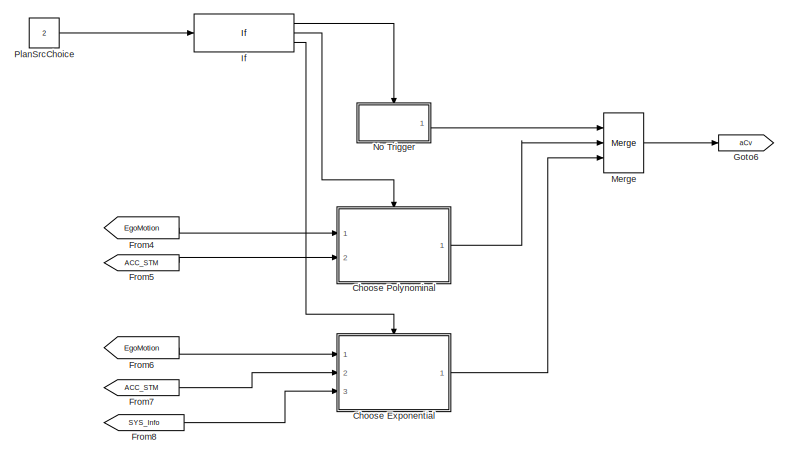
[diagram: root canvas - part 1/5, top right region]
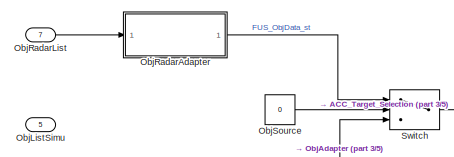
[diagram: root canvas - part 2/5, top left region]
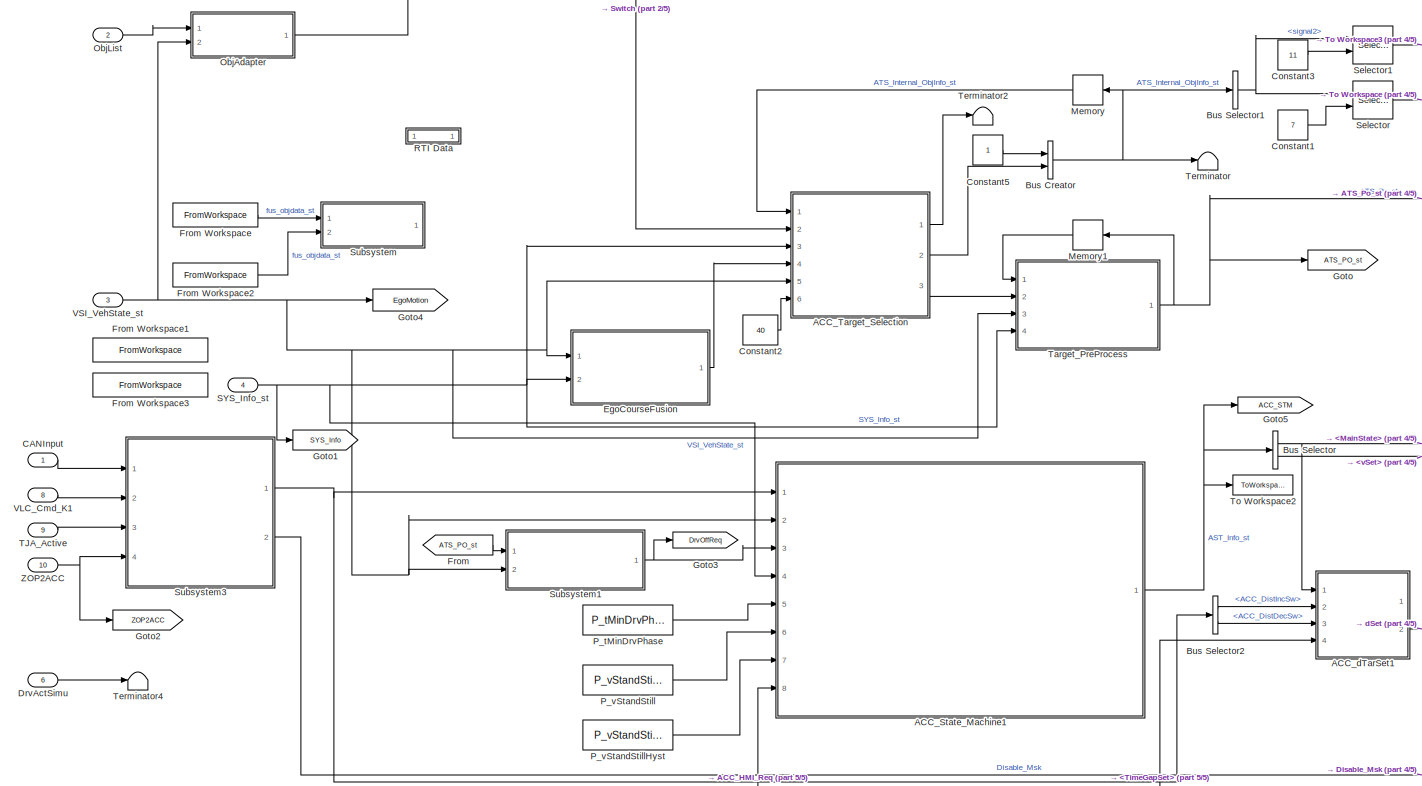
[diagram: root canvas - part 3/5, middle left region]
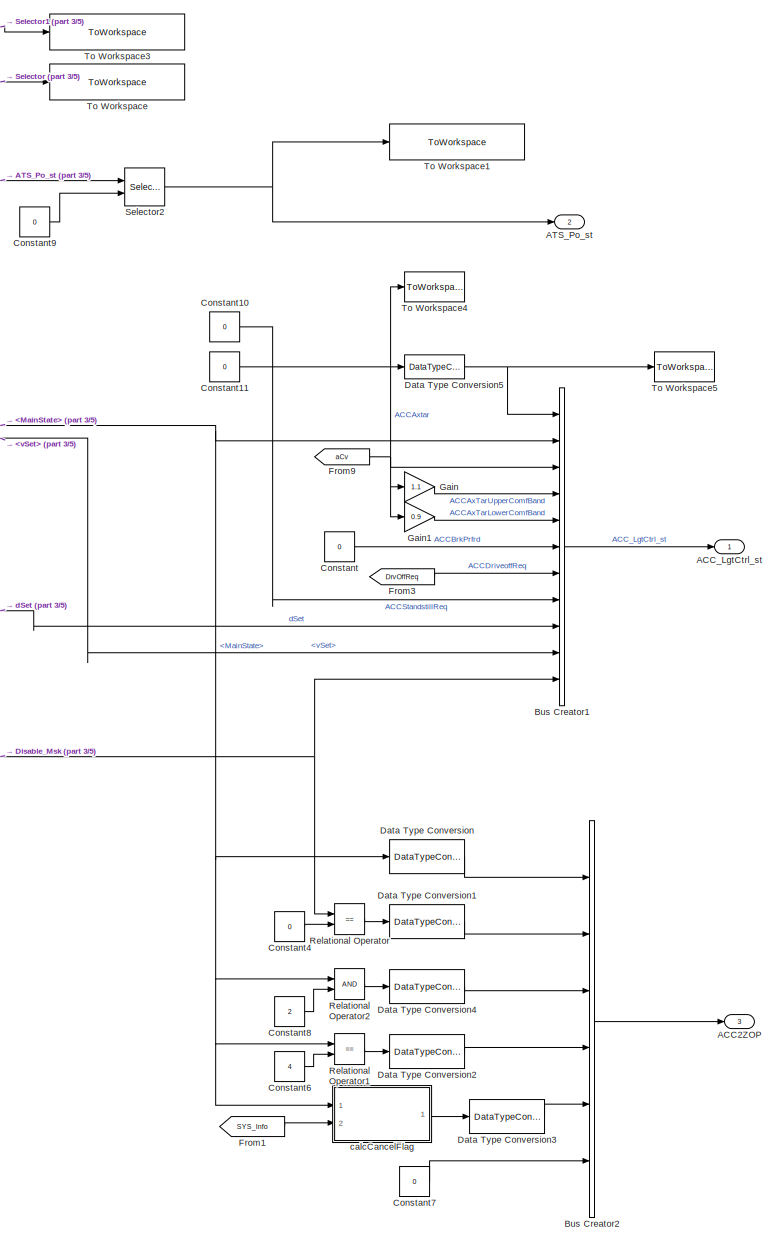
[diagram: root canvas - part 4/5, middle right region]
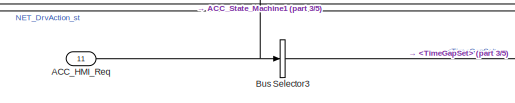
[diagram: root canvas - part 5/5, bottom center region]
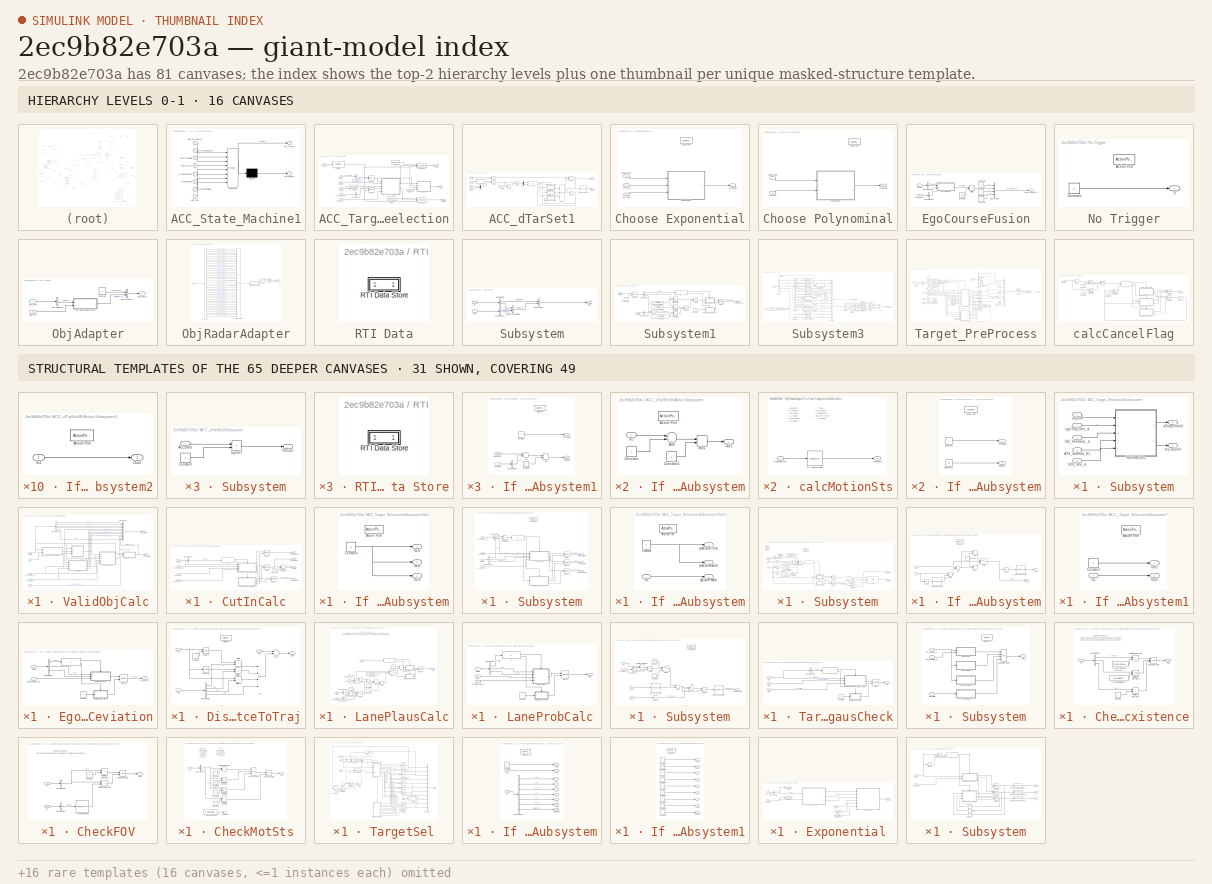
[diagram: thumbnail index - top-2 hierarchy levels (16 canvases) + 31 structural-template representatives of the remaining 65 canvases]
MODEL slx_2ec9b82e703a
KIND model
CONFIG AbsTol = auto
CONFIG EnableMultiTasking = off
CONFIG FixedStep = 0.01
CONFIG MaxStep = auto
CONFIG MinStep = auto
CONFIG PostLoadFcn = if any(exist('dsrtsu_mdlpostloadfcn', 'file') ~= 0), dsrtsu_mdlpostloadfcn('Execute', bdroot); end
CONFIG RelTol = 1e-3
CONFIG SampleTimeConstraint = Unconstrained
CONFIG Solver = FixedStepDiscrete
CONFIG SolverName = FixedStepDiscrete
CONFIG StartTime = 0.0
CONFIG StopTime = inf
BLOCK [Outport] ACC2ZOP
  BusOutputAsStruct = on
  IconDisplay = Port number
  OutDataTypeStr = Bus: ACC_Status_ST
  Port = 3
BLOCK [Inport] ACC_HMI_Req
  IconDisplay = Port number
  OutDataTypeStr = Bus: ACC_HMI_REQ
  Port = 11
BLOCK [Outport] ACC_LgtCtrl_st
  BusOutputAsStruct = on
  IconDisplay = Port number
  OutDataTypeStr = Bus: ACC_LGTCTRL_ST
BLOCK [SubSystem] ACC_State_Machine1
  ErrorFcn = Stateflow.Translate.translate
  PermitHierarchicalResolution = ExplicitOnly
  Ports = [8, 1]
  RequestExecContextInheritance = off
  SFBlockType = Chart
  TreatAsAtomicUnit = on
BLOCK [Demux] ACC_State_Machine1/ Demux 
  Outputs = 1
  Ports = [1, 1]
BLOCK [S-Function] ACC_State_Machine1/ SFunction 
  EnableBusSupport = on
  FunctionName = sf_sfun
  PortCounts = [8 2]
  Ports = [8, 2]
  SFcnIsStateOwnerBlock = off
  SFunctionDeploymentMode = off
  Tag = Stateflow S-Function AccTarSel_PLAN_CTRL 2
BLOCK [Terminator] ACC_State_Machine1/ Terminator 
BLOCK [Outport] ACC_State_Machine1/AST_Info_st
  IconDisplay = Port number
BLOCK [Inport] ACC_State_Machine1/DrvOffEnable
  IconDisplay = Port number
  Port = 3
BLOCK [Inport] ACC_State_Machine1/NET_DrvAction_st
  IconDisplay = Port number
BLOCK [Inport] ACC_State_Machine1/P_tMinDrvPhase
  IconDisplay = Port number
  Port = 5
BLOCK [Inport] ACC_State_Machine1/P_vStandStill
  IconDisplay = Port number
  Port = 6
BLOCK [Inport] ACC_State_Machine1/P_vStandStillHyst
  IconDisplay = Port number
  Port = 7
BLOCK [Inport] ACC_State_Machine1/SYS_Info_st
  IconDisplay = Port number
  Port = 4
BLOCK [Inport] ACC_State_Machine1/VSI_VehState_st
  IconDisplay = Port number
  Port = 2
BLOCK [Inport] ACC_State_Machine1/vSet_HMI
  IconDisplay = Port number
  Port = 8
BLOCK [SubSystem] ACC_Target_Selection
  Ports = [6, 3]
  RequestExecContextInheritance = off
  TreatAsAtomicUnit = on
BLOCK [Inport] ACC_Target_Selection/ATS_Internal_K1
  IconDisplay = Port number
BLOCK [Assignment] ACC_Target_Selection/Assignment
  DiagnosticForDimensions = Warning
  IndexMode = Zero-based
  IndexOptions = Index vector (port)
  Indices = 1
  OutputSizes = 1
  Ports = [3, 1]
BLOCK [Assignment] ACC_Target_Selection/Assignment1
  DiagnosticForDimensions = Warning
  IndexMode = Zero-based
  IndexOptions = Index vector (port)
  Indices = 1
  OutputSizes = 1
  Ports = [3, 1]
BLOCK [BusSelector] ACC_Target_Selection/Bus Selector
  OutputAsBus = off
  OutputSignals = signal2
  Ports = [1, 1]
BLOCK [BusSelector] ACC_Target_Selection/Bus Selector1
  OutputAsBus = off
  OutputSignals = objdata_st
  Ports = [1, 1]
BLOCK [Inport] ACC_Target_Selection/EgoTraj
  IconDisplay = Port number
  Port = 4
BLOCK [ForIterator] ACC_Target_Selection/For Iterator
  IndexMode = Zero-based
  IterationLimit = 2
  IterationSource = external
  Ports = [1, 1]
BLOCK [From] ACC_Target_Selection/From
  GotoTag = egoInfo
BLOCK [Goto] ACC_Target_Selection/Goto
  GotoTag = egoInfo
BLOCK [Outport] ACC_Target_Selection/ObjInfo
  IconDisplay = Port number
  OutDataTypeStr = Bus: ATS_OBJINFO_ST
  Port = 2
BLOCK [Inport] ACC_Target_Selection/ObjList
  IconDisplay = Port number
  Port = 2
BLOCK [Outport] ACC_Target_Selection/Out1
  IconDisplay = Port number
BLOCK [Outport] ACC_Target_Selection/POInfo
  IconDisplay = Port number
  OutDataTypeStr = Bus: ATS_PO_ST
  Port = 3
BLOCK [Inport] ACC_Target_Selection/SYS_Info_st
  IconDisplay = Port number
  Port = 3
BLOCK [Selector] ACC_Target_Selection/Selector
  IndexMode = Zero-based
  IndexOptions = Index vector (port)
  Indices = [1 3]
  InputPortWidth = 40
  OutputSizes = 1
  Ports = [2, 1]
BLOCK [Selector] ACC_Target_Selection/Selector1
  IndexMode = Zero-based
  IndexOptions = Index vector (port)
  Indices = [1 3]
  InputPortWidth = 40
  OutputSizes = 1
  Ports = [2, 1]
BLOCK [SubSystem] ACC_Target_Selection/Subsystem
  Ports = [5, 2]
  RequestExecContextInheritance = off
BLOCK [Inport] ACC_Target_Selection/Subsystem/ATS_Internal_K1
  IconDisplay = Port number
  Port = 4
BLOCK [Inport] ACC_Target_Selection/Subsystem/SYS_Info_st
  IconDisplay = Port number
  Port = 5
BLOCK [Inport] ACC_Target_Selection/Subsystem/VSI_VehState_st
  IconDisplay = Port number
  Port = 3
BLOCK [SubSystem] ACC_Target_Selection/Subsystem/ValidObjCalc
  Ports = [5, 2]
  RequestExecContextInheritance = off
  TreatAsAtomicUnit = on
BLOCK [Inport] ACC_Target_Selection/Subsystem/ValidObjCalc/ATS_Internal_K1
  IconDisplay = Port number
  Port = 4
BLOCK [BusCreator] ACC_Target_Selection/Subsystem/ValidObjCalc/Bus Creator
  DisplayOption = bar
  InheritFromInputs = on
  Inputs = 12
  NonVirtualBus = on
  OutDataTypeStr = Bus: ATS_OBJINFO_ST
  Ports = [12, 1]
BLOCK [BusSelector] ACC_Target_Selection/Subsystem/ValidObjCalc/Bus Selector
  OutputAsBus = off
  OutputSignals = dx,dy,vx,vy,ID
  Ports = [1, 5]
BLOCK [SubSystem] ACC_Target_Selection/Subsystem/ValidObjCalc/CutInCalc
  Ports = [4, 4]
  RequestExecContextInheritance = off
BLOCK [Inport] ACC_Target_Selection/Subsystem/ValidObjCalc/CutInCalc/ATS_Internal_K1
  IconDisplay = Port number
  Port = 3
BLOCK [BusSelector] ACC_Target_Selection/Subsystem/ValidObjCalc/CutInCalc/Bus Selector
  OutputAsBus = off
  OutputSignals = Valid
  Ports = [1, 1]
BLOCK [Constant] ACC_Target_Selection/Subsystem/ValidObjCalc/CutInCalc/Constant1
  OutDataTypeStr = single
  Value = 0.5
BLOCK [SubSystem] ACC_Target_Selection/Subsystem/ValidObjCalc/CutInCalc/If Action Subsystem
  Ports = [0, 3, 0, 0, 0, 0, 0, 1]
  RequestExecContextInheritance = off
  TreatAsAtomicUnit = on
BLOCK [ActionPort] ACC_Target_Selection/Subsystem/ValidObjCalc/CutInCalc/If Action Subsystem/Action Port
  ActionType = else
BLOCK [Constant] ACC_Target_Selection/Subsystem/ValidObjCalc/CutInCalc/If Action Subsystem/Constant
  OutDataTypeStr = single
  Value = 0
BLOCK [Outport] ACC_Target_Selection/Subsystem/ValidObjCalc/CutInCalc/If Action Subsystem/Out1
  IconDisplay = Port number
BLOCK [Outport] ACC_Target_Selection/Subsystem/ValidObjCalc/CutInCalc/If Action Subsystem/Out2
  IconDisplay = Port number
  Port = 2
BLOCK [Outport] ACC_Target_Selection/Subsystem/ValidObjCalc/CutInCalc/If Action Subsystem/Out3
  IconDisplay = Port number
  Port = 3
BLOCK [If] ACC_Target_Selection/Subsystem/ValidObjCalc/CutInCalc/If1
  IfExpression = u1 == 1
  Ports = [1, 2]
BLOCK [Merge] ACC_Target_Selection/Subsystem/ValidObjCalc/CutInCalc/Merge
  Ports = [2, 1]
BLOCK [Merge] ACC_Target_Selection/Subsystem/ValidObjCalc/CutInCalc/Merge1
  Ports = [2, 1]
BLOCK [Merge] ACC_Target_Selection/Subsystem/ValidObjCalc/CutInCalc/Merge2
  Ports = [2, 1]
BLOCK [RelationalOperator] ACC_Target_Selection/Subsystem/ValidObjCalc/CutInCalc/Relational Operator2
  InputSameDT = off
  Operator = >
  OutDataTypeStr = boolean
  Ports = [2, 1]
  RndMeth = Simplest
BLOCK [Inport] ACC_Target_Selection/Subsystem/ValidObjCalc/CutInCalc/SYS_Info_st
  IconDisplay = Port number
  Port = 4
BLOCK [SubSystem] ACC_Target_Selection/Subsystem/ValidObjCalc/CutInCalc/Subsystem
  Ports = [4, 3, 0, 0, 0, 0, 0, 1]
  RequestExecContextInheritance = off
BLOCK [Inport] ACC_Target_Selection/Subsystem/ValidObjCalc/CutInCalc/Subsystem/ATS_Internal_K1
  IconDisplay = Port number
  Port = 2
BLOCK [ActionPort] ACC_Target_Selection/Subsystem/ValidObjCalc/CutInCalc/Subsystem/Action Port
  ActionType = then
BLOCK [BusSelector] ACC_Target_Selection/Subsystem/ValidObjCalc/CutInCalc/Subsystem/Bus Selector
  OutputAsBus = off
  OutputSignals = ID,vy,MotionSts
  Ports = [1, 3]
BLOCK [BusSelector] ACC_Target_Selection/Subsystem/ValidObjCalc/CutInCalc/Subsystem/Bus Selector1
  OutputAsBus = off
  OutputSignals = ID,probCutInFilt
  Ports = [1, 2]
BLOCK [If] ACC_Target_Selection/Subsystem/ValidObjCalc/CutInCalc/Subsystem/If
  IfExpression = u1 == 1
  Ports = [1, 2]
BLOCK [SubSystem] ACC_Target_Selection/Subsystem/ValidObjCalc/CutInCalc/Subsystem/If Action Subsystem
  Ports = [1, 3, 0, 0, 0, 0, 0, 1]
  RequestExecContextInheritance = off
  TreatAsAtomicUnit = on
BLOCK [ActionPort] ACC_Target_Selection/Subsystem/ValidObjCalc/CutInCalc/Subsystem/If Action Subsystem/Action Port
  ActionType = else
BLOCK [Constant] ACC_Target_Selection/Subsystem/ValidObjCalc/CutInCalc/Subsystem/If Action Subsystem/Constant
  OutDataTypeStr = single
  Value = 0
BLOCK [Inport] ACC_Target_Selection/Subsystem/ValidObjCalc/CutInCalc/Subsystem/If Action Subsystem/In1
  IconDisplay = Port number
BLOCK [Outport] ACC_Target_Selection/Subsystem/ValidObjCalc/CutInCalc/Subsystem/If Action Subsystem/dyCutInPredInit
  IconDisplay = Port number
  Port = 2
BLOCK [Outport] ACC_Target_Selection/Subsystem/ValidObjCalc/CutInCalc/Subsystem/If Action Subsystem/probCutInFiltInit
  IconDisplay = Port number
BLOCK [Outport] ACC_Target_Selection/Subsystem/ValidObjCalc/CutInCalc/Subsystem/If Action Subsystem/probCutInRawInit
  IconDisplay = Port number
  Port = 3
BLOCK [Merge] ACC_Target_Selection/Subsystem/ValidObjCalc/CutInCalc/Subsystem/Merge
  Ports = [2, 1]
BLOCK [Merge] ACC_Target_Selection/Subsystem/ValidObjCalc/CutInCalc/Subsystem/Merge1
  Ports = [2, 1]
BLOCK [Merge] ACC_Target_Selection/Subsystem/ValidObjCalc/CutInCalc/Subsystem/Merge2
  Ports = [2, 1]
BLOCK [RelationalOperator] ACC_Target_Selection/Subsystem/ValidObjCalc/CutInCalc/Subsystem/Relational Operator3
  InputSameDT = off
  Operator = ==
  OutDataTypeStr = boolean
  Ports = [2, 1]
  RndMeth = Simplest
BLOCK [Inport] ACC_Target_Selection/Subsystem/ValidObjCalc/CutInCalc/Subsystem/SYS_Info_st
  IconDisplay = Port number
  Port = 4
BLOCK [SubSystem] ACC_Target_Selection/Subsystem/ValidObjCalc/CutInCalc/Subsystem/Subsystem
  Ports = [5, 3, 0, 0, 0, 0, 0, 1]
  RequestExecContextInheritance = off
BLOCK [Inport] ACC_Target_Selection/Subsystem/ValidObjCalc/CutInCalc/Subsystem/Subsystem/<vy>
  IconDisplay = Port number
  Port = 3
BLOCK [Abs] ACC_Target_Selection/Subsystem/ValidObjCalc/CutInCalc/Subsystem/Subsystem/Abs
  SaturateOnIntegerOverflow = off
BLOCK [Abs] ACC_Target_Selection/Subsystem/ValidObjCalc/CutInCalc/Subsystem/Subsystem/Abs1
  SaturateOnIntegerOverflow = off
BLOCK [ActionPort] ACC_Target_Selection/Subsystem/ValidObjCalc/CutInCalc/Subsystem/Subsystem/Action Port
  ActionType = then
BLOCK [BusSelector] ACC_Target_Selection/Subsystem/ValidObjCalc/CutInCalc/Subsystem/Subsystem/Bus Selector
  OutputAsBus = off
  OutputSignals = dT
  Ports = [1, 1]
BLOCK [Constant] ACC_Target_Selection/Subsystem/ValidObjCalc/CutInCalc/Subsystem/Subsystem/Constant1
  OutDataTypeStr = single
  Value = 2
BLOCK [Constant] ACC_Target_Selection/Subsystem/ValidObjCalc/CutInCalc/Subsystem/Subsystem/Constant2
  Value = 0
BLOCK [If] ACC_Target_Selection/Subsystem/ValidObjCalc/CutInCalc/Subsystem/Subsystem/If
  IfExpression = u1 == 1
  Ports = [1, 2]
BLOCK [SubSystem] ACC_Target_Selection/Subsystem/ValidObjCalc/CutInCalc/Subsystem/Subsystem/If Action Subsystem
  Ports = [2, 2, 0, 0, 0, 0, 0, 1]
  RequestExecContextInheritance = off
  TreatAsAtomicUnit = on
BLOCK [Lookup_n-D] ACC_Target_Selection/Subsystem/ValidObjCalc/CutInCalc/Subsystem/Subsystem/If Action Subsystem/1-D Lookup Table
  BreakpointsForDimension1 = [0.5,1.5]
  BreakpointsForDimension1FirstPoint = 10
  BreakpointsForDimension1Spacing = 12
  BreakpointsForDimension2FirstPoint = 10
  BreakpointsForDimension2Spacing = 12
  ExtrapMethod = Clip
  IndexSearchMethod = Linear search
  InternalRulePriority = Speed
  LookupTableObject = ''
  NumberOfTableDimensions = 1
  Ports = [1, 1]
  RndMeth = Simplest
  Table = [0,1.5]
BLOCK [Lookup_n-D] ACC_Target_Selection/Subsystem/ValidObjCalc/CutInCalc/Subsystem/Subsystem/If Action Subsystem/1-D Lookup Table1
  BreakpointsForDimension1 = [1,1.8]
  BreakpointsForDimension1FirstPoint = 10
  BreakpointsForDimension1Spacing = 12
  BreakpointsForDimension2FirstPoint = 10
  BreakpointsForDimension2Spacing = 12
  ExtrapMethod = Clip
  IndexSearchMethod = Linear search
  InternalRulePriority = Speed
  LookupTableObject = ''
  NumberOfTableDimensions = 1
  Ports = [1, 1]
  RndMeth = Simplest
  Table = [1,0]
BLOCK [Abs] ACC_Target_Selection/Subsystem/ValidObjCalc/CutInCalc/Subsystem/Subsystem/If Action Subsystem/Abs
  SaturateOnIntegerOverflow = off
BLOCK [Abs] ACC_Target_Selection/Subsystem/ValidObjCalc/CutInCalc/Subsystem/Subsystem/If Action Subsystem/Abs1
  SaturateOnIntegerOverflow = off
BLOCK [ActionPort] ACC_Target_Selection/Subsystem/ValidObjCalc/CutInCalc/Subsystem/Subsystem/If Action Subsystem/Action Port
  ActionType = then
BLOCK [Sum] ACC_Target_Selection/Subsystem/ValidObjCalc/CutInCalc/Subsystem/Subsystem/If Action Subsystem/Add
  InputSameDT = off
  OutDataTypeStr = Inherit: Inherit via internal rule
  Ports = [2, 1]
  SaturateOnIntegerOverflow = off
BLOCK [Constant] ACC_Target_Selection/Subsystem/ValidObjCalc/CutInCalc/Subsystem/Subsystem/If Action Subsystem/Constant
  OutDataTypeStr = single
  Value = 0
BLOCK [MinMax] ACC_Target_Selection/Subsystem/ValidObjCalc/CutInCalc/Subsystem/Subsystem/If Action Subsystem/Max
  Function = max
  InputSameDT = off
  Inputs = 2
  Ports = [2, 1]
  SaturateOnIntegerOverflow = off
BLOCK [MinMax] ACC_Target_Selection/Subsystem/ValidObjCalc/CutInCalc/Subsystem/Subsystem/If Action Subsystem/Max1
  InputSameDT = off
  Inputs = 2
  Ports = [2, 1]
  SaturateOnIntegerOverflow = off
BLOCK [Product] ACC_Target_Selection/Subsystem/ValidObjCalc/CutInCalc/Subsystem/Subsystem/If Action Subsystem/Multiply
  InputSameDT = off
  OutDataTypeStr = Inherit: Inherit via internal rule
  Ports = [2, 1]
  RndMeth = Floor
  SaturateOnIntegerOverflow = off
BLOCK [Outport] ACC_Target_Selection/Subsystem/ValidObjCalc/CutInCalc/Subsystem/Subsystem/If Action Subsystem/Out1
  IconDisplay = Port number
BLOCK [Outport] ACC_Target_Selection/Subsystem/ValidObjCalc/CutInCalc/Subsystem/Subsystem/If Action Subsystem/Out2
  IconDisplay = Port number
  Port = 2
BLOCK [Switch] ACC_Target_Selection/Subsystem/ValidObjCalc/CutInCalc/Subsystem/Subsystem/If Action Subsystem/Switch
  Criteria = u2 > Threshold
  InputSameDT = off
  SaturateOnIntegerOverflow = off
BLOCK [Inport] ACC_Target_Selection/Subsystem/ValidObjCalc/CutInCalc/Subsystem/Subsystem/If Action Subsystem/dy
  IconDisplay = Port number
BLOCK [Inport] ACC_Target_Selection/Subsystem/ValidObjCalc/CutInCalc/Subsystem/Subsystem/If Action Subsystem/vy
  IconDisplay = Port number
  Port = 2
BLOCK [SubSystem] ACC_Target_Selection/Subsystem/ValidObjCalc/CutInCalc/Subsystem/Subsystem/If Action Subsystem1
  Ports = [1, 2, 0, 0, 0, 0, 0, 1]
  RequestExecContextInheritance = off
  TreatAsAtomicUnit = on
BLOCK [ActionPort] ACC_Target_Selection/Subsystem/ValidObjCalc/CutInCalc/Subsystem/Subsystem/If Action Subsystem1/Action Port
  ActionType = else
BLOCK [Constant] ACC_Target_Selection/Subsystem/ValidObjCalc/CutInCalc/Subsystem/Subsystem/If Action Subsystem1/Constant
  OutDataTypeStr = single
  Value = 0
BLOCK [Outport] ACC_Target_Selection/Subsystem/ValidObjCalc/CutInCalc/Subsystem/Subsystem/If Action Subsystem1/Out1
  IconDisplay = Port number
BLOCK [Outport] ACC_Target_Selection/Subsystem/ValidObjCalc/CutInCalc/Subsystem/Subsystem/If Action Subsystem1/Out2
  IconDisplay = Port number
  Port = 2
BLOCK [Inport] ACC_Target_Selection/Subsystem/ValidObjCalc/CutInCalc/Subsystem/Subsystem/If Action Subsystem1/dy
  IconDisplay = Port number
BLOCK [Reference] ACC_Target_Selection/Subsystem/ValidObjCalc/CutInCalc/Subsystem/Subsystem/LPFilter  REF=LPFilter/LPFilter
  Ports = [4, 1]
  SourceBlock = LPFilter/LPFilter
  SourceProductName = CustomLib
  SourceType = SubSystem
BLOCK [Logic] ACC_Target_Selection/Subsystem/ValidObjCalc/CutInCalc/Subsystem/Subsystem/Logical Operator
  AllPortsSameDT = off
  Inputs = 5
  OutDataTypeStr = boolean
  Ports = [5, 1]
BLOCK [Merge] ACC_Target_Selection/Subsystem/ValidObjCalc/CutInCalc/Subsystem/Subsystem/Merge
  Ports = [2, 1]
BLOCK [Merge] ACC_Target_Selection/Subsystem/ValidObjCalc/CutInCalc/Subsystem/Subsystem/Merge1
  Ports = [2, 1]
BLOCK [Inport] ACC_Target_Selection/Subsystem/ValidObjCalc/CutInCalc/Subsystem/Subsystem/MotionSts
  IconDisplay = Port number
  Port = 4
BLOCK [Product] ACC_Target_Selection/Subsystem/ValidObjCalc/CutInCalc/Subsystem/Subsystem/Multiply
  InputSameDT = off
  OutDataTypeStr = Inherit: Inherit via internal rule
  Ports = [2, 1]
  RndMeth = Floor
  SaturateOnIntegerOverflow = off
BLOCK [Constant] ACC_Target_Selection/Subsystem/ValidObjCalc/CutInCalc/Subsystem/Subsystem/P_CutInEnable
  Value = P_CutInEnable
BLOCK [Constant] ACC_Target_Selection/Subsystem/ValidObjCalc/CutInCalc/Subsystem/Subsystem/P_dyCutInThres
  Value = P_dyCutInThres
BLOCK [Constant] ACC_Target_Selection/Subsystem/ValidObjCalc/CutInCalc/Subsystem/Subsystem/P_tCutInFilt
  Value = P_tCutInFilt
BLOCK [Constant] ACC_Target_Selection/Subsystem/ValidObjCalc/CutInCalc/Subsystem/Subsystem/P_vyCutInThres
  Value = P_vyCutInThres
BLOCK [RelationalOperator] ACC_Target_Selection/Subsystem/ValidObjCalc/CutInCalc/Subsystem/Subsystem/Relational Operator
  InputSameDT = off
  Operator = <=
  OutDataTypeStr = boolean
  Ports = [2, 1]
  RndMeth = Simplest
BLOCK [RelationalOperator] ACC_Target_Selection/Subsystem/ValidObjCalc/CutInCalc/Subsystem/Subsystem/Relational Operator1
  InputSameDT = off
  Operator = <
  OutDataTypeStr = boolean
  Ports = [2, 1]
  RndMeth = Simplest
BLOCK [RelationalOperator] ACC_Target_Selection/Subsystem/ValidObjCalc/CutInCalc/Subsystem/Subsystem/Relational Operator2
  InputSameDT = off
  Operator = >
  OutDataTypeStr = boolean
  Ports = [2, 1]
  RndMeth = Simplest
BLOCK [RelationalOperator] ACC_Target_Selection/Subsystem/ValidObjCalc/CutInCalc/Subsystem/Subsystem/Relational Operator3
  InputSameDT = off
  Operator = ==
  OutDataTypeStr = boolean
  Ports = [2, 1]
  RndMeth = Simplest
BLOCK [Inport] ACC_Target_Selection/Subsystem/ValidObjCalc/CutInCalc/Subsystem/Subsystem/SYS_Info_st
  IconDisplay = Port number
  Port = 5
BLOCK [Outport] ACC_Target_Selection/Subsystem/ValidObjCalc/CutInCalc/Subsystem/Subsystem/dyCutInPred
  IconDisplay = Port number
  Port = 2
BLOCK [Inport] ACC_Target_Selection/Subsystem/ValidObjCalc/CutInCalc/Subsystem/Subsystem/dyToTraj
  IconDisplay = Port number
  Port = 2
BLOCK [Outport] ACC_Target_Selection/Subsystem/ValidObjCalc/CutInCalc/Subsystem/Subsystem/probCutInFilt
  IconDisplay = Port number
BLOCK [Inport] ACC_Target_Selection/Subsystem/ValidObjCalc/CutInCalc/Subsystem/Subsystem/probCutInK1
  IconDisplay = Port number
BLOCK [Outport] ACC_Target_Selection/Subsystem/ValidObjCalc/CutInCalc/Subsystem/Subsystem/probCutInRaw
  IconDisplay = Port number
  Port = 3
BLOCK [Outport] ACC_Target_Selection/Subsystem/ValidObjCalc/CutInCalc/Subsystem/dyCutInPred
  IconDisplay = Port number
  Port = 2
BLOCK [Inport] ACC_Target_Selection/Subsystem/ValidObjCalc/CutInCalc/Subsystem/dyToTraj
  IconDisplay = Port number
  Port = 3
BLOCK [Inport] ACC_Target_Selection/Subsystem/ValidObjCalc/CutInCalc/Subsystem/objInfo
  IconDisplay = Port number
BLOCK [Outport] ACC_Target_Selection/Subsystem/ValidObjCalc/CutInCalc/Subsystem/probCutInFilt
  IconDisplay = Port number
BLOCK [Outport] ACC_Target_Selection/Subsystem/ValidObjCalc/CutInCalc/Subsystem/probCutInRaw
  IconDisplay = Port number
  Port = 3
BLOCK [Outport] ACC_Target_Selection/Subsystem/ValidObjCalc/CutInCalc/dyCutInPred
  IconDisplay = Port number
BLOCK [Inport] ACC_Target_Selection/Subsystem/ValidObjCalc/CutInCalc/dyToTraj
  IconDisplay = Port number
  Port = 2
BLOCK [Outport] ACC_Target_Selection/Subsystem/ValidObjCalc/CutInCalc/isCutIn
  IconDisplay = Port number
  Port = 3
BLOCK [Inport] ACC_Target_Selection/Subsystem/ValidObjCalc/CutInCalc/objInfo
  IconDisplay = Port number
BLOCK [Outport] ACC_Target_Selection/Subsystem/ValidObjCalc/CutInCalc/probCutInFilt
  IconDisplay = Port number
  Port = 2
BLOCK [Outport] ACC_Target_Selection/Subsystem/ValidObjCalc/CutInCalc/probCutInRaw
  IconDisplay = Port number
  Port = 4
BLOCK [SubSystem] ACC_Target_Selection/Subsystem/ValidObjCalc/EgoCourseDeviation
  Ports = [2, 1]
  RequestExecContextInheritance = off
BLOCK [BusSelector] ACC_Target_Selection/Subsystem/ValidObjCalc/EgoCourseDeviation/Bus Selector
  OutputAsBus = off
  OutputSignals = Valid,dx,dy
  Ports = [1, 3]
BLOCK [Constant] ACC_Target_Selection/Subsystem/ValidObjCalc/EgoCourseDeviation/Constant
  OutDataTypeStr = single
  Value = 0
BLOCK [SubSystem] ACC_Target_Selection/Subsystem/ValidObjCalc/EgoCourseDeviation/DistanceToTraj
  Ports = [3, 1, 0, 0, 0, 0, 0, 1]
  RequestExecContextInheritance = off
BLOCK [ActionPort] ACC_Target_Selection/Subsystem/ValidObjCalc/EgoCourseDeviation/DistanceToTraj/Action Port
  ActionType = then
BLOCK [Sum] ACC_Target_Selection/Subsystem/ValidObjCalc/EgoCourseDeviation/DistanceToTraj/Add
  InputSameDT = off
  Inputs = ++++
  OutDataTypeStr = Inherit: Inherit via internal rule
  Ports = [4, 1]
  SaturateOnIntegerOverflow = off
BLOCK [Sum] ACC_Target_Selection/Subsystem/ValidObjCalc/EgoCourseDeviation/DistanceToTraj/Add1
  InputSameDT = off
  Inputs = +-
  OutDataTypeStr = Inherit: Inherit via internal rule
  Ports = [2, 1]
  SaturateOnIntegerOverflow = off
BLOCK [BusSelector] ACC_Target_Selection/Subsystem/ValidObjCalc/EgoCourseDeviation/DistanceToTraj/Bus Selector
  OutputAsBus = off
  OutputSignals = a,b,c,d
  Ports = [1, 4]
BLOCK [Constant] ACC_Target_Selection/Subsystem/ValidObjCalc/EgoCourseDeviation/DistanceToTraj/Constant
  OutDataTypeStr = single
  Value = 3
BLOCK [Inport] ACC_Target_Selection/Subsystem/ValidObjCalc/EgoCourseDeviation/DistanceToTraj/In1
  IconDisplay = Port number
BLOCK [Inport] ACC_Target_Selection/Subsystem/ValidObjCalc/EgoCourseDeviation/DistanceToTraj/In2
  IconDisplay = Port number
  Port = 2
BLOCK [Inport] ACC_Target_Selection/Subsystem/ValidObjCalc/EgoCourseDeviation/DistanceToTraj/In3
  IconDisplay = Port number
  Port = 3
BLOCK [Product] ACC_Target_Selection/Subsystem/ValidObjCalc/EgoCourseDeviation/DistanceToTraj/Multiply
  InputSameDT = off
  OutDataTypeStr = Inherit: Inherit via internal rule
  Ports = [2, 1]
  RndMeth = Floor
  SaturateOnIntegerOverflow = off
BLOCK [Product] ACC_Target_Selection/Subsystem/ValidObjCalc/EgoCourseDeviation/DistanceToTraj/Multiply1
  InputSameDT = off
  OutDataTypeStr = Inherit: Inherit via internal rule
  Ports = [2, 1]
  RndMeth = Floor
  SaturateOnIntegerOverflow = off
BLOCK [Product] ACC_Target_Selection/Subsystem/ValidObjCalc/EgoCourseDeviation/DistanceToTraj/Multiply2
  InputSameDT = off
  OutDataTypeStr = Inherit: Inherit via internal rule
  Ports = [2, 1]
  RndMeth = Floor
  SaturateOnIntegerOverflow = off
BLOCK [Outport] ACC_Target_Selection/Subsystem/ValidObjCalc/EgoCourseDeviation/DistanceToTraj/Out1
  IconDisplay = Port number
BLOCK [Math] ACC_Target_Selection/Subsystem/ValidObjCalc/EgoCourseDeviation/DistanceToTraj/Square
  Operator = pow
  Ports = [2, 1]
BLOCK [Math] ACC_Target_Selection/Subsystem/ValidObjCalc/EgoCourseDeviation/DistanceToTraj/Square1
  Operator = square
  Ports = [1, 1]
BLOCK [If] ACC_Target_Selection/Subsystem/ValidObjCalc/EgoCourseDeviation/If
  IfExpression = u1 == 1
  Ports = [1, 2]
BLOCK [SubSystem] ACC_Target_Selection/Subsystem/ValidObjCalc/EgoCourseDeviation/If Action Subsystem
  Ports = [1, 1, 0, 0, 0, 0, 0, 1]
  RequestExecContextInheritance = off
  TreatAsAtomicUnit = on
BLOCK [ActionPort] ACC_Target_Selection/Subsystem/ValidObjCalc/EgoCourseDeviation/If Action Subsystem/Action Port
  ActionType = else
BLOCK [Inport] ACC_Target_Selection/Subsystem/ValidObjCalc/EgoCourseDeviation/If Action Subsystem/In1
  IconDisplay = Port number
BLOCK [Outport] ACC_Target_Selection/Subsystem/ValidObjCalc/EgoCourseDeviation/If Action Subsystem/Out1
  IconDisplay = Port number
BLOCK [Merge] ACC_Target_Selection/Subsystem/ValidObjCalc/EgoCourseDeviation/Merge
  Ports = [2, 1]
BLOCK [Outport] ACC_Target_Selection/Subsystem/ValidObjCalc/EgoCourseDeviation/dyToTraj
  IconDisplay = Port number
BLOCK [Inport] ACC_Target_Selection/Subsystem/ValidObjCalc/EgoCourseDeviation/egoTrajLane_st
  IconDisplay = Port number
  Port = 2
BLOCK [Inport] ACC_Target_Selection/Subsystem/ValidObjCalc/EgoCourseDeviation/objInfo
  IconDisplay = Port number
BLOCK [Inport] ACC_Target_Selection/Subsystem/ValidObjCalc/In2
  IconDisplay = Port number
  Port = 2
BLOCK [Inport] ACC_Target_Selection/Subsystem/ValidObjCalc/In3
  IconDisplay = Port number
  Port = 3
BLOCK [SubSystem] ACC_Target_Selection/Subsystem/ValidObjCalc/LanePlausCalc
  Ports = [5, 1]
  RequestExecContextInheritance = off
BLOCK [Inport] ACC_Target_Selection/Subsystem/ValidObjCalc/LanePlausCalc/ATS_Internal_K1
  IconDisplay = Port number
  Port = 4
BLOCK [Sum] ACC_Target_Selection/Subsystem/ValidObjCalc/LanePlausCalc/Add
  InputSameDT = off
  OutDataTypeStr = Inherit: Inherit via internal rule
  Ports = [2, 1]
  SaturateOnIntegerOverflow = off
BLOCK [BusSelector] ACC_Target_Selection/Subsystem/ValidObjCalc/LanePlausCalc/Bus Selector
  OutputAsBus = off
  OutputSignals = ID,plausEgoLane
  Ports = [1, 2]
BLOCK [BusSelector] ACC_Target_Selection/Subsystem/ValidObjCalc/LanePlausCalc/Bus Selector1
  OutputAsBus = off
  OutputSignals = dT
  Ports = [1, 1]
BLOCK [BusSelector] ACC_Target_Selection/Subsystem/ValidObjCalc/LanePlausCalc/Bus Selector2
  OutputAsBus = off
  OutputSignals = ID
  Ports = [1, 1]
BLOCK [Constant] ACC_Target_Selection/Subsystem/ValidObjCalc/LanePlausCalc/Constant
  OutDataTypeStr = single
  Value = 0.6
BLOCK [Constant] ACC_Target_Selection/Subsystem/ValidObjCalc/LanePlausCalc/Constant1
  OutDataTypeStr = single
BLOCK [Constant] ACC_Target_Selection/Subsystem/ValidObjCalc/LanePlausCalc/Constant2
  OutDataTypeStr = single
  Value = 0
BLOCK [Constant] ACC_Target_Selection/Subsystem/ValidObjCalc/LanePlausCalc/Constant3
  OutDataTypeStr = single
  Value = 0
BLOCK [Constant] ACC_Target_Selection/Subsystem/ValidObjCalc/LanePlausCalc/Constant4
  OutDataTypeStr = boolean
  Value = P_PlausIntegDisable
BLOCK [If] ACC_Target_Selection/Subsystem/ValidObjCalc/LanePlausCalc/If
  IfExpression = u1 == 1
  Ports = [1, 2]
BLOCK [SubSystem] ACC_Target_Selection/Subsystem/ValidObjCalc/LanePlausCalc/If Action Subsystem
  Ports = [1, 1, 0, 0, 0, 0, 0, 1]
  RequestExecContextInheritance = off
  TreatAsAtomicUnit = on
BLOCK [ActionPort] ACC_Target_Selection/Subsystem/ValidObjCalc/LanePlausCalc/If Action Subsystem/Action Port
  ActionType = then
BLOCK [Inport] ACC_Target_Selection/Subsystem/ValidObjCalc/LanePlausCalc/If Action Subsystem/In1
  IconDisplay = Port number
BLOCK [Outport] ACC_Target_Selection/Subsystem/ValidObjCalc/LanePlausCalc/If Action Subsystem/Out1
  IconDisplay = Port number
BLOCK [SubSystem] ACC_Target_Selection/Subsystem/ValidObjCalc/LanePlausCalc/If Action Subsystem1
  Ports = [1, 1, 0, 0, 0, 0, 0, 1]
  RequestExecContextInheritance = off
  TreatAsAtomicUnit = on
BLOCK [ActionPort] ACC_Target_Selection/Subsystem/ValidObjCalc/LanePlausCalc/If Action Subsystem1/Action Port
  ActionType = else
BLOCK [Inport] ACC_Target_Selection/Subsystem/ValidObjCalc/LanePlausCalc/If Action Subsystem1/In1
  IconDisplay = Port number
BLOCK [Outport] ACC_Target_Selection/Subsystem/ValidObjCalc/LanePlausCalc/If Action Subsystem1/Out1
  IconDisplay = Port number
BLOCK [MinMax] ACC_Target_Selection/Subsystem/ValidObjCalc/LanePlausCalc/Max
  Function = max
  InputSameDT = off
  Inputs = 2
  Ports = [2, 1]
  SaturateOnIntegerOverflow = off
BLOCK [Merge] ACC_Target_Selection/Subsystem/ValidObjCalc/LanePlausCalc/Merge
  Ports = [2, 1]
BLOCK [MinMax] ACC_Target_Selection/Subsystem/ValidObjCalc/LanePlausCalc/Min
  InputSameDT = off
  Inputs = 2
  Ports = [2, 1]
  SaturateOnIntegerOverflow = off
BLOCK [MinMax] ACC_Target_Selection/Subsystem/ValidObjCalc/LanePlausCalc/Min1
  Function = max
  InputSameDT = off
  Inputs = 2
  Ports = [2, 1]
  SaturateOnIntegerOverflow = off
BLOCK [Product] ACC_Target_Selection/Subsystem/ValidObjCalc/LanePlausCalc/Multiply
  InputSameDT = off
  OutDataTypeStr = Inherit: Inherit via internal rule
  Ports = [2, 1]
  RndMeth = Floor
  SaturateOnIntegerOverflow = off
BLOCK [Outport] ACC_Target_Selection/Subsystem/ValidObjCalc/LanePlausCalc/Out1
  IconDisplay = Port number
BLOCK [RelationalOperator] ACC_Target_Selection/Subsystem/ValidObjCalc/LanePlausCalc/Relational Operator
  InputSameDT = off
  Operator = ~=
  OutDataTypeStr = boolean
  Ports = [2, 1]
  RndMeth = Simplest
BLOCK [Inport] ACC_Target_Selection/Subsystem/ValidObjCalc/LanePlausCalc/SYS_Info_st
  IconDisplay = Port number
  Port = 5
BLOCK [Switch] ACC_Target_Selection/Subsystem/ValidObjCalc/LanePlausCalc/Switch
  Criteria = u2 > Threshold
  InputSameDT = off
  SaturateOnIntegerOverflow = off
BLOCK [Switch] ACC_Target_Selection/Subsystem/ValidObjCalc/LanePlausCalc/Switch1
  Criteria = u2 > Threshold
  InputSameDT = off
  SaturateOnIntegerOverflow = off
BLOCK [Inport] ACC_Target_Selection/Subsystem/ValidObjCalc/LanePlausCalc/isCutIn
  IconDisplay = Port number
  Port = 2
BLOCK [Inport] ACC_Target_Selection/Subsystem/ValidObjCalc/LanePlausCalc/objInfo
  IconDisplay = Port number
  Port = 3
BLOCK [Inport] ACC_Target_Selection/Subsystem/ValidObjCalc/LanePlausCalc/probEgoLane
  IconDisplay = Port number
BLOCK [SubSystem] ACC_Target_Selection/Subsystem/ValidObjCalc/LaneProbCalc
  Ports = [3, 1]
  RequestExecContextInheritance = off
BLOCK [Inport] ACC_Target_Selection/Subsystem/ValidObjCalc/LaneProbCalc/ATS_Internal_K1
  IconDisplay = Port number
  Port = 3
BLOCK [BusSelector] ACC_Target_Selection/Subsystem/ValidObjCalc/LaneProbCalc/Bus Selector
  OutputAsBus = off
  OutputSignals = Valid,dx,ID
  Ports = [1, 3]
BLOCK [Constant] ACC_Target_Selection/Subsystem/ValidObjCalc/LaneProbCalc/Constant
  OutDataTypeStr = single
  Value = 0
BLOCK [If] ACC_Target_Selection/Subsystem/ValidObjCalc/LaneProbCalc/If
  IfExpression = u1 == 1
  Ports = [1, 2]
BLOCK [SubSystem] ACC_Target_Selection/Subsystem/ValidObjCalc/LaneProbCalc/If Action Subsystem
  Ports = [1, 1, 0, 0, 0, 0, 0, 1]
  RequestExecContextInheritance = off
  TreatAsAtomicUnit = on
BLOCK [ActionPort] ACC_Target_Selection/Subsystem/ValidObjCalc/LaneProbCalc/If Action Subsystem/Action Port
  ActionType = else
BLOCK [Inport] ACC_Target_Selection/Subsystem/ValidObjCalc/LaneProbCalc/If Action Subsystem/In1
  IconDisplay = Port number
BLOCK [Outport] ACC_Target_Selection/Subsystem/ValidObjCalc/LaneProbCalc/If Action Subsystem/Out1
  IconDisplay = Port number
BLOCK [Inport] ACC_Target_Selection/Subsystem/ValidObjCalc/LaneProbCalc/In2
  IconDisplay = Port number
  Port = 2
BLOCK [Merge] ACC_Target_Selection/Subsystem/ValidObjCalc/LaneProbCalc/Merge
  Ports = [2, 1]
BLOCK [Outport] ACC_Target_Selection/Subsystem/ValidObjCalc/LaneProbCalc/Out1
  IconDisplay = Port number
BLOCK [SubSystem] ACC_Target_Selection/Subsystem/ValidObjCalc/LaneProbCalc/Subsystem
  Ports = [4, 1, 0, 0, 0, 0, 0, 1]
  RequestExecContextInheritance = off
BLOCK [Lookup_n-D] ACC_Target_Selection/Subsystem/ValidObjCalc/LaneProbCalc/Subsystem/1-D Lookup Table
  BreakpointsForDimension1 = [0,20,40]
  BreakpointsForDimension1FirstPoint = 10
  BreakpointsForDimension1Spacing = 12
  BreakpointsForDimension2FirstPoint = 10
  BreakpointsForDimension2Spacing = 12
  ExtrapMethod = Clip
  IndexSearchMethod = Linear search
  InternalRulePriority = Speed
  LookupTableObject = ''
  NumberOfTableDimensions = 1
  Ports = [1, 1]
  RndMeth = Simplest
  Table = [1.6,1.6,1.8]
BLOCK [Lookup_n-D] ACC_Target_Selection/Subsystem/ValidObjCalc/LaneProbCalc/Subsystem/1-D Lookup Table1
  BreakpointsForDimension1 = [-0.2,0.2]
  BreakpointsForDimension1FirstPoint = 10
  BreakpointsForDimension1Spacing = 12
  BreakpointsForDimension2FirstPoint = 10
  BreakpointsForDimension2Spacing = 12
  ExtrapMethod = Clip
  IndexSearchMethod = Linear search
  InternalRulePriority = Speed
  LookupTableObject = ''
  NumberOfTableDimensions = 1
  Ports = [1, 1]
  RndMeth = Simplest
  Table = [-1,1.2]
BLOCK [Inport] ACC_Target_Selection/Subsystem/ValidObjCalc/LaneProbCalc/Subsystem/<dx>
  IconDisplay = Port number
BLOCK [Logic] ACC_Target_Selection/Subsystem/ValidObjCalc/LaneProbCalc/Subsystem/AND
  AllPortsSameDT = off
  OutDataTypeStr = boolean
  Ports = [2, 1]
BLOCK [Inport] ACC_Target_Selection/Subsystem/ValidObjCalc/LaneProbCalc/Subsystem/ATS_Internal_K1
  IconDisplay = Port number
  Port = 4
BLOCK [Abs] ACC_Target_Selection/Subsystem/ValidObjCalc/LaneProbCalc/Subsystem/Abs
  SaturateOnIntegerOverflow = off
BLOCK [ActionPort] ACC_Target_Selection/Subsystem/ValidObjCalc/LaneProbCalc/Subsystem/Action Port
  ActionType = then
BLOCK [Sum] ACC_Target_Selection/Subsystem/ValidObjCalc/LaneProbCalc/Subsystem/Add
  InputSameDT = off
  Inputs = +-
  OutDataTypeStr = Inherit: Inherit via internal rule
  Ports = [2, 1]
  SaturateOnIntegerOverflow = off
BLOCK [Sum] ACC_Target_Selection/Subsystem/ValidObjCalc/LaneProbCalc/Subsystem/Add1
  InputSameDT = off
  OutDataTypeStr = Inherit: Inherit via internal rule
  Ports = [2, 1]
  SaturateOnIntegerOverflow = off
BLOCK [BusSelector] ACC_Target_Selection/Subsystem/ValidObjCalc/LaneProbCalc/Subsystem/Bus Selector
  OutputAsBus = off
  OutputSignals = ID,ValidEgoLane
  Ports = [1, 2]
BLOCK [Constant] ACC_Target_Selection/Subsystem/ValidObjCalc/LaneProbCalc/Subsystem/Constant
  OutDataTypeStr = single
  Value = 0.15
BLOCK [Constant] ACC_Target_Selection/Subsystem/ValidObjCalc/LaneProbCalc/Subsystem/Constant1
  OutDataTypeStr = single
  Value = 0
BLOCK [Product] ACC_Target_Selection/Subsystem/ValidObjCalc/LaneProbCalc/Subsystem/Divide
  InputSameDT = off
  Inputs = */
  OutDataTypeStr = Inherit: Inherit via internal rule
  Ports = [2, 1]
  RndMeth = Floor
  SaturateOnIntegerOverflow = off
BLOCK [Inport] ACC_Target_Selection/Subsystem/ValidObjCalc/LaneProbCalc/Subsystem/ID
  IconDisplay = Port number
  Port = 2
BLOCK [Inport] ACC_Target_Selection/Subsystem/ValidObjCalc/LaneProbCalc/Subsystem/In2
  IconDisplay = Port number
  Port = 3
BLOCK [RelationalOperator] ACC_Target_Selection/Subsystem/ValidObjCalc/LaneProbCalc/Subsystem/Relational Operator
  InputSameDT = off
  Operator = ==
  OutDataTypeStr = boolean
  Ports = [2, 1]
  RndMeth = Simplest
BLOCK [Switch] ACC_Target_Selection/Subsystem/ValidObjCalc/LaneProbCalc/Subsystem/Switch
  Criteria = u2 > Threshold
  InputSameDT = off
  SaturateOnIntegerOverflow = off
BLOCK [Outport] ACC_Target_Selection/Subsystem/ValidObjCalc/LaneProbCalc/Subsystem/probEgoTraj
  IconDisplay = Port number
BLOCK [Inport] ACC_Target_Selection/Subsystem/ValidObjCalc/LaneProbCalc/objInfo
  IconDisplay = Port number
BLOCK [Inport] ACC_Target_Selection/Subsystem/ValidObjCalc/SYS_Info_st
  IconDisplay = Port number
  Port = 5
BLOCK [SubSystem] ACC_Target_Selection/Subsystem/ValidObjCalc/TargetPlausCheck
  Ports = [3, 1]
  RequestExecContextInheritance = off
BLOCK [BusSelector] ACC_Target_Selection/Subsystem/ValidObjCalc/TargetPlausCheck/Bus Selector
  OutputAsBus = off
  OutputSignals = Valid
  Ports = [1, 1]
BLOCK [Constant] ACC_Target_Selection/Subsystem/ValidObjCalc/TargetPlausCheck/Constant
  OutDataTypeStr = boolean
  Value = 0
BLOCK [If] ACC_Target_Selection/Subsystem/ValidObjCalc/TargetPlausCheck/If
  IfExpression = u1 == 1
  Ports = [1, 2]
BLOCK [SubSystem] ACC_Target_Selection/Subsystem/ValidObjCalc/TargetPlausCheck/If Action Subsystem
  Ports = [1, 1, 0, 0, 0, 0, 0, 1]
  RequestExecContextInheritance = off
  TreatAsAtomicUnit = on
BLOCK [ActionPort] ACC_Target_Selection/Subsystem/ValidObjCalc/TargetPlausCheck/If Action Subsystem/Action Port
  ActionType = else
BLOCK [Inport] ACC_Target_Selection/Subsystem/ValidObjCalc/TargetPlausCheck/If Action Subsystem/In1
  IconDisplay = Port number
BLOCK [Outport] ACC_Target_Selection/Subsystem/ValidObjCalc/TargetPlausCheck/If Action Subsystem/Out1
  IconDisplay = Port number
BLOCK [Inport] ACC_Target_Selection/Subsystem/ValidObjCalc/TargetPlausCheck/In1
  IconDisplay = Port number
BLOCK [Inport] ACC_Target_Selection/Subsystem/ValidObjCalc/TargetPlausCheck/In2
  IconDisplay = Port number
  Port = 2
BLOCK [Inport] ACC_Target_Selection/Subsystem/ValidObjCalc/TargetPlausCheck/In3
  IconDisplay = Port number
  Port = 3
BLOCK [Merge] ACC_Target_Selection/Subsystem/ValidObjCalc/TargetPlausCheck/Merge
  Ports = [2, 1]
BLOCK [Outport] ACC_Target_Selection/Subsystem/ValidObjCalc/TargetPlausCheck/Out1
  IconDisplay = Port number
BLOCK [SubSystem] ACC_Target_Selection/Subsystem/ValidObjCalc/TargetPlausCheck/Subsystem
  Ports = [3, 1, 0, 0, 0, 0, 0, 1]
  RequestExecContextInheritance = off
BLOCK [ActionPort] ACC_Target_Selection/Subsystem/ValidObjCalc/TargetPlausCheck/Subsystem/Action Port
  ActionType = then
BLOCK [SubSystem] ACC_Target_Selection/Subsystem/ValidObjCalc/TargetPlausCheck/Subsystem/CheckExistence
  Ports = [1, 1]
  RequestExecContextInheritance = off
BLOCK [BusSelector] ACC_Target_Selection/Subsystem/ValidObjCalc/TargetPlausCheck/Subsystem/CheckExistence/Bus Selector
  OutputAsBus = off
  OutputSignals = dvarY,probExist,dx
  Ports = [1, 3]
BLOCK [Constant] ACC_Target_Selection/Subsystem/ValidObjCalc/TargetPlausCheck/Subsystem/CheckExistence/Constant
  OutDataTypeStr = single
  Value = 0
BLOCK [Inport] ACC_Target_Selection/Subsystem/ValidObjCalc/TargetPlausCheck/Subsystem/CheckExistence/In1
  IconDisplay = Port number
BLOCK [Logic] ACC_Target_Selection/Subsystem/ValidObjCalc/TargetPlausCheck/Subsystem/CheckExistence/Logical Operator
  AllPortsSameDT = off
  Inputs = 3
  OutDataTypeStr = boolean
  Ports = [3, 1]
BLOCK [Outport] ACC_Target_Selection/Subsystem/ValidObjCalc/TargetPlausCheck/Subsystem/CheckExistence/Out1
  IconDisplay = Port number
BLOCK [Constant] ACC_Target_Selection/Subsystem/ValidObjCalc/TargetPlausCheck/Subsystem/CheckExistence/P_dvarYMax4PO
  OutDataTypeStr = single
  Value = P_dvarYMax4PO
BLOCK [Constant] ACC_Target_Selection/Subsystem/ValidObjCalc/TargetPlausCheck/Subsystem/CheckExistence/P_probExistMin4PO
  OutDataTypeStr = single
  Value = P_probExistMin4PO
BLOCK [RelationalOperator] ACC_Target_Selection/Subsystem/ValidObjCalc/TargetPlausCheck/Subsystem/CheckExistence/Relational Operator
  InputSameDT = off
  Operator = <=
  OutDataTypeStr = boolean
  Ports = [2, 1]
  RndMeth = Simplest
BLOCK [RelationalOperator] ACC_Target_Selection/Subsystem/ValidObjCalc/TargetPlausCheck/Subsystem/CheckExistence/Relational Operator1
  InputSameDT = off
  OutDataTypeStr = boolean
  Ports = [2, 1]
  RndMeth = Simplest
BLOCK [RelationalOperator] ACC_Target_Selection/Subsystem/ValidObjCalc/TargetPlausCheck/Subsystem/CheckExistence/Relational Operator2
  InputSameDT = off
  Operator = >
  OutDataTypeStr = boolean
  Ports = [2, 1]
  RndMeth = Simplest
BLOCK [SubSystem] ACC_Target_Selection/Subsystem/ValidObjCalc/TargetPlausCheck/Subsystem/CheckFOV
  Ports = [2, 1]
  RequestExecContextInheritance = off
BLOCK [Lookup_n-D] ACC_Target_Selection/Subsystem/ValidObjCalc/TargetPlausCheck/Subsystem/CheckFOV/1-D Lookup Table
  BreakpointsForDimension1 = [11.11,22.22]
  BreakpointsForDimension1FirstPoint = 10
  BreakpointsForDimension1Spacing = 12
  BreakpointsForDimension2FirstPoint = 10
  BreakpointsForDimension2Spacing = 12
  ExtrapMethod = Clip
  IndexSearchMethod = Linear search
  InternalRulePriority = Speed
  LookupTableObject = ''
  NumberOfTableDimensions = 1
  Ports = [1, 1]
  RndMeth = Simplest
  Table = [80,160]
BLOCK [BusSelector] ACC_Target_Selection/Subsystem/ValidObjCalc/TargetPlausCheck/Subsystem/CheckFOV/Bus Selector
  OutputAsBus = off
  OutputSignals = dx
  Ports = [1, 1]
BLOCK [BusSelector] ACC_Target_Selection/Subsystem/ValidObjCalc/TargetPlausCheck/Subsystem/CheckFOV/Bus Selector1
  OutputAsBus = off
  OutputSignals = vRef
  Ports = [1, 1]
BLOCK [Constant] ACC_Target_Selection/Subsystem/ValidObjCalc/TargetPlausCheck/Subsystem/CheckFOV/Constant
  OutDataTypeStr = single
  Value = 0
BLOCK [Inport] ACC_Target_Selection/Subsystem/ValidObjCalc/TargetPlausCheck/Subsystem/CheckFOV/In1
  IconDisplay = Port number
BLOCK [Inport] ACC_Target_Selection/Subsystem/ValidObjCalc/TargetPlausCheck/Subsystem/CheckFOV/In2
  IconDisplay = Port number
  Port = 2
BLOCK [Logic] ACC_Target_Selection/Subsystem/ValidObjCalc/TargetPlausCheck/Subsystem/CheckFOV/Logical Operator
  AllPortsSameDT = off
  OutDataTypeStr = boolean
  Ports = [2, 1]
BLOCK [Outport] ACC_Target_Selection/Subsystem/ValidObjCalc/TargetPlausCheck/Subsystem/CheckFOV/Out1
  IconDisplay = Port number
BLOCK [RelationalOperator] ACC_Target_Selection/Subsystem/ValidObjCalc/TargetPlausCheck/Subsystem/CheckFOV/Relational Operator
  InputSameDT = off
  Operator = <=
  OutDataTypeStr = boolean
  Ports = [2, 1]
  RndMeth = Simplest
BLOCK [RelationalOperator] ACC_Target_Selection/Subsystem/ValidObjCalc/TargetPlausCheck/Subsystem/CheckFOV/Relational Operator1
  InputSameDT = off
  Operator = >
  OutDataTypeStr = boolean
  Ports = [2, 1]
  RndMeth = Simplest
BLOCK [SubSystem] ACC_Target_Selection/Subsystem/ValidObjCalc/TargetPlausCheck/Subsystem/CheckMotSts
  Ports = [1, 1]
  RequestExecContextInheritance = off
BLOCK [BusSelector] ACC_Target_Selection/Subsystem/ValidObjCalc/TargetPlausCheck/Subsystem/CheckMotSts/Bus Selector
  OutputAsBus = off
  OutputSignals = MotionSts,Type
  Ports = [1, 2]
BLOCK [Constant] ACC_Target_Selection/Subsystem/ValidObjCalc/TargetPlausCheck/Subsystem/CheckMotSts/Constant
  OutDataTypeStr = single
  Value = 2
BLOCK [Constant] ACC_Target_Selection/Subsystem/ValidObjCalc/TargetPlausCheck/Subsystem/CheckMotSts/Constant1
  OutDataTypeStr = single
  Value = 4
BLOCK [Constant] ACC_Target_Selection/Subsystem/ValidObjCalc/TargetPlausCheck/Subsystem/CheckMotSts/Constant2
  OutDataTypeStr = single
BLOCK [Constant] ACC_Target_Selection/Subsystem/ValidObjCalc/TargetPlausCheck/Subsystem/CheckMotSts/Constant3
  OutDataTypeStr = single
  Value = 0
BLOCK [Inport] ACC_Target_Selection/Subsystem/ValidObjCalc/TargetPlausCheck/Subsystem/CheckMotSts/In1
  IconDisplay = Port number
BLOCK [Logic] ACC_Target_Selection/Subsystem/ValidObjCalc/TargetPlausCheck/Subsystem/CheckMotSts/Logical Operator1
  AllPortsSameDT = off
  Inputs = 3
  Operator = OR
  OutDataTypeStr = boolean
  Ports = [3, 1]
BLOCK [Logic] ACC_Target_Selection/Subsystem/ValidObjCalc/TargetPlausCheck/Subsystem/CheckMotSts/Logical Operator2
  AllPortsSameDT = off
  OutDataTypeStr = boolean
  Ports = [2, 1]
BLOCK [Outport] ACC_Target_Selection/Subsystem/ValidObjCalc/TargetPlausCheck/Subsystem/CheckMotSts/Out1
  IconDisplay = Port number
BLOCK [Constant] ACC_Target_Selection/Subsystem/ValidObjCalc/TargetPlausCheck/Subsystem/CheckMotSts/P_StandObjEnable
  OutDataTypeStr = boolean
  Value = P_StandObjEnable
BLOCK [RelationalOperator] ACC_Target_Selection/Subsystem/ValidObjCalc/TargetPlausCheck/Subsystem/CheckMotSts/Relational Operator
  InputSameDT = off
  Operator = ==
  OutDataTypeStr = boolean
  Ports = [2, 1]
  RndMeth = Simplest
BLOCK [RelationalOperator] ACC_Target_Selection/Subsystem/ValidObjCalc/TargetPlausCheck/Subsystem/CheckMotSts/Relational Operator1
  InputSameDT = off
  Operator = ==
  OutDataTypeStr = boolean
  Ports = [2, 1]
  RndMeth = Simplest
BLOCK [RelationalOperator] ACC_Target_Selection/Subsystem/ValidObjCalc/TargetPlausCheck/Subsystem/CheckMotSts/Relational Operator2
  InputSameDT = off
  Operator = ==
  OutDataTypeStr = boolean
  Ports = [2, 1]
  RndMeth = Simplest
BLOCK [RelationalOperator] ACC_Target_Selection/Subsystem/ValidObjCalc/TargetPlausCheck/Subsystem/CheckMotSts/Relational Operator3
  InputSameDT = off
  Operator = ~=
  OutDataTypeStr = boolean
  Ports = [2, 1]
  RndMeth = Simplest
BLOCK [Terminator] ACC_Target_Selection/Subsystem/ValidObjCalc/TargetPlausCheck/Subsystem/CheckMotSts/Terminator
BLOCK [SubSystem] ACC_Target_Selection/Subsystem/ValidObjCalc/TargetPlausCheck/Subsystem/CheckPlaus
  Ports = [1, 1]
  RequestExecContextInheritance = off
BLOCK [Inport] ACC_Target_Selection/Subsystem/ValidObjCalc/TargetPlausCheck/Subsystem/CheckPlaus/In1
  IconDisplay = Port number
BLOCK [Outport] ACC_Target_Selection/Subsystem/ValidObjCalc/TargetPlausCheck/Subsystem/CheckPlaus/Out1
  IconDisplay = Port number
BLOCK [Constant] ACC_Target_Selection/Subsystem/ValidObjCalc/TargetPlausCheck/Subsystem/CheckPlaus/P_plausMin4PO
  OutDataTypeStr = single
  Value = P_plausMin4PO
BLOCK [RelationalOperator] ACC_Target_Selection/Subsystem/ValidObjCalc/TargetPlausCheck/Subsystem/CheckPlaus/Relational Operator1
  InputSameDT = off
  OutDataTypeStr = boolean
  Ports = [2, 1]
  RndMeth = Simplest
BLOCK [Logic] ACC_Target_Selection/Subsystem/ValidObjCalc/TargetPlausCheck/Subsystem/Logical Operator
  AllPortsSameDT = off
  Inputs = 4
  OutDataTypeStr = boolean
  Ports = [4, 1]
BLOCK [Outport] ACC_Target_Selection/Subsystem/ValidObjCalc/TargetPlausCheck/Subsystem/Out1
  IconDisplay = Port number
BLOCK [Inport] ACC_Target_Selection/Subsystem/ValidObjCalc/TargetPlausCheck/Subsystem/VSI_VehState_st
  IconDisplay = Port number
  Port = 2
BLOCK [Inport] ACC_Target_Selection/Subsystem/ValidObjCalc/TargetPlausCheck/Subsystem/fus_objdata_st
  IconDisplay = Port number
BLOCK [Inport] ACC_Target_Selection/Subsystem/ValidObjCalc/TargetPlausCheck/Subsystem/plausibility
  IconDisplay = Port number
  Port = 3
BLOCK [Outport] ACC_Target_Selection/Subsystem/ValidObjCalc/ats_objInfo 
  IconDisplay = Port number
  Port = 2
BLOCK [Outport] ACC_Target_Selection/Subsystem/ValidObjCalc/isTargetValid
  IconDisplay = Port number
BLOCK [Inport] ACC_Target_Selection/Subsystem/ValidObjCalc/objInfo
  IconDisplay = Port number
BLOCK [Outport] ACC_Target_Selection/Subsystem/ats_objInfo 
  IconDisplay = Port number
  Port = 2
BLOCK [Inport] ACC_Target_Selection/Subsystem/egoTrajLane_st
  IconDisplay = Port number
  Port = 2
BLOCK [Outport] ACC_Target_Selection/Subsystem/isTargetValid
  IconDisplay = Port number
BLOCK [Inport] ACC_Target_Selection/Subsystem/objInfo
  IconDisplay = Port number
BLOCK [SubSystem] ACC_Target_Selection/TargetSel
  Ports = [4, 1]
  RequestExecContextInheritance = off
BLOCK [Logic] ACC_Target_Selection/TargetSel/AND
  AllPortsSameDT = off
  OutDataTypeStr = boolean
  Ports = [2, 1]
BLOCK [Logic] ACC_Target_Selection/TargetSel/AND1
  AllPortsSameDT = off
  Operator = OR
  OutDataTypeStr = boolean
  Ports = [2, 1]
BLOCK [Sum] ACC_Target_Selection/TargetSel/Add
  InputSameDT = off
  OutDataTypeStr = Inherit: Inherit via internal rule
  Ports = [2, 1]
  SaturateOnIntegerOverflow = off
BLOCK [Sum] ACC_Target_Selection/TargetSel/Add1
  InputSameDT = off
  OutDataTypeStr = Inherit: Inherit via internal rule
  Ports = [2, 1]
  SaturateOnIntegerOverflow = off
BLOCK [BusCreator] ACC_Target_Selection/TargetSel/Bus Creator
  DisplayOption = bar
  InheritFromInputs = off
  Inputs = 11
  NonVirtualBus = on
  OutDataTypeStr = Bus: ATS_PO_ST
  Ports = [11, 1]
BLOCK [BusSelector] ACC_Target_Selection/TargetSel/Bus Selector
  OutputAsBus = off
  OutputSignals = dx
  Ports = [1, 1]
BLOCK [BusSelector] ACC_Target_Selection/TargetSel/Bus Selector1
  OutputAsBus = off
  OutputSignals = vRef,aRef
  Ports = [1, 2]
BLOCK [Constant] ACC_Target_Selection/TargetSel/Constant
  OutDataTypeStr = int32
  Value = 0
BLOCK [Constant] ACC_Target_Selection/TargetSel/Constant1
  OutDataTypeStr = boolean
  Value = 0
BLOCK [DataTypeConversion] ACC_Target_Selection/TargetSel/Data Type Conversion
  OutDataTypeStr = single
  RndMeth = Floor
  SaturateOnIntegerOverflow = off
BLOCK [Delay] ACC_Target_Selection/TargetSel/Delay
  DelayLength = 1
  ExternalReset = Level hold
  InitialCondition = 65535
  InputPortMap = u0,r5
  Ports = [2, 1]
BLOCK [Delay] ACC_Target_Selection/TargetSel/Delay1
  DelayLength = 1
  InitialCondition = 0
  InputPortMap = u0
  Ports = [1, 1]
BLOCK [SubSystem] ACC_Target_Selection/TargetSel/If Action Subsystem
  Ports = [2, 9, 0, 0, 0, 0, 0, 1]
  RequestExecContextInheritance = off
  TreatAsAtomicUnit = on
BLOCK [ActionPort] ACC_Target_Selection/TargetSel/If Action Subsystem/Action Port
  ActionType = then
BLOCK [BusSelector] ACC_Target_Selection/TargetSel/If Action Subsystem/Bus Selector
  OutputAsBus = off
  OutputSignals = dx,dy,vx,vy,ax,Type,MotionSts
  Ports = [1, 7]
BLOCK [Constant] ACC_Target_Selection/TargetSel/If Action Subsystem/Constant
  OutDataTypeStr = boolean
BLOCK [Inport] ACC_Target_Selection/TargetSel/If Action Subsystem/In1
  IconDisplay = Port number
BLOCK [Inport] ACC_Target_Selection/TargetSel/If Action Subsystem/In2
  IconDisplay = Port number
  Port = 2
BLOCK [Outport] ACC_Target_Selection/TargetSel/If Action Subsystem/MotionSts
  IconDisplay = Port number
  Port = 9
BLOCK [Outport] ACC_Target_Selection/TargetSel/If Action Subsystem/Type
  IconDisplay = Port number
  Port = 8
BLOCK [Outport] ACC_Target_Selection/TargetSel/If Action Subsystem/ax
  IconDisplay = Port number
  Port = 7
BLOCK [Outport] ACC_Target_Selection/TargetSel/If Action Subsystem/dx
  IconDisplay = Port number
  Port = 3
BLOCK [Outport] ACC_Target_Selection/TargetSel/If Action Subsystem/dy
  IconDisplay = Port number
  Port = 4
BLOCK [Outport] ACC_Target_Selection/TargetSel/If Action Subsystem/index
  IconDisplay = Port number
  Port = 2
BLOCK [Outport] ACC_Target_Selection/TargetSel/If Action Subsystem/valid
  IconDisplay = Port number
BLOCK [Outport] ACC_Target_Selection/TargetSel/If Action Subsystem/vx
  IconDisplay = Port number
  Port = 5
BLOCK [Outport] ACC_Target_Selection/TargetSel/If Action Subsystem/vy
  IconDisplay = Port number
  Port = 6
BLOCK [SubSystem] ACC_Target_Selection/TargetSel/If Action Subsystem1
  Ports = [0, 9, 0, 0, 0, 0, 0, 1]
  RequestExecContextInheritance = off
  TreatAsAtomicUnit = on
BLOCK [ActionPort] ACC_Target_Selection/TargetSel/If Action Subsystem1/Action Port
  ActionType = elseif
BLOCK [Constant] ACC_Target_Selection/TargetSel/If Action Subsystem1/Constant
  OutDataTypeStr = single
  Value = 0
BLOCK [Constant] ACC_Target_Selection/TargetSel/If Action Subsystem1/Constant1
  OutDataTypeStr = single
  Value = 0
BLOCK [Constant] ACC_Target_Selection/TargetSel/If Action Subsystem1/Constant2
  OutDataTypeStr = single
  Value = 0
BLOCK [Constant] ACC_Target_Selection/TargetSel/If Action Subsystem1/Constant3
  OutDataTypeStr = single
  Value = 0
BLOCK [Constant] ACC_Target_Selection/TargetSel/If Action Subsystem1/Constant4
  OutDataTypeStr = single
  Value = 0
BLOCK [Constant] ACC_Target_Selection/TargetSel/If Action Subsystem1/Constant5
  OutDataTypeStr = single
  Value = 255
BLOCK [Constant] ACC_Target_Selection/TargetSel/If Action Subsystem1/Constant6
  OutDataTypeStr = boolean
  Value = 0
BLOCK [Constant] ACC_Target_Selection/TargetSel/If Action Subsystem1/Constant7
  OutDataTypeStr = single
  Value = 0
BLOCK [Constant] ACC_Target_Selection/TargetSel/If Action Subsystem1/Constant8
  OutDataTypeStr = single
  Value = 0
BLOCK [Outport] ACC_Target_Selection/TargetSel/If Action Subsystem1/MotionSts
  IconDisplay = Port number
  Port = 9
BLOCK [Outport] ACC_Target_Selection/TargetSel/If Action Subsystem1/Type
  IconDisplay = Port number
  Port = 8
BLOCK [Outport] ACC_Target_Selection/TargetSel/If Action Subsystem1/ax
  IconDisplay = Port number
  Port = 7
BLOCK [Outport] ACC_Target_Selection/TargetSel/If Action Subsystem1/dx
  IconDisplay = Port number
  Port = 3
BLOCK [Outport] ACC_Target_Selection/TargetSel/If Action Subsystem1/dy
  IconDisplay = Port number
  Port = 4
BLOCK [Outport] ACC_Target_Selection/TargetSel/If Action Subsystem1/index
  IconDisplay = Port number
  Port = 2
BLOCK [Outport] ACC_Target_Selection/TargetSel/If Action Subsystem1/valid
  IconDisplay = Port number
BLOCK [Outport] ACC_Target_Selection/TargetSel/If Action Subsystem1/vx
  IconDisplay = Port number
  Port = 5
BLOCK [Outport] ACC_Target_Selection/TargetSel/If Action Subsystem1/vy
  IconDisplay = Port number
  Port = 6
BLOCK [If] ACC_Target_Selection/TargetSel/If1
  ElseIfExpressions = u2 == 1
  IfExpression = u1 == 1
  NumInputs = 2
  Ports = [2, 2]
  ShowElse = off
BLOCK [Merge] ACC_Target_Selection/TargetSel/Merge
  Ports = [2, 1]
BLOCK [Merge] ACC_Target_Selection/TargetSel/Merge1
  Ports = [2, 1]
BLOCK [Merge] ACC_Target_Selection/TargetSel/Merge2
  Ports = [2, 1]
BLOCK [Merge] ACC_Target_Selection/TargetSel/Merge3
  Ports = [2, 1]
BLOCK [Merge] ACC_Target_Selection/TargetSel/Merge4
  Ports = [2, 1]
BLOCK [Merge] ACC_Target_Selection/TargetSel/Merge5
  Ports = [2, 1]
BLOCK [Merge] ACC_Target_Selection/TargetSel/Merge6
  Ports = [2, 1]
BLOCK [Merge] ACC_Target_Selection/TargetSel/Merge7
  Ports = [2, 1]
BLOCK [Merge] ACC_Target_Selection/TargetSel/Merge8
  Ports = [2, 1]
BLOCK [Outport] ACC_Target_Selection/TargetSel/Out1
  IconDisplay = Port number
  OutDataTypeStr = Bus: ATS_PO_ST
BLOCK [RelationalOperator] ACC_Target_Selection/TargetSel/Relational Operator
  InputSameDT = off
  Operator = <
  OutDataTypeStr = boolean
  Ports = [2, 1]
  RndMeth = Simplest
BLOCK [RelationalOperator] ACC_Target_Selection/TargetSel/Relational Operator1
  InputSameDT = off
  Operator = ==
  OutDataTypeStr = boolean
  Ports = [2, 1]
  RndMeth = Simplest
BLOCK [RelationalOperator] ACC_Target_Selection/TargetSel/Relational Operator2
  InputSameDT = off
  Operator = ==
  OutDataTypeStr = boolean
  Ports = [2, 1]
  RndMeth = Simplest
BLOCK [Inport] ACC_Target_Selection/TargetSel/egoInfo
  IconDisplay = Port number
  Port = 4
BLOCK [Inport] ACC_Target_Selection/TargetSel/index
  IconDisplay = Port number
  Port = 3
BLOCK [Inport] ACC_Target_Selection/TargetSel/isTargetValid
  IconDisplay = Port number
BLOCK [Inport] ACC_Target_Selection/TargetSel/objInfo
  IconDisplay = Port number
  Port = 2
BLOCK [Inport] ACC_Target_Selection/VehInfo
  IconDisplay = Port number
  Port = 5
BLOCK [Constant] ACC_Target_Selection/Zero
  OutDataTypeStr = boolean
  Value = zeros(1,40)
BLOCK [Constant] ACC_Target_Selection/Zero1
  OutDataTypeStr = Bus: ATS_OBJINFO_ST
  Value = zeros(1,40)
BLOCK [Inport] ACC_Target_Selection/numObj
  IconDisplay = Port number
  Port = 6
BLOCK [SubSystem] ACC_dTarSet1
  Ports = [4, 2]
  RequestExecContextInheritance = off
BLOCK [Lookup_n-D] ACC_dTarSet1/1-D Lookup Table
  BreakpointsForDimension1 = [1 2 3]
  InternalRulePriority = Speed
  InterpMethod = Flat
  NumberOfTableDimensions = 1
  Ports = [1, 1]
  RndMeth = Simplest
  Table = [1.2 1.8 2.1]
BLOCK [Inport] ACC_dTarSet1/ACCState
  IconDisplay = Port number
BLOCK [Logic] ACC_dTarSet1/AND
  AllPortsSameDT = off
  OutDataTypeStr = boolean
  Ports = [2, 1]
BLOCK [Logic] ACC_dTarSet1/AND1
  AllPortsSameDT = off
  OutDataTypeStr = boolean
  Ports = [2, 1]
BLOCK [Logic] ACC_dTarSet1/AND2
  AllPortsSameDT = off
  OutDataTypeStr = boolean
  Ports = [2, 1]
BLOCK [Demux] ACC_dTarSet1/Demux
  DisplayOption = bar
  Outputs = 2
  Ports = [1, 2]
BLOCK [Inport] ACC_dTarSet1/DisDec
  IconDisplay = Port number
  Port = 3
BLOCK [Inport] ACC_dTarSet1/DisInc
  IconDisplay = Port number
  Port = 2
BLOCK [Outport] ACC_dTarSet1/DisLevel
  IconDisplay = Port number
  Port = 2
BLOCK [RelationalOperator] ACC_dTarSet1/Equal
  InputSameDT = off
  Operator = ~=
  OutDataTypeStr = boolean
  Ports = [2, 1]
  RndMeth = Simplest
BLOCK [SubSystem] ACC_dTarSet1/If Action Subsystem
  Ports = [1, 1, 0, 0, 0, 0, 0, 1]
  RequestExecContextInheritance = off
  TreatAsAtomicUnit = on
BLOCK [ActionPort] ACC_dTarSet1/If Action Subsystem/Action Port
  ActionType = then
BLOCK [Sum] ACC_dTarSet1/If Action Subsystem/Add
  InputSameDT = off
  OutDataTypeStr = Inherit: Inherit via internal rule
  Ports = [2, 1]
  SaturateOnIntegerOverflow = off
BLOCK [Constant] ACC_dTarSet1/If Action Subsystem/Constant
  OutDataTypeStr = single
BLOCK [Constant] ACC_dTarSet1/If Action Subsystem/Constant1
  OutDataTypeStr = single
  Value = 3
BLOCK [Inport] ACC_dTarSet1/If Action Subsystem/In1
  IconDisplay = Port number
BLOCK [MinMax] ACC_dTarSet1/If Action Subsystem/Max
  InputSameDT = off
  Inputs = 2
  Ports = [2, 1]
  SaturateOnIntegerOverflow = off
BLOCK [Outport] ACC_dTarSet1/If Action Subsystem/Out1
  IconDisplay = Port number
BLOCK [SubSystem] ACC_dTarSet1/If Action Subsystem1
  Ports = [1, 1, 0, 0, 0, 0, 0, 1]
  RequestExecContextInheritance = off
  TreatAsAtomicUnit = on
BLOCK [ActionPort] ACC_dTarSet1/If Action Subsystem1/Action Port
  ActionType = elseif
BLOCK [Sum] ACC_dTarSet1/If Action Subsystem1/Add
  InputSameDT = off
  Inputs = +-
  OutDataTypeStr = Inherit: Inherit via internal rule
  Ports = [2, 1]
  SaturateOnIntegerOverflow = off
BLOCK [Constant] ACC_dTarSet1/If Action Subsystem1/Constant
  OutDataTypeStr = single
BLOCK [Constant] ACC_dTarSet1/If Action Subsystem1/Constant1
  OutDataTypeStr = single
BLOCK [Inport] ACC_dTarSet1/If Action Subsystem1/In1
  IconDisplay = Port number
BLOCK [MinMax] ACC_dTarSet1/If Action Subsystem1/Max
  Function = max
  InputSameDT = off
  Inputs = 2
  Ports = [2, 1]
  SaturateOnIntegerOverflow = off
BLOCK [Outport] ACC_dTarSet1/If Action Subsystem1/Out1
  IconDisplay = Port number
BLOCK [SubSystem] ACC_dTarSet1/If Action Subsystem2
  Ports = [1, 1, 0, 0, 0, 0, 0, 1]
  RequestExecContextInheritance = off
  TreatAsAtomicUnit = on
BLOCK [ActionPort] ACC_dTarSet1/If Action Subsystem2/Action Port
  ActionType = else
BLOCK [Inport] ACC_dTarSet1/If Action Subsystem2/In1
  IconDisplay = Port number
BLOCK [Outport] ACC_dTarSet1/If Action Subsystem2/Out1
  IconDisplay = Port number
BLOCK [If] ACC_dTarSet1/If1
  ElseIfExpressions = u2 == 1
  IfExpression = u1 == 1
  NumInputs = 2
  Ports = [2, 3]
BLOCK [Memory] ACC_dTarSet1/Memory
BLOCK [Memory] ACC_dTarSet1/Memory1
  InitialCondition = 3
BLOCK [Merge] ACC_dTarSet1/Merge
  InitialOutput = 0
  Inputs = 3
  Ports = [3, 1]
BLOCK [Mux] ACC_dTarSet1/Mux
  DisplayOption = bar
  Inputs = 2
  Ports = [2, 1]
BLOCK [SubSystem] ACC_dTarSet1/Subsystem
  Ports = [1, 1]
  RequestExecContextInheritance = off
BLOCK [Inport] ACC_dTarSet1/Subsystem/ACCState
  IconDisplay = Port number
BLOCK [Constant] ACC_dTarSet1/Subsystem/Constant
  OutDataTypeStr = single
  Value = 2
BLOCK [RelationalOperator] ACC_dTarSet1/Subsystem/Equal1
  InputSameDT = off
  Operator = ==
  OutDataTypeStr = boolean
  Ports = [2, 1]
  RndMeth = Simplest
BLOCK [Outport] ACC_dTarSet1/Subsystem/PreCon
  IconDisplay = Port number
BLOCK [Switch] ACC_dTarSet1/Switch
  Criteria = u2 > Threshold
  InputSameDT = off
  SaturateOnIntegerOverflow = off
BLOCK [Outport] ACC_dTarSet1/TimeGap
  IconDisplay = Port number
BLOCK [Inport] ACC_dTarSet1/tSet_HMI
  IconDisplay = Port number
  Port = 4
BLOCK [Outport] ATS_Po_st
  BusOutputAsStruct = on
  IconDisplay = Port number
  OutDataTypeStr = Bus: ATS_PO_ST
  Port = 2
BLOCK [BusCreator] Bus Creator
  DisplayOption = bar
  InheritFromInputs = on
  Inputs = 2
  NonVirtualBus = on
  OutDataTypeStr = Bus: ATS_INTERNAL_OBJINFO_ST
  Ports = [2, 1]
BLOCK [BusCreator] Bus Creator1
  DisplayOption = bar
  InheritFromInputs = off
  Inputs = 11
  NonVirtualBus = on
  OutDataTypeStr = Bus: ACC_LGTCTRL_ST
  Ports = [11, 1]
BLOCK [BusCreator] Bus Creator2
  DisplayOption = bar
  InheritFromInputs = off
  Inputs = 6
  NonVirtualBus = on
  OutDataTypeStr = Bus: ACC_Status_ST
  Ports = [6, 1]
BLOCK [BusSelector] Bus Selector
  OutputAsBus = off
  OutputSignals = MainState,vSet
  Ports = [1, 2]
BLOCK [BusSelector] Bus Selector1
  OutputAsBus = off
  OutputSignals = signal2
  Ports = [1, 1]
BLOCK [BusSelector] Bus Selector2
  OutputAsBus = off
  OutputSignals = ACC_DistIncSw,ACC_DistDecSw
  Ports = [1, 2]
BLOCK [BusSelector] Bus Selector3
  OutputAsBus = off
  OutputSignals = TimeGapSet
  Ports = [1, 1]
BLOCK [Inport] CANInput
  BusOutputAsStruct = on
  IconDisplay = Port number
  OutDataTypeStr = Bus: COM_VEHBUS_ST
BLOCK [SubSystem] Choose Exponential
  Ports = [3, 1, 0, 0, 0, 0, 0, 1]
  RequestExecContextInheritance = off
  TreatAsAtomicUnit = on
BLOCK [Inport] Choose Exponential/ACC_STM
  IconDisplay = Port number
  Port = 2
BLOCK [ActionPort] Choose Exponential/Action Port
  ActionType = else
BLOCK [Inport] Choose Exponential/EgoMotion
  IconDisplay = Port number
BLOCK [SubSystem] Choose Exponential/Exponential
  Ports = [3, 1]
  RequestExecContextInheritance = off
BLOCK [Inport] Choose Exponential/Exponential/ACC_STM
  IconDisplay = Port number
  Port = 2
BLOCK [BusSelector] Choose Exponential/Exponential/Bus Selector
  OutputAsBus = off
  OutputSignals = vSet
  Ports = [1, 1]
BLOCK [Inport] Choose Exponential/Exponential/EgoMotion
  IconDisplay = Port number
BLOCK [From] Choose Exponential/Exponential/From
  GotoTag = vSet
BLOCK [From] Choose Exponential/Exponential/From1
  GotoTag = EgoMotion
BLOCK [Goto] Choose Exponential/Exponential/Goto
  GotoTag = vSet
BLOCK [Goto] Choose Exponential/Exponential/Goto1
  GotoTag = EgoMotion
BLOCK [Inport] Choose Exponential/Exponential/SYS_Info
  IconDisplay = Port number
  Port = 3
BLOCK [SubSystem] Choose Exponential/Exponential/Subsystem
  Ports = [2, 3]
  RequestExecContextInheritance = off
BLOCK [Inport] Choose Exponential/Exponential/Subsystem/<vSet>
  IconDisplay = Port number
BLOCK [DataTypeConversion] Choose Exponential/Exponential/Subsystem/Data Type Conversion
  OutDataTypeStr = single
  RndMeth = Floor
  SaturateOnIntegerOverflow = off
BLOCK [DataTypeConversion] Choose Exponential/Exponential/Subsystem/Data Type Conversion1
  OutDataTypeStr = single
  RndMeth = Floor
  SaturateOnIntegerOverflow = off
BLOCK [DataTypeConversion] Choose Exponential/Exponential/Subsystem/Data Type Conversion2
  OutDataTypeStr = single
  RndMeth = Floor
  SaturateOnIntegerOverflow = off
BLOCK [Inport] Choose Exponential/Exponential/Subsystem/EgoMotion
  IconDisplay = Port number
  Port = 2
BLOCK [If] Choose Exponential/Exponential/Subsystem/If
  IfExpression = u1 ==1
  Ports = [1, 2]
BLOCK [SubSystem] Choose Exponential/Exponential/Subsystem/If Action Subsystem
  Ports = [2, 3, 0, 0, 0, 0, 0, 1]
  RequestExecContextInheritance = off
  TreatAsAtomicUnit = on
BLOCK [ActionPort] Choose Exponential/Exponential/Subsystem/If Action Subsystem/Action Port
  ActionType = then
BLOCK [BusSelector] Choose Exponential/Exponential/Subsystem/If Action Subsystem/Bus Selector1
  OutputAsBus = off
  OutputSignals = vRef,aRef
  Ports = [1, 2]
BLOCK [DataTypeConversion] Choose Exponential/Exponential/Subsystem/If Action Subsystem/Data Type Conversion11
  OutDataTypeStr = double
  RndMeth = Floor
  SaturateOnIntegerOverflow = off
BLOCK [DataTypeConversion] Choose Exponential/Exponential/Subsystem/If Action Subsystem/Data Type Conversion12
  OutDataTypeStr = double
  RndMeth = Floor
  SaturateOnIntegerOverflow = off
BLOCK [DataTypeConversion] Choose Exponential/Exponential/Subsystem/If Action Subsystem/Data Type Conversion9
  OutDataTypeStr = double
  RndMeth = Floor
  SaturateOnIntegerOverflow = off
BLOCK [Inport] Choose Exponential/Exponential/Subsystem/If Action Subsystem/EgoMotion
  IconDisplay = Port number
  Port = 2
BLOCK [Outport] Choose Exponential/Exponential/Subsystem/If Action Subsystem/T0
  IconDisplay = Port number
BLOCK [Outport] Choose Exponential/Exponential/Subsystem/If Action Subsystem/T1
  IconDisplay = Port number
  Port = 2
BLOCK [Outport] Choose Exponential/Exponential/Subsystem/If Action Subsystem/T2
  IconDisplay = Port number
  Port = 3
BLOCK [SubSystem] Choose Exponential/Exponential/Subsystem/If Action Subsystem/exponential_Solver
  ErrorFcn = Stateflow.Translate.translate
  PermitHierarchicalResolution = ExplicitOnly
  Ports = [3, 3]
  RequestExecContextInheritance = off
  SFBlockType = MATLAB Function
  TreatAsAtomicUnit = on
BLOCK [Demux] Choose Exponential/Exponential/Subsystem/If Action Subsystem/exponential_Solver/ Demux 
  Outputs = 1
  Ports = [1, 1]
BLOCK [S-Function] Choose Exponential/Exponential/Subsystem/If Action Subsystem/exponential_Solver/ SFunction 
  EnableBusSupport = on
  FunctionName = sf_sfun
  PortCounts = [3 4]
  Ports = [3, 4]
  SFcnIsStateOwnerBlock = off
  SFunctionDeploymentMode = off
  Tag = Stateflow S-Function AccTarSel_PLAN_CTRL 4
BLOCK [Terminator] Choose Exponential/Exponential/Subsystem/If Action Subsystem/exponential_Solver/ Terminator 
BLOCK [Outport] Choose Exponential/Exponential/Subsystem/If Action Subsystem/exponential_Solver/T0
  IconDisplay = Port number
BLOCK [Outport] Choose Exponential/Exponential/Subsystem/If Action Subsystem/exponential_Solver/T1
  IconDisplay = Port number
  Port = 2
BLOCK [Outport] Choose Exponential/Exponential/Subsystem/If Action Subsystem/exponential_Solver/T2
  IconDisplay = Port number
  Port = 3
BLOCK [Inport] Choose Exponential/Exponential/Subsystem/If Action Subsystem/exponential_Solver/aEgoInit
  IconDisplay = Port number
  Port = 3
BLOCK [Inport] Choose Exponential/Exponential/Subsystem/If Action Subsystem/exponential_Solver/vEgoInit
  IconDisplay = Port number
  Port = 2
BLOCK [Inport] Choose Exponential/Exponential/Subsystem/If Action Subsystem/exponential_Solver/vSet
  IconDisplay = Port number
BLOCK [Inport] Choose Exponential/Exponential/Subsystem/If Action Subsystem/vSet
  IconDisplay = Port number
BLOCK [SubSystem] Choose Exponential/Exponential/Subsystem/If Action Subsystem1
  Ports = [3, 3, 0, 0, 0, 0, 0, 1]
  RequestExecContextInheritance = off
  TreatAsAtomicUnit = on
BLOCK [ActionPort] Choose Exponential/Exponential/Subsystem/If Action Subsystem1/Action Port
  ActionType = else
BLOCK [Inport] Choose Exponential/Exponential/Subsystem/If Action Subsystem1/In1
  IconDisplay = Port number
BLOCK [Inport] Choose Exponential/Exponential/Subsystem/If Action Subsystem1/In2
  IconDisplay = Port number
  Port = 2
BLOCK [Inport] Choose Exponential/Exponential/Subsystem/If Action Subsystem1/In3
  IconDisplay = Port number
  Port = 3
BLOCK [Outport] Choose Exponential/Exponential/Subsystem/If Action Subsystem1/T0
  IconDisplay = Port number
BLOCK [Outport] Choose Exponential/Exponential/Subsystem/If Action Subsystem1/T1
  IconDisplay = Port number
  Port = 2
BLOCK [Outport] Choose Exponential/Exponential/Subsystem/If Action Subsystem1/T2
  IconDisplay = Port number
  Port = 3
BLOCK [Memory] Choose Exponential/Exponential/Subsystem/Memory
BLOCK [Memory] Choose Exponential/Exponential/Subsystem/Memory1
  InitialCondition = 3
BLOCK [Memory] Choose Exponential/Exponential/Subsystem/Memory2
  InitialCondition = 3
BLOCK [Memory] Choose Exponential/Exponential/Subsystem/Memory3
  InitialCondition = 3
BLOCK [Merge] Choose Exponential/Exponential/Subsystem/Merge
  Ports = [2, 1]
BLOCK [Merge] Choose Exponential/Exponential/Subsystem/Merge1
  Ports = [2, 1]
BLOCK [Merge] Choose Exponential/Exponential/Subsystem/Merge2
  Ports = [2, 1]
BLOCK [RelationalOperator] Choose Exponential/Exponential/Subsystem/Relational Operator
  InputSameDT = off
  Operator = ~=
  OutDataTypeStr = boolean
  Ports = [2, 1]
  RndMeth = Simplest
BLOCK [Outport] Choose Exponential/Exponential/Subsystem/T0
  IconDisplay = Port number
BLOCK [Outport] Choose Exponential/Exponential/Subsystem/T1
  IconDisplay = Port number
  Port = 2
BLOCK [Outport] Choose Exponential/Exponential/Subsystem/T2
  IconDisplay = Port number
  Port = 3
BLOCK [SubSystem] Choose Exponential/Exponential/Subsystem1
  Ports = [6, 1]
  RequestExecContextInheritance = off
BLOCK [Sum] Choose Exponential/Exponential/Subsystem1/Add
  InputSameDT = off
  Inputs = +-
  OutDataTypeStr = Inherit: Inherit via internal rule
  Ports = [2, 1]
  SaturateOnIntegerOverflow = off
BLOCK [Sum] Choose Exponential/Exponential/Subsystem1/Add1
  InputSameDT = off
  OutDataTypeStr = Inherit: Inherit via internal rule
  Ports = [2, 1]
  SaturateOnIntegerOverflow = off
BLOCK [BusSelector] Choose Exponential/Exponential/Subsystem1/Bus Selector1
  OutputAsBus = off
  OutputSignals = vRef,aRef
  Ports = [1, 2]
BLOCK [BusSelector] Choose Exponential/Exponential/Subsystem1/Bus Selector2
  OutputAsBus = off
  OutputSignals = dT
  Ports = [1, 1]
BLOCK [Constant] Choose Exponential/Exponential/Subsystem1/Constant
  OutDataTypeStr = single
  Value = 0.1
BLOCK [Product] Choose Exponential/Exponential/Subsystem1/Divide
  InputSameDT = off
  Inputs = */
  OutDataTypeStr = Inherit: Inherit via internal rule
  Ports = [2, 1]
  RndMeth = Floor
  SaturateOnIntegerOverflow = off
BLOCK [Inport] Choose Exponential/Exponential/Subsystem1/EgoMotion
  IconDisplay = Port number
  Port = 6
BLOCK [From] Choose Exponential/Exponential/Subsystem1/From
  GotoTag = dT
BLOCK [From] Choose Exponential/Exponential/Subsystem1/From1
  GotoTag = vRef
BLOCK [From] Choose Exponential/Exponential/Subsystem1/From2
  GotoTag = T2
BLOCK [From] Choose Exponential/Exponential/Subsystem1/From3
  GotoTag = T2
BLOCK [Goto] Choose Exponential/Exponential/Subsystem1/Goto
  GotoTag = T2
BLOCK [Goto] Choose Exponential/Exponential/Subsystem1/Goto1
  GotoTag = vRef
BLOCK [Goto] Choose Exponential/Exponential/Subsystem1/Goto2
  GotoTag = dT
BLOCK [Reference] Choose Exponential/Exponential/Subsystem1/LPFilter  REF=LPFilter/LPFilter
  Ports = [4, 1]
  SourceBlock = LPFilter/LPFilter
  SourceProductName = CustomLib
  SourceType = SubSystem
BLOCK [MinMax] Choose Exponential/Exponential/Subsystem1/Max
  Function = max
  InputSameDT = off
  Inputs = 2
  Ports = [2, 1]
  SaturateOnIntegerOverflow = off
BLOCK [Memory] Choose Exponential/Exponential/Subsystem1/Memory
BLOCK [Memory] Choose Exponential/Exponential/Subsystem1/Memory1
BLOCK [Product] Choose Exponential/Exponential/Subsystem1/Multiply
  InputSameDT = off
  OutDataTypeStr = Inherit: Inherit via internal rule
  Ports = [2, 1]
  RndMeth = Floor
  SaturateOnIntegerOverflow = off
BLOCK [RelationalOperator] Choose Exponential/Exponential/Subsystem1/Relational Operator
  InputSameDT = off
  Operator = ~=
  OutDataTypeStr = boolean
  Ports = [2, 1]
  RndMeth = Simplest
BLOCK [Inport] Choose Exponential/Exponential/Subsystem1/SYS_Info
  IconDisplay = Port number
  Port = 4
BLOCK [Switch] Choose Exponential/Exponential/Subsystem1/Switch
  Criteria = u2 > Threshold
  InputSameDT = off
  SaturateOnIntegerOverflow = off
BLOCK [Inport] Choose Exponential/Exponential/Subsystem1/T0
  IconDisplay = Port number
BLOCK [Inport] Choose Exponential/Exponential/Subsystem1/T1
  IconDisplay = Port number
  Port = 2
BLOCK [Inport] Choose Exponential/Exponential/Subsystem1/T2
  IconDisplay = Port number
  Port = 3
BLOCK [Terminator] Choose Exponential/Exponential/Subsystem1/Terminator
BLOCK [Outport] Choose Exponential/Exponential/Subsystem1/aCmd
  IconDisplay = Port number
BLOCK [Inport] Choose Exponential/Exponential/Subsystem1/vSet
  IconDisplay = Port number
  Port = 5
BLOCK [Outport] Choose Exponential/Exponential/aCmd
  IconDisplay = Port number
BLOCK [Inport] Choose Exponential/SYS_INFO
  IconDisplay = Port number
  Port = 3
BLOCK [Outport] Choose Exponential/a_desExp
  IconDisplay = Port number
BLOCK [SubSystem] Choose Polynominal
  Ports = [2, 1, 0, 0, 0, 0, 0, 1]
  RequestExecContextInheritance = off
  TreatAsAtomicUnit = on
BLOCK [Inport] Choose Polynominal/ACC_STM
  IconDisplay = Port number
  Port = 2
BLOCK [ActionPort] Choose Polynominal/Action Port
  ActionType = elseif
BLOCK [Inport] Choose Polynominal/EgoMotion
  IconDisplay = Port number
BLOCK [SubSystem] Choose Polynominal/Polynominal
  Ports = [2, 2]
  RequestExecContextInheritance = off
BLOCK [Inport] Choose Polynominal/Polynominal/ACC_STM
  IconDisplay = Port number
  Port = 2
BLOCK [BusSelector] Choose Polynominal/Polynominal/Bus Selector
  OutputAsBus = off
  OutputSignals = vSet
  Ports = [1, 1]
BLOCK [BusSelector] Choose Polynominal/Polynominal/Bus Selector1
  OutputAsBus = off
  OutputSignals = vRef,aRef
  Ports = [1, 2]
BLOCK [Constant] Choose Polynominal/Polynominal/Constant1
  OutDataTypeStr = single
  Value = 2
BLOCK [Constant] Choose Polynominal/Polynominal/Constant10
  OutDataTypeStr = single
  Value = 5
BLOCK [Constant] Choose Polynominal/Polynominal/Constant11
  OutDataTypeStr = single
  Value = 8
BLOCK [Constant] Choose Polynominal/Polynominal/Constant12
  OutDataTypeStr = single
  Value = 50
BLOCK [Constant] Choose Polynominal/Polynominal/Constant15
  OutDataTypeStr = single
BLOCK [Constant] Choose Polynominal/Polynominal/Constant17
  OutDataTypeStr = single
  Value = 0.2
BLOCK [Constant] Choose Polynominal/Polynominal/Constant18
  OutDataTypeStr = single
  Value = 0.2
BLOCK [Constant] Choose Polynominal/Polynominal/Constant19
  OutDataTypeStr = single
  Value = 0.2
BLOCK [Constant] Choose Polynominal/Polynominal/Constant20
  OutDataTypeStr = single
  Value = 0.2
BLOCK [Constant] Choose Polynominal/Polynominal/Constant21
  OutDataTypeStr = single
  Value = 2
BLOCK [Constant] Choose Polynominal/Polynominal/Constant22
  OutDataTypeStr = single
  Value = -3
BLOCK [DataTypeConversion] Choose Polynominal/Polynominal/Data Type Conversion
  OutDataTypeStr = single
  RndMeth = Floor
  SaturateOnIntegerOverflow = off
BLOCK [DataTypeConversion] Choose Polynominal/Polynominal/Data Type Conversion1
  OutDataTypeStr = double
  RndMeth = Floor
  SaturateOnIntegerOverflow = off
BLOCK [DataTypeConversion] Choose Polynominal/Polynominal/Data Type Conversion10
  OutDataTypeStr = double
  RndMeth = Floor
  SaturateOnIntegerOverflow = off
BLOCK [DataTypeConversion] Choose Polynominal/Polynominal/Data Type Conversion11
  OutDataTypeStr = double
  RndMeth = Floor
  SaturateOnIntegerOverflow = off
BLOCK [DataTypeConversion] Choose Polynominal/Polynominal/Data Type Conversion12
  OutDataTypeStr = double
  RndMeth = Floor
  SaturateOnIntegerOverflow = off
BLOCK [DataTypeConversion] Choose Polynominal/Polynominal/Data Type Conversion13
  OutDataTypeStr = double
  RndMeth = Floor
  SaturateOnIntegerOverflow = off
BLOCK [DataTypeConversion] Choose Polynominal/Polynominal/Data Type Conversion14
  OutDataTypeStr = double
  RndMeth = Floor
  SaturateOnIntegerOverflow = off
BLOCK [DataTypeConversion] Choose Polynominal/Polynominal/Data Type Conversion15
  OutDataTypeStr = double
  RndMeth = Floor
  SaturateOnIntegerOverflow = off
BLOCK [DataTypeConversion] Choose Polynominal/Polynominal/Data Type Conversion16
  OutDataTypeStr = double
  RndMeth = Floor
  SaturateOnIntegerOverflow = off
BLOCK [DataTypeConversion] Choose Polynominal/Polynominal/Data Type Conversion17
  OutDataTypeStr = double
  RndMeth = Floor
  SaturateOnIntegerOverflow = off
BLOCK [DataTypeConversion] Choose Polynominal/Polynominal/Data Type Conversion18
  OutDataTypeStr = double
  RndMeth = Floor
  SaturateOnIntegerOverflow = off
BLOCK [DataTypeConversion] Choose Polynominal/Polynominal/Data Type Conversion2
  OutDataTypeStr = single
  RndMeth = Floor
  SaturateOnIntegerOverflow = off
BLOCK [DataTypeConversion] Choose Polynominal/Polynominal/Data Type Conversion6
  OutDataTypeStr = double
  RndMeth = Floor
  SaturateOnIntegerOverflow = off
BLOCK [DataTypeConversion] Choose Polynominal/Polynominal/Data Type Conversion7
  OutDataTypeStr = double
  RndMeth = Floor
  SaturateOnIntegerOverflow = off
BLOCK [DataTypeConversion] Choose Polynominal/Polynominal/Data Type Conversion8
  OutDataTypeStr = double
  RndMeth = Floor
  SaturateOnIntegerOverflow = off
BLOCK [DataTypeConversion] Choose Polynominal/Polynominal/Data Type Conversion9
  OutDataTypeStr = double
  RndMeth = Floor
  SaturateOnIntegerOverflow = off
BLOCK [Delay] Choose Polynominal/Polynominal/Delay
  DelayLength = 1
  InitialConditionSource = Input port
  InputPortMap = u0,p4
  Ports = [2, 1]
BLOCK [Delay] Choose Polynominal/Polynominal/Delay1
  DelayLength = 1
  InitialConditionSource = Input port
  InputPortMap = u0,p4
  Ports = [2, 1]
BLOCK [Inport] Choose Polynominal/Polynominal/EgoMotion
  IconDisplay = Port number
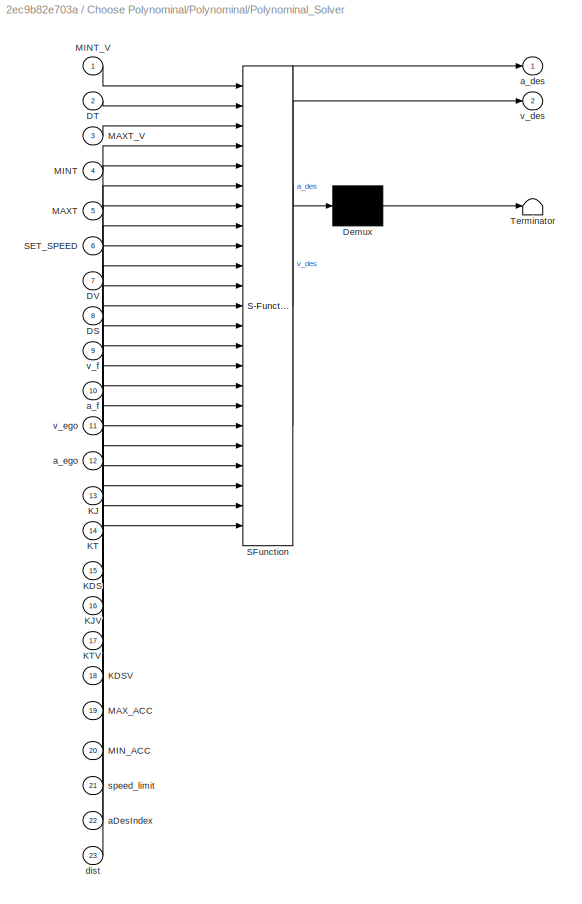
BLOCK [SubSystem] Choose Polynominal/Polynominal/Polynominal_Solver
  ErrorFcn = Stateflow.Translate.translate
  PermitHierarchicalResolution = ExplicitOnly
  Ports = [23, 2]
  RequestExecContextInheritance = off
  SFBlockType = MATLAB Function
  TreatAsAtomicUnit = on
BLOCK [Demux] Choose Polynominal/Polynominal/Polynominal_Solver/ Demux 
  Outputs = 1
  Ports = [1, 1]
BLOCK [S-Function] Choose Polynominal/Polynominal/Polynominal_Solver/ SFunction 
  EnableBusSupport = on
  FunctionName = sf_sfun
  PortCounts = [23 3]
  Ports = [23, 3]
  SFcnIsStateOwnerBlock = off
  SFunctionDeploymentMode = off
  Tag = Stateflow S-Function AccTarSel_PLAN_CTRL 3
BLOCK [Terminator] Choose Polynominal/Polynominal/Polynominal_Solver/ Terminator 
BLOCK [Inport] Choose Polynominal/Polynominal/Polynominal_Solver/DS
  IconDisplay = Port number
  Port = 8
BLOCK [Inport] Choose Polynominal/Polynominal/Polynominal_Solver/DT
  IconDisplay = Port number
  Port = 2
BLOCK [Inport] Choose Polynominal/Polynominal/Polynominal_Solver/DV
  IconDisplay = Port number
  Port = 7
BLOCK [Inport] Choose Polynominal/Polynominal/Polynominal_Solver/KDS
  IconDisplay = Port number
  Port = 15
BLOCK [Inport] Choose Polynominal/Polynominal/Polynominal_Solver/KDSV
  IconDisplay = Port number
  Port = 18
BLOCK [Inport] Choose Polynominal/Polynominal/Polynominal_Solver/KJ
  IconDisplay = Port number
  Port = 13
BLOCK [Inport] Choose Polynominal/Polynominal/Polynominal_Solver/KJV
  IconDisplay = Port number
  Port = 16
BLOCK [Inport] Choose Polynominal/Polynominal/Polynominal_Solver/KT
  IconDisplay = Port number
  Port = 14
BLOCK [Inport] Choose Polynominal/Polynominal/Polynominal_Solver/KTV
  IconDisplay = Port number
  Port = 17
BLOCK [Inport] Choose Polynominal/Polynominal/Polynominal_Solver/MAXT
  IconDisplay = Port number
  Port = 5
BLOCK [Inport] Choose Polynominal/Polynominal/Polynominal_Solver/MAXT_V
  IconDisplay = Port number
  Port = 3
BLOCK [Inport] Choose Polynominal/Polynominal/Polynominal_Solver/MAX_ACC
  IconDisplay = Port number
  Port = 19
BLOCK [Inport] Choose Polynominal/Polynominal/Polynominal_Solver/MINT
  IconDisplay = Port number
  Port = 4
BLOCK [Inport] Choose Polynominal/Polynominal/Polynominal_Solver/MINT_V
  IconDisplay = Port number
BLOCK [Inport] Choose Polynominal/Polynominal/Polynominal_Solver/MIN_ACC
  IconDisplay = Port number
  Port = 20
BLOCK [Inport] Choose Polynominal/Polynominal/Polynominal_Solver/SET_SPEED
  IconDisplay = Port number
  Port = 6
BLOCK [Inport] Choose Polynominal/Polynominal/Polynominal_Solver/aDesIndex
  IconDisplay = Port number
  Port = 22
BLOCK [Outport] Choose Polynominal/Polynominal/Polynominal_Solver/a_des
  IconDisplay = Port number
BLOCK [Inport] Choose Polynominal/Polynominal/Polynominal_Solver/a_ego
  IconDisplay = Port number
  Port = 12
BLOCK [Inport] Choose Polynominal/Polynominal/Polynominal_Solver/a_f
  IconDisplay = Port number
  Port = 10
BLOCK [Inport] Choose Polynominal/Polynominal/Polynominal_Solver/dist
  IconDisplay = Port number
  Port = 23
BLOCK [Inport] Choose Polynominal/Polynominal/Polynominal_Solver/speed_limit
  IconDisplay = Port number
  Port = 21
BLOCK [Outport] Choose Polynominal/Polynominal/Polynominal_Solver/v_des
  IconDisplay = Port number
  Port = 2
BLOCK [Inport] Choose Polynominal/Polynominal/Polynominal_Solver/v_ego
  IconDisplay = Port number
  Port = 11
BLOCK [Inport] Choose Polynominal/Polynominal/Polynominal_Solver/v_f
  IconDisplay = Port number
  Port = 9
BLOCK [Outport] Choose Polynominal/Polynominal/a_des
  IconDisplay = Port number
BLOCK [Outport] Choose Polynominal/Polynominal/v_des
  IconDisplay = Port number
  Port = 2
BLOCK [Outport] Choose Polynominal/a_desPoly
  IconDisplay = Port number
BLOCK [Constant] Constant
  OutDataTypeStr = boolean
  Value = 0
BLOCK [Constant] Constant1
  OutDataTypeStr = double
  Value = 7
BLOCK [Constant] Constant10
  OutDataTypeStr = boolean
  Value = 0
BLOCK [Constant] Constant11
  OutDataTypeStr = boolean
  Value = 0
BLOCK [Constant] Constant2
  OutDataTypeStr = int32
  Value = 40
BLOCK [Constant] Constant3
  OutDataTypeStr = double
  Value = 11
BLOCK [Constant] Constant4
  OutDataTypeStr = uint16
  Value = 0
BLOCK [Constant] Constant5
  OutDataTypeStr = double
BLOCK [Constant] Constant6
  OutDataTypeStr = single
  Value = 4
BLOCK [Constant] Constant7
  OutDataTypeStr = uint8
  Value = 0
BLOCK [Constant] Constant8
  OutDataTypeStr = single
  Value = 2
BLOCK [Constant] Constant9
  OutDataTypeStr = int32
  Value = 0
BLOCK [DataTypeConversion] Data Type Conversion
  OutDataTypeStr = uint8
  RndMeth = Floor
  SaturateOnIntegerOverflow = off
BLOCK [DataTypeConversion] Data Type Conversion1
  OutDataTypeStr = uint8
  RndMeth = Floor
  SaturateOnIntegerOverflow = off
BLOCK [DataTypeConversion] Data Type Conversion2
  OutDataTypeStr = uint8
  RndMeth = Floor
  SaturateOnIntegerOverflow = off
BLOCK [DataTypeConversion] Data Type Conversion3
  OutDataTypeStr = uint8
  RndMeth = Floor
  SaturateOnIntegerOverflow = off
BLOCK [DataTypeConversion] Data Type Conversion4
  OutDataTypeStr = uint8
  RndMeth = Floor
  SaturateOnIntegerOverflow = off
BLOCK [DataTypeConversion] Data Type Conversion5
  OutDataTypeStr = uint8
  RndMeth = Floor
  SaturateOnIntegerOverflow = off
BLOCK [Inport] DrvActSimu
  BusOutputAsStruct = on
  IconDisplay = Port number
  OutDataTypeStr = Bus: NET_DRVACTION_ST
  Port = 6
BLOCK [SubSystem] EgoCourseFusion
  Ports = [2, 1]
  RequestExecContextInheritance = off
BLOCK [BusCreator] EgoCourseFusion/Bus Creator
  DisplayOption = bar
  InheritFromInputs = on
  Inputs = 4
  OutDataTypeStr = Bus: TRAJ_LANE_ST
  Ports = [4, 1]
BLOCK [BusSelector] EgoCourseFusion/Bus Selector
  OutputAsBus = off
  OutputSignals = Curvature
  Ports = [1, 1]
BLOCK [BusSelector] EgoCourseFusion/Bus Selector1
  OutputAsBus = off
  OutputSignals = dT
  Ports = [1, 1]
BLOCK [Constant] EgoCourseFusion/Constant2
  OutDataTypeStr = single
  Value = 0.5
BLOCK [Constant] EgoCourseFusion/Constant3
  OutDataTypeStr = single
  Value = 0
BLOCK [Constant] EgoCourseFusion/Constant4
  OutDataTypeStr = single
  Value = 0
BLOCK [Constant] EgoCourseFusion/Constant5
  OutDataTypeStr = single
  Value = 0
BLOCK [SubSystem] EgoCourseFusion/CurvatureFilt
  Ports = [2, 1]
  RequestExecContextInheritance = off
BLOCK [Lookup_n-D] EgoCourseFusion/CurvatureFilt/1-D Lookup Table
  BreakpointsForDimension1 = [-0.1,-0.0015,-0.0005,0.0005,0.0015,0.1]
  BreakpointsForDimension1FirstPoint = 10
  BreakpointsForDimension1Spacing = 12
  BreakpointsForDimension2FirstPoint = 10
  BreakpointsForDimension2Spacing = 12
  IndexSearchMethod = Linear search
  InternalRulePriority = Speed
  LookupTableObject = ''
  NumberOfTableDimensions = 1
  Ports = [1, 1]
  RndMeth = Simplest
  Table = [-0.1,-0.0015,0,0,0.0015,0.1]
BLOCK [Abs] EgoCourseFusion/CurvatureFilt/Abs
  SaturateOnIntegerOverflow = off
BLOCK [Sum] EgoCourseFusion/CurvatureFilt/Add
  InputSameDT = off
  Inputs = +-
  OutDataTypeStr = Inherit: Inherit via internal rule
  Ports = [2, 1]
  SaturateOnIntegerOverflow = off
BLOCK [Sum] EgoCourseFusion/CurvatureFilt/Add1
  InputSameDT = off
  OutDataTypeStr = Inherit: Inherit via internal rule
  Ports = [2, 1]
  SaturateOnIntegerOverflow = off
BLOCK [Constant] EgoCourseFusion/CurvatureFilt/Constant1
  OutDataTypeStr = single
  Value = 0
BLOCK [Constant] EgoCourseFusion/CurvatureFilt/Constant3
  OutDataTypeStr = single
BLOCK [Product] EgoCourseFusion/CurvatureFilt/Divide
  InputSameDT = off
  Inputs = */
  OutDataTypeStr = Inherit: Inherit via internal rule
  Ports = [2, 1]
  RndMeth = Floor
  SaturateOnIntegerOverflow = off
BLOCK [If] EgoCourseFusion/CurvatureFilt/If
  IfExpression = u1 == 1
  Ports = [1, 2]
BLOCK [SubSystem] EgoCourseFusion/CurvatureFilt/If Action Subsystem
  Ports = [1, 1, 0, 0, 0, 0, 0, 1]
  RequestExecContextInheritance = off
  TreatAsAtomicUnit = on
BLOCK [ActionPort] EgoCourseFusion/CurvatureFilt/If Action Subsystem/Action Port
  ActionType = then
BLOCK [Inport] EgoCourseFusion/CurvatureFilt/If Action Subsystem/In1
  IconDisplay = Port number
BLOCK [Outport] EgoCourseFusion/CurvatureFilt/If Action Subsystem/Out1
  IconDisplay = Port number
BLOCK [SubSystem] EgoCourseFusion/CurvatureFilt/If Action Subsystem1
  Ports = [1, 1, 0, 0, 0, 0, 0, 1]
  RequestExecContextInheritance = off
  TreatAsAtomicUnit = on
BLOCK [ActionPort] EgoCourseFusion/CurvatureFilt/If Action Subsystem1/Action Port
  ActionType = else
BLOCK [Inport] EgoCourseFusion/CurvatureFilt/If Action Subsystem1/In1
  IconDisplay = Port number
BLOCK [Outport] EgoCourseFusion/CurvatureFilt/If Action Subsystem1/Out1
  IconDisplay = Port number
BLOCK [Inport] EgoCourseFusion/CurvatureFilt/In1
  IconDisplay = Port number
BLOCK [Inport] EgoCourseFusion/CurvatureFilt/In2
  IconDisplay = Port number
  Port = 2
BLOCK [Memory] EgoCourseFusion/CurvatureFilt/Memory
BLOCK [Merge] EgoCourseFusion/CurvatureFilt/Merge
  Ports = [2, 1]
BLOCK [Product] EgoCourseFusion/CurvatureFilt/Multiply
  InputSameDT = off
  OutDataTypeStr = Inherit: Inherit via internal rule
  Ports = [2, 1]
  RndMeth = Floor
  SaturateOnIntegerOverflow = off
BLOCK [Product] EgoCourseFusion/CurvatureFilt/Multiply1
  InputSameDT = off
  OutDataTypeStr = Inherit: Inherit via internal rule
  Ports = [2, 1]
  RndMeth = Floor
  SaturateOnIntegerOverflow = off
BLOCK [Constant] EgoCourseFusion/CurvatureFilt/P_kapHystThres
  Value = P_kapHystThres
BLOCK [Constant] EgoCourseFusion/CurvatureFilt/P_tCurvFilt
  Value = P_tCurvFilt
BLOCK [RelationalOperator] EgoCourseFusion/CurvatureFilt/Relational Operator
  InputSameDT = off
  Operator = <=
  OutDataTypeStr = boolean
  Ports = [2, 1]
  RndMeth = Simplest
BLOCK [ToWorkspace] EgoCourseFusion/CurvatureFilt/To Workspace
  FixptAsFi = on
  MaxDataPoints = inf
  Ports = [1]
  SampleTime = -1
  Save2DSignal = 3-D array (concatenate along third dimension)
  SaveFormat = Timeseries
  VariableName = kapHyst
BLOCK [Outport] EgoCourseFusion/CurvatureFilt/kapTrajFilt
  IconDisplay = Port number
BLOCK [Product] EgoCourseFusion/Multiply
  InputSameDT = off
  OutDataTypeStr = Inherit: Inherit via internal rule
  Ports = [2, 1]
  RndMeth = Floor
  SaturateOnIntegerOverflow = off
BLOCK [Inport] EgoCourseFusion/SYS_Info_st
  IconDisplay = Port number
  Port = 2
BLOCK [Inport] EgoCourseFusion/egoInfo
  IconDisplay = Port number
BLOCK [Outport] EgoCourseFusion/egoTrajLane_st
  IconDisplay = Port number
BLOCK [From] From
  GotoTag = ATS_PO_st
BLOCK [FromWorkspace] From Workspace
  Commented = on
  OutDataTypeStr = Bus: FUS_OBJDATA_SIMU_ST
  SampleTime = 0
  VariableName = fus_objdata_simu_1_st
  ZeroCross = on
BLOCK [FromWorkspace] From Workspace1
  Commented = on
  OutDataTypeStr = Bus: VSI_VEHSTATE_ST
  SampleTime = 0
  VariableName = eme_basicinput_simu_st
  ZeroCross = on
BLOCK [FromWorkspace] From Workspace2
  Commented = on
  OutDataTypeStr = Bus: FUS_OBJDATA_SIMU_ST
  SampleTime = 0
  VariableName = fus_objdata_simu_2_st
  ZeroCross = on
BLOCK [FromWorkspace] From Workspace3
  Commented = on
  OutDataTypeStr = Bus: SYS_INFO_ST
  SampleTime = 0
  VariableName = sys_info_simu_st
  ZeroCross = on
BLOCK [From] From1
  GotoTag = SYS_Info
BLOCK [From] From3
  GotoTag = DrvOffReq
BLOCK [From] From4
  GotoTag = EgoMotion
BLOCK [From] From5
  GotoTag = ACC_STM
BLOCK [From] From6
  GotoTag = EgoMotion
BLOCK [From] From7
  GotoTag = ACC_STM
BLOCK [From] From8
  GotoTag = SYS_Info
BLOCK [From] From9
  GotoTag = aCv
BLOCK [Gain] Gain
  Gain = 1.1
  OutDataTypeStr = Inherit: Inherit via internal rule
  ParamDataTypeStr = Inherit: Inherit via internal rule
  SaturateOnIntegerOverflow = off
BLOCK [Gain] Gain1
  Gain = 0.9
  OutDataTypeStr = Inherit: Inherit via internal rule
  ParamDataTypeStr = Inherit: Inherit via internal rule
  SaturateOnIntegerOverflow = off
BLOCK [Goto] Goto
  GotoTag = ATS_PO_st
  IconDisplay = Signal name
BLOCK [Goto] Goto1
  GotoTag = SYS_Info
BLOCK [Goto] Goto2
  GotoTag = ZOP2ACC
BLOCK [Goto] Goto3
  GotoTag = DrvOffReq
BLOCK [Goto] Goto4
  GotoTag = EgoMotion
BLOCK [Goto] Goto5
  GotoTag = ACC_STM
BLOCK [Goto] Goto6
  GotoTag = aCv
BLOCK [If] If
  ElseIfExpressions = u1 == 1
  IfExpression = u1 == 0
  Ports = [1, 3]
BLOCK [Memory] Memory
BLOCK [Memory] Memory1
BLOCK [Merge] Merge
  Inputs = 3
  Ports = [3, 1]
BLOCK [SubSystem] No Trigger
  Ports = [0, 1, 0, 0, 0, 0, 0, 1]
  RequestExecContextInheritance = off
  TreatAsAtomicUnit = on
BLOCK [Outport] No Trigger/0
  IconDisplay = Port number
BLOCK [ActionPort] No Trigger/Action Port
  ActionType = then
BLOCK [Constant] No Trigger/Constant
  OutDataTypeStr = single
  Value = 0
BLOCK [SubSystem] ObjAdapter
  Ports = [2, 1]
  RequestExecContextInheritance = off
BLOCK [BusCreator] ObjAdapter/Bus Creator
  DisplayOption = bar
  InheritFromInputs = on
  Inputs = 2
  NonVirtualBus = on
  OutDataTypeStr = Bus: FUS_OBJDATA_ST
  Ports = [2, 1]
BLOCK [BusSelector] ObjAdapter/Bus Selector
  OutputAsBus = off
  OutputSignals = objects
  Ports = [1, 1]
BLOCK [Constant] ObjAdapter/Constant
  OutDataTypeStr = double
  Value = 0
BLOCK [SubSystem] ObjAdapter/For Each Subsystem
  Ports = [2, 1]
  RequestExecContextInheritance = off
  TreatAsAtomicUnit = on
BLOCK [Sum] ObjAdapter/For Each Subsystem/Add
  InputSameDT = off
  Inputs = +-
  OutDataTypeStr = Inherit: Inherit via internal rule
  Ports = [2, 1]
  SaturateOnIntegerOverflow = off
BLOCK [Sum] ObjAdapter/For Each Subsystem/Add1
  InputSameDT = off
  Inputs = +-
  OutDataTypeStr = Inherit: Inherit via internal rule
  Ports = [2, 1]
  SaturateOnIntegerOverflow = off
BLOCK [BusCreator] ObjAdapter/For Each Subsystem/Bus Creator
  DisplayOption = bar
  InheritFromInputs = off
  Inputs = 14
  NonVirtualBus = on
  OutDataTypeStr = Bus: OBJDATA_ST
  Ports = [14, 1]
BLOCK [BusSelector] ObjAdapter/For Each Subsystem/Bus Selector
  OutputAsBus = off
  OutputSignals = obj_property.trackStatus,obj_information.valid,obj_estimate.longPosition,obj_information.length,obj_estimate.latPosition,obj_estimate.longAbsoluteVelocity,obj_estimate.latRelativeVelocity,obj_estimate.longAbsoluteAcceleration,obj_estimate.latRelativeAcceleration,obj_information.motionPatternCurrent,obj_information.type,obj_property.id
  Ports = [1, 12]
BLOCK [BusSelector] ObjAdapter/For Each Subsystem/Bus Selector1
  OutputAsBus = off
  OutputSignals = vRef,aRef
  Ports = [1, 2]
BLOCK [Constant] ObjAdapter/For Each Subsystem/Constant1
  OutDataTypeStr = single
  Value = 0
BLOCK [Constant] ObjAdapter/For Each Subsystem/Constant2
  OutDataTypeStr = single
  Value = 0
BLOCK [Constant] ObjAdapter/For Each Subsystem/Constant3
  OutDataTypeStr = single
  Value = 0.999
BLOCK [DataTypeConversion] ObjAdapter/For Each Subsystem/Data Type Conversion
  OutDataTypeStr = boolean
  RndMeth = Floor
  SaturateOnIntegerOverflow = off
BLOCK [DataTypeConversion] ObjAdapter/For Each Subsystem/Data Type Conversion2
  RndMeth = Floor
  SaturateOnIntegerOverflow = off
BLOCK [DataTypeConversion] ObjAdapter/For Each Subsystem/Data Type Conversion3
  RndMeth = Floor
  SaturateOnIntegerOverflow = off
BLOCK [DataTypeConversion] ObjAdapter/For Each Subsystem/Data Type Conversion5
  RndMeth = Floor
  SaturateOnIntegerOverflow = off
BLOCK [DataTypeConversion] ObjAdapter/For Each Subsystem/Data Type Conversion6
  RndMeth = Floor
  SaturateOnIntegerOverflow = off
BLOCK [DataTypeConversion] ObjAdapter/For Each Subsystem/Data Type Conversion7
  RndMeth = Floor
  SaturateOnIntegerOverflow = off
BLOCK [DataTypeConversion] ObjAdapter/For Each Subsystem/Data Type Conversion8
  RndMeth = Floor
  SaturateOnIntegerOverflow = off
BLOCK [ForEach] ObjAdapter/For Each Subsystem/For Each
  DisableCoverage = on
  IndexMode = One-based
  Ports = []
BLOCK [From] ObjAdapter/For Each Subsystem/From
  GotoTag = vRef
BLOCK [From] ObjAdapter/For Each Subsystem/From1
  GotoTag = aRef
BLOCK [Goto] ObjAdapter/For Each Subsystem/Goto
  GotoTag = vRef
BLOCK [Goto] ObjAdapter/For Each Subsystem/Goto1
  GotoTag = aRef
BLOCK [Inport] ObjAdapter/For Each Subsystem/In1
  IconDisplay = Port number
  Partition = on
  PartitionDimension = 1
  PartitionOffset = 0
  PartitionWidth = 1
BLOCK [Inport] ObjAdapter/For Each Subsystem/In2
  IconDisplay = Port number
  Port = 2
BLOCK [Outport] ObjAdapter/For Each Subsystem/Out1
  ConcatenationDimension = 1
  IconDisplay = Port number
  OutDataTypeStr = Bus: OBJDATA_ST
BLOCK [SubSystem] ObjAdapter/For Each Subsystem/calcDx
  Ports = [2, 1]
  RequestExecContextInheritance = off
BLOCK [Inport] ObjAdapter/For Each Subsystem/calcDx/<length>
  IconDisplay = Port number
  Port = 2
BLOCK [Inport] ObjAdapter/For Each Subsystem/calcDx/<longPosition>
  IconDisplay = Port number
BLOCK [Sum] ObjAdapter/For Each Subsystem/calcDx/Add
  InputSameDT = off
  Inputs = +--
  OutDataTypeStr = Inherit: Inherit via internal rule
  Ports = [3, 1]
  SaturateOnIntegerOverflow = off
BLOCK [Constant] ObjAdapter/For Each Subsystem/calcDx/Constant1
  OutDataTypeStr = single
  Value = 3.68
BLOCK [Gain] ObjAdapter/For Each Subsystem/calcDx/Gain
  Gain = 0.5
  OutDataTypeStr = Inherit: Inherit via internal rule
  ParamDataTypeStr = Inherit: Inherit via internal rule
  SaturateOnIntegerOverflow = off
BLOCK [Outport] ObjAdapter/For Each Subsystem/calcDx/dx
  IconDisplay = Port number
BLOCK [SubSystem] ObjAdapter/For Each Subsystem/calcHist
  Ports = [1, 1]
  RequestExecContextInheritance = off
BLOCK [Inport] ObjAdapter/For Each Subsystem/calcHist/<trackStatus>
  IconDisplay = Port number
BLOCK [Constant] ObjAdapter/For Each Subsystem/calcHist/Constant11
  OutDataTypeStr = single
  Value = 0
BLOCK [Outport] ObjAdapter/For Each Subsystem/calcHist/Hist
  IconDisplay = Port number
BLOCK [RelationalOperator] ObjAdapter/For Each Subsystem/calcHist/Relational Operator
  InputSameDT = off
  Operator = ~=
  OutDataTypeStr = boolean
  Ports = [2, 1]
  RndMeth = Simplest
BLOCK [Inport] ObjAdapter/FusObjIn
  IconDisplay = Port number
BLOCK [Outport] ObjAdapter/FusObjOut
  IconDisplay = Port number
  OutDataTypeStr = Bus: FUS_OBJDATA_ST
BLOCK [Inport] ObjAdapter/egoInfo
  IconDisplay = Port number
  Port = 2
BLOCK [Inport] ObjList
  BusOutputAsStruct = on
  IconDisplay = Port number
  OutDataTypeStr = Bus: FUS_OBJ_OUTPUT_ST
  Port = 2
BLOCK [Inport] ObjListSimu
  BusOutputAsStruct = on
  IconDisplay = Port number
  OutDataTypeStr = Bus: FUS_OBJDATA_ST
  Port = 5
BLOCK [SubSystem] ObjRadarAdapter
  Ports = [1, 1]
  RequestExecContextInheritance = off
BLOCK [BusCreator] ObjRadarAdapter/Bus Creator
  DisplayOption = bar
  InheritFromInputs = off
  Inputs = 2
  NonVirtualBus = on
  OutDataTypeStr = Bus: FUS_OBJDATA_ST
  Ports = [2, 1]
BLOCK [BusSelector] ObjRadarAdapter/Bus Selector
  OutputAsBus = off
  OutputSignals = x50_20_Obj_00,x51_21_Obj_01,x52_22_Obj_02,x53_23_Obj_03,x54_24_Obj_04,x55_25_Obj_05,x56_26_Obj_06,x57_27_Obj_07,x58_28_Obj_08,x59_29_Obj_09,x5A_2A_Obj_10,x5B_2B_Obj_11,x5C_2C_Obj_12,x5D_2D_Obj_13,x5E_2E_Obj_14,x5F_2F_Obj_15,x60_30_Obj_16,x61_31_Obj_17,x62_32_Obj_18,x63_33_Obj_19,x64_34_Obj_20,x65_35_Obj_21,x66_36_Obj_22,x67_37_Obj_23,x68_38_Obj_24,x69_39_Obj_25,x6A_3A_Obj_26,x6B_3B_Obj_27,x6C_3C_O...<+159ch>
  Ports = [1, 40]
BLOCK [Constant] ObjRadarAdapter/Constant
  OutDataTypeStr = double
  Value = 0
BLOCK [SubSystem] ObjRadarAdapter/For Each Subsystem
  Ports = [1, 1]
  RequestExecContextInheritance = off
  TreatAsAtomicUnit = on
BLOCK [BusCreator] ObjRadarAdapter/For Each Subsystem/Bus Creator
  DisplayOption = bar
  InheritFromInputs = on
  Inputs = 14
  NonVirtualBus = on
  OutDataTypeStr = Bus: OBJDATA_ST
  Ports = [14, 1]
BLOCK [BusSelector] ObjRadarAdapter/For Each Subsystem/Bus Selector
  OutputAsBus = off
  OutputSignals = Obj_UpdateFlag,Obj_ValidFlag,Obj_XPos,Obj_YPos,Obj_XVelRel,Obj_YVelRel,Obj_XAccRel,Obj_MotionPattern,Obj_Type,Obj_ExstProb,Obj_ID
  Ports = [1, 11]
BLOCK [Constant] ObjRadarAdapter/For Each Subsystem/Constant1
  OutDataTypeStr = single
  Value = 0
BLOCK [Constant] ObjRadarAdapter/For Each Subsystem/Constant2
  OutDataTypeStr = single
  Value = 0
BLOCK [Constant] ObjRadarAdapter/For Each Subsystem/Constant3
  OutDataTypeStr = single
  Value = 0.999
BLOCK [Constant] ObjRadarAdapter/For Each Subsystem/Constant4
  OutDataTypeStr = single
  Value = 0
BLOCK [DataTypeConversion] ObjRadarAdapter/For Each Subsystem/Data Type Conversion
  OutDataTypeStr = boolean
  RndMeth = Floor
  SaturateOnIntegerOverflow = off
BLOCK [DataTypeConversion] ObjRadarAdapter/For Each Subsystem/Data Type Conversion1
  RndMeth = Floor
  SaturateOnIntegerOverflow = off
BLOCK [DataTypeConversion] ObjRadarAdapter/For Each Subsystem/Data Type Conversion2
  RndMeth = Floor
  SaturateOnIntegerOverflow = off
BLOCK [DataTypeConversion] ObjRadarAdapter/For Each Subsystem/Data Type Conversion3
  RndMeth = Floor
  SaturateOnIntegerOverflow = off
BLOCK [DataTypeConversion] ObjRadarAdapter/For Each Subsystem/Data Type Conversion4
  RndMeth = Floor
  SaturateOnIntegerOverflow = off
BLOCK [DataTypeConversion] ObjRadarAdapter/For Each Subsystem/Data Type Conversion6
  RndMeth = Floor
  SaturateOnIntegerOverflow = off
BLOCK [DataTypeConversion] ObjRadarAdapter/For Each Subsystem/Data Type Conversion7
  RndMeth = Floor
  SaturateOnIntegerOverflow = off
BLOCK [DataTypeConversion] ObjRadarAdapter/For Each Subsystem/Data Type Conversion8
  RndMeth = Floor
  SaturateOnIntegerOverflow = off
BLOCK [DataTypeConversion] ObjRadarAdapter/For Each Subsystem/Data Type Conversion9
  OutDataTypeStr = boolean
  RndMeth = Floor
  SaturateOnIntegerOverflow = off
BLOCK [ForEach] ObjRadarAdapter/For Each Subsystem/For Each
  DisableCoverage = on
  IndexMode = One-based
  Ports = []
BLOCK [Inport] ObjRadarAdapter/For Each Subsystem/In1
  IconDisplay = Port number
  Partition = on
  PartitionDimension = 1
  PartitionOffset = 0
  PartitionWidth = 1
BLOCK [Outport] ObjRadarAdapter/For Each Subsystem/Out1
  ConcatenationDimension = 1
  IconDisplay = Port number
BLOCK [Terminator] ObjRadarAdapter/For Each Subsystem/Terminator
BLOCK [SubSystem] ObjRadarAdapter/For Each Subsystem/calcDx
  Ports = [1, 1]
  RequestExecContextInheritance = off
BLOCK [Inport] ObjRadarAdapter/For Each Subsystem/calcDx/<longPosition>
  IconDisplay = Port number
BLOCK [Sum] ObjRadarAdapter/For Each Subsystem/calcDx/Add
  InputSameDT = off
  Inputs = +-
  OutDataTypeStr = Inherit: Inherit via internal rule
  Ports = [2, 1]
  SaturateOnIntegerOverflow = off
BLOCK [Constant] ObjRadarAdapter/For Each Subsystem/calcDx/Constant1
  OutDataTypeStr = single
  Value = 3.68
BLOCK [Outport] ObjRadarAdapter/For Each Subsystem/calcDx/dx
  IconDisplay = Port number
BLOCK [SubSystem] ObjRadarAdapter/For Each Subsystem/calcMotionSts
  Ports = [1, 1]
  RequestExecContextInheritance = off
BLOCK [Lookup_n-D] ObjRadarAdapter/For Each Subsystem/calcMotionSts/1-D Lookup Table
  BreakpointsForDimension1 = [0,1,2,3,4,5]
  BreakpointsForDimension1FirstPoint = 10
  BreakpointsForDimension1Spacing = 12
  BreakpointsForDimension2FirstPoint = 10
  BreakpointsForDimension2Spacing = 12
  IndexSearchMethod = Linear search
  InternalRulePriority = Speed
  InterpMethod = Flat
  LookupTableObject = ''
  NumberOfTableDimensions = 1
  Ports = [1, 1]
  RndMeth = Simplest
  Table = [0,1,4,2,2,0]
BLOCK [Inport] ObjRadarAdapter/For Each Subsystem/calcMotionSts/MotionPattern
  IconDisplay = Port number
BLOCK [Outport] ObjRadarAdapter/For Each Subsystem/calcMotionSts/MotionSts
  IconDisplay = Port number
BLOCK [SubSystem] ObjRadarAdapter/For Each Subsystem/calcType
  Ports = [1, 1]
  RequestExecContextInheritance = off
BLOCK [Lookup_n-D] ObjRadarAdapter/For Each Subsystem/calcType/1-D Lookup Table
  BreakpointsForDimension1 = [0,1,2,3]
  BreakpointsForDimension1FirstPoint = 10
  BreakpointsForDimension1Spacing = 12
  BreakpointsForDimension2FirstPoint = 10
  BreakpointsForDimension2Spacing = 12
  IndexSearchMethod = Linear search
  InternalRulePriority = Speed
  InterpMethod = Flat
  LookupTableObject = ''
  NumberOfTableDimensions = 1
  Ports = [1, 1]
  RndMeth = Simplest
  Table = [0,3,2,1]
BLOCK [Inport] ObjRadarAdapter/For Each Subsystem/calcType/ObjType
  IconDisplay = Port number
BLOCK [Outport] ObjRadarAdapter/For Each Subsystem/calcType/Type
  IconDisplay = Port number
BLOCK [Inport] ObjRadarAdapter/In1
  IconDisplay = Port number
BLOCK [Outport] ObjRadarAdapter/RadarObjOut
  IconDisplay = Port number
  OutDataTypeStr = Bus: FUS_OBJDATA_ST
BLOCK [Concatenate] ObjRadarAdapter/Vector Concatenate
  NumInputs = 40
  Ports = [40, 1]
BLOCK [Inport] ObjRadarList
  BusOutputAsStruct = on
  IconDisplay = Port number
  OutDataTypeStr = Bus: Radar410_Info_ST
  Port = 7
BLOCK [Constant] ObjSource
  OutDataTypeStr = single
  Value = 0
BLOCK [Constant] P_tMinDrvPhase
  OutDataTypeStr = single
  Value = P_tMinDrvPhase
BLOCK [Constant] P_vStandStill
  OutDataTypeStr = single
  Value = P_vStandStill
BLOCK [Constant] P_vStandStillHyst
  OutDataTypeStr = single
  Value = P_vStandStillHyst
BLOCK [Constant] PlanSrcChoice
  Value = 2
BLOCK [SubSystem] RTI Data
  CopyFcn = if exist('rtidc'), try,  rtidc('DataHostBlockClbCopy', gcbh); catch, disp(['Warning: ''CopyFcn'' for RTI Data block failed: ' lasterr]); end, end,
  DeleteFcn = if exist('rtidc'), try,  rtidc('DataHostBlockClbDelete', gcbh); catch, disp(['Warning: ''DeleteFcn'' for RTI Data block failed: ' lasterr]); end, end,
  LoadFcn = if exist('rtidc'), try,  rtidc('DataHostBlockClbLoad', gcbh); catch, disp(['Warning: ''LoadFcn'' for RTI Data block failed: ' lasterr]); end, end,
  ModelCloseFcn = if exist('rtidc'), try,  rtidc('DataHostBlockClbModelClose', gcbh); catch, disp(['Warning: ''ModelCloseFcn'' for RTI Data block failed: ' lasterr]); end, end,
  NameChangeFcn = if exist('rtidc'), try,  rtidc('DataHostBlockClbNameChange', gcbh); catch, disp(['Warning: ''NameChangeFcn'' for RTI Data block failed: ' lasterr]); end, end,
  Ports = []
  PostSaveFcn = if exist('rtidc'), try,  rtidc('DataHostBlockClbPostSave', gcbh); catch, disp(['Warning: ''PostSaveFcn'' for RTI Data block failed: ' lasterr]); end, end,
  PreSaveFcn = if exist('rtidc'), try,  rtidc('DataHostBlockClbPreSave', gcbh); catch, disp(['Warning: ''PreSaveFcn'' for RTI Data block failed: ' lasterr]); end, end,
  RequestExecContextInheritance = off
  Tag = struct('RTIDataServer',struct('RTIDataServerVs','2','RTIModelDescription','struct(''main'',''AccTarSel_PLAN_CTRL'',''sub'',''AccTarSel_PLAN_CTRL'',''isMp'',0)'))
BLOCK [SubSystem] RTI Data/RTI Data Store
  Ports = []
  RequestExecContextInheritance = off
  Tag = struct('private',struct('version',struct('dsVer',uint32(2)),'access',struct('modified',['03-Feb-2021 15:51:46'],'type','Model','isPerm',1)),'public',struct('main',struct('data',[]),'sub',struct('name','','data',[])))
BLOCK [SubSystem] RTI Data/RTI Data Store/RTI Data Store
  Ports = []
  RequestExecContextInheritance = off
BLOCK [SubSystem] RTI Data/RTI Data Store/RTI Data Store/RTI Data Store
  Ports = []
  RequestExecContextInheritance = off
BLOCK [SubSystem] RTI Data/RTI Data Store/RTI Data Store/RTI Data Store/RTI Data Store
  Ports = []
  RequestExecContextInheritance = off
BLOCK [RelationalOperator] Relational Operator
  InputSameDT = off
  Operator = ==
  OutDataTypeStr = boolean
  Ports = [2, 1]
  RndMeth = Simplest
BLOCK [RelationalOperator] Relational Operator1
  InputSameDT = off
  Operator = ==
  OutDataTypeStr = boolean
  Ports = [2, 1]
  RndMeth = Simplest
BLOCK [RelationalOperator] Relational Operator2
  InputSameDT = off
  OutDataTypeStr = boolean
  Ports = [2, 1]
  RndMeth = Simplest
BLOCK [Inport] SYS_Info_st
  BusOutputAsStruct = on
  IconDisplay = Port number
  OutDataTypeStr = Bus: SYS_INFO_ST
  Port = 4
BLOCK [Selector] Selector
  IndexMode = Zero-based
  IndexOptions = Index vector (port)
  Indices = [1 3]
  InputPortWidth = 40
  OutputSizes = 1
  Ports = [2, 1]
BLOCK [Selector] Selector1
  IndexMode = Zero-based
  IndexOptions = Index vector (port)
  Indices = [1 3]
  InputPortWidth = 40
  OutputSizes = 1
  Ports = [2, 1]
BLOCK [Selector] Selector2
  IndexMode = Zero-based
  IndexOptions = Index vector (port)
  Indices = [1 3]
  InputPortWidth = 6
  OutputSizes = 1
  Ports = [2, 1]
BLOCK [SubSystem] Subsystem
  Commented = on
  Ports = [2, 1]
  RequestExecContextInheritance = off
BLOCK [BusCreator] Subsystem/Bus Creator
  DisplayOption = bar
  InheritFromInputs = on
  Inputs = 2
  NonVirtualBus = on
  OutDataTypeStr = Bus: FUS_OBJDATA_ST
  Ports = [2, 1]
BLOCK [BusSelector] Subsystem/Bus Selector
  OutputAsBus = off
  OutputSignals = timeStamp,objdata_st
  Ports = [1, 2]
BLOCK [BusSelector] Subsystem/Bus Selector1
  OutputAsBus = off
  OutputSignals = objdata_st
  Ports = [1, 1]
BLOCK [Inport] Subsystem/In1
  IconDisplay = Port number
BLOCK [Inport] Subsystem/In2
  IconDisplay = Port number
  Port = 2
BLOCK [Outport] Subsystem/Out1
  IconDisplay = Port number
BLOCK [Concatenate] Subsystem/Vector Concatenate
  ConcatenateDimension = 2
  Ports = [2, 1]
BLOCK [SubSystem] Subsystem1
  Ports = [2, 1]
  RequestExecContextInheritance = off
BLOCK [Logic] Subsystem1/AND2
  AllPortsSameDT = off
  OutDataTypeStr = boolean
  Ports = [2, 1]
BLOCK [Logic] Subsystem1/AND3
  AllPortsSameDT = off
  Operator = OR
  OutDataTypeStr = boolean
  Ports = [2, 1]
BLOCK [Sum] Subsystem1/Add
  InputSameDT = off
  OutDataTypeStr = Inherit: Inherit via internal rule
  Ports = [2, 1]
  SaturateOnIntegerOverflow = off
BLOCK [BusSelector] Subsystem1/Bus Selector
  OutputAsBus = off
  OutputSignals = Valid,dx,vx
  Ports = [1, 3]
BLOCK [BusSelector] Subsystem1/Bus Selector1
  OutputAsBus = off
  OutputSignals = vRef
  Ports = [1, 1]
BLOCK [Constant] Subsystem1/Constant
  OutDataTypeStr = boolean
BLOCK [Constant] Subsystem1/Constant1
  OutDataTypeStr = int32
  Value = 0
BLOCK [Outport] Subsystem1/DrvOffEnable
  IconDisplay = Port number
BLOCK [If] Subsystem1/If
  IfExpression = u1 == 1
  Ports = [1, 2]
BLOCK [SubSystem] Subsystem1/If Action Subsystem
  Ports = [1, 1, 0, 0, 0, 0, 0, 1]
  RequestExecContextInheritance = off
  TreatAsAtomicUnit = on
BLOCK [ActionPort] Subsystem1/If Action Subsystem/Action Port
  ActionType = then
BLOCK [Inport] Subsystem1/If Action Subsystem/In1
  IconDisplay = Port number
BLOCK [Outport] Subsystem1/If Action Subsystem/Out1
  IconDisplay = Port number
BLOCK [SubSystem] Subsystem1/If Action Subsystem1
  Ports = [1, 1, 0, 0, 0, 0, 0, 1]
  RequestExecContextInheritance = off
  TreatAsAtomicUnit = on
BLOCK [ActionPort] Subsystem1/If Action Subsystem1/Action Port
  ActionType = else
BLOCK [Inport] Subsystem1/If Action Subsystem1/In1
  IconDisplay = Port number
BLOCK [Outport] Subsystem1/If Action Subsystem1/Out1
  IconDisplay = Port number
BLOCK [Merge] Subsystem1/Merge
  Ports = [2, 1]
BLOCK [Constant] Subsystem1/P_dObjDrvOffMax
  Value = P_dObjDrvOffMax
BLOCK [Constant] Subsystem1/P_dObjDrvOffMin
  Value = P_dObjDrvOffMin
BLOCK [Constant] Subsystem1/P_vObjDrvOff
  Value = P_vObjDrvOff
BLOCK [RelationalOperator] Subsystem1/Relational Operator6
  InputSameDT = off
  Operator = >
  OutDataTypeStr = boolean
  Ports = [2, 1]
  RndMeth = Simplest
BLOCK [RelationalOperator] Subsystem1/Relational Operator7
  InputSameDT = off
  Operator = >
  OutDataTypeStr = boolean
  Ports = [2, 1]
  RndMeth = Simplest
BLOCK [RelationalOperator] Subsystem1/Relational Operator8
  InputSameDT = off
  Operator = >
  OutDataTypeStr = boolean
  Ports = [2, 1]
  RndMeth = Simplest
BLOCK [Selector] Subsystem1/Selector1
  IndexMode = Zero-based
  IndexOptions = Index vector (port)
  Indices = [1 3]
  InputPortWidth = 6
  OutputSizes = 1
  Ports = [2, 1]
BLOCK [Inport] Subsystem1/egoInfo
  IconDisplay = Port number
  Port = 2
BLOCK [Inport] Subsystem1/objInfo
  IconDisplay = Port number
BLOCK [SubSystem] Subsystem3
  Ports = [4, 2]
  RequestExecContextInheritance = off
BLOCK [Outport] Subsystem3/ACC_Disable_Msk
  IconDisplay = Port number
  Port = 2
BLOCK [Sum] Subsystem3/Add
  AccumDataTypeStr = uint16
  InputSameDT = off
  Inputs = ++++
  OutDataTypeStr = Inherit: Inherit via internal rule
  Ports = [4, 1]
  SaturateOnIntegerOverflow = off
BLOCK [BusCreator] Subsystem3/Bus Creator
  DisplayOption = bar
  InheritFromInputs = off
  Inputs = 14
  NonVirtualBus = on
  OutDataTypeStr = Bus: NET_DRVACTION_ST
  Ports = [14, 1]
BLOCK [BusSelector] Subsystem3/Bus Selector
  OutputAsBus = off
  OutputSignals = xAF,x1B6,xFB,x1E1,x194
  Ports = [1, 5]
BLOCK [BusSelector] Subsystem3/Bus Selector1
  OutputAsBus = off
  OutputSignals = TrShftLvrPos
  Ports = [1, 1]
BLOCK [BusSelector] Subsystem3/Bus Selector2
  OutputAsBus = off
  OutputSignals = AccelOvrd
  Ports = [1, 1]
BLOCK [BusSelector] Subsystem3/Bus Selector3
  OutputAsBus = off
  OutputSignals = BrkPdlAppd
  Ports = [1, 1]
BLOCK [BusSelector] Subsystem3/Bus Selector4
  OutputAsBus = off
  OutputSignals = CCSwStsOnSwA,CCSwStsCanclSwA,CCSwStsSetSwA,CCSwStsRsmSwA,CCSwStsSpdIncSwA,CCSwStsSpdDecSwA,CCSwStsDistIncSwA,CCSwStsDistDecSwA
  Ports = [1, 8]
BLOCK [BusSelector] Subsystem3/Bus Selector5
  OutputAsBus = off
  OutputSignals = EPTAccelActuPos
  Ports = [1, 1]
BLOCK [BusSelector] Subsystem3/Bus Selector6
  OutputAsBus = off
  OutputSignals = BrakePedalApply,ACC_MainSw,ACC_CancelSw,GearLever
  Ports = [1, 4]
BLOCK [BusSelector] Subsystem3/Bus Selector7
  OutputAsBus = off
  OutputSignals = activate_acc
  Ports = [1, 1]
BLOCK [Inport] Subsystem3/CANInput
  IconDisplay = Port number
BLOCK [Constant] Subsystem3/Constant
  OutDataTypeStr = single
  Value = 3
BLOCK [Constant] Subsystem3/Constant1
  OutDataTypeStr = boolean
  Value = 0
BLOCK [DataTypeConversion] Subsystem3/Data Type Conversion
  OutDataTypeStr = boolean
  RndMeth = Floor
  SaturateOnIntegerOverflow = off
BLOCK [DataTypeConversion] Subsystem3/Data Type Conversion1
  OutDataTypeStr = boolean
  RndMeth = Floor
  SaturateOnIntegerOverflow = off
BLOCK [DataTypeConversion] Subsystem3/Data Type Conversion10
  OutDataTypeStr = single
  RndMeth = Floor
  SaturateOnIntegerOverflow = off
BLOCK [DataTypeConversion] Subsystem3/Data Type Conversion11
  OutDataTypeStr = single
  RndMeth = Floor
  SaturateOnIntegerOverflow = off
BLOCK [DataTypeConversion] Subsystem3/Data Type Conversion12
  OutDataTypeStr = uint8
  RndMeth = Floor
  SaturateOnIntegerOverflow = off
BLOCK [DataTypeConversion] Subsystem3/Data Type Conversion13
  OutDataTypeStr = uint8
  RndMeth = Floor
  SaturateOnIntegerOverflow = off
BLOCK [DataTypeConversion] Subsystem3/Data Type Conversion14
  OutDataTypeStr = uint8
  RndMeth = Floor
  SaturateOnIntegerOverflow = off
BLOCK [DataTypeConversion] Subsystem3/Data Type Conversion15
  OutDataTypeStr = uint8
  RndMeth = Floor
  SaturateOnIntegerOverflow = off
BLOCK [DataTypeConversion] Subsystem3/Data Type Conversion16
  OutDataTypeStr = boolean
  RndMeth = Floor
  SaturateOnIntegerOverflow = off
BLOCK [DataTypeConversion] Subsystem3/Data Type Conversion2
  OutDataTypeStr = boolean
  RndMeth = Floor
  SaturateOnIntegerOverflow = off
BLOCK [DataTypeConversion] Subsystem3/Data Type Conversion3
  OutDataTypeStr = boolean
  RndMeth = Floor
  SaturateOnIntegerOverflow = off
BLOCK [DataTypeConversion] Subsystem3/Data Type Conversion4
  OutDataTypeStr = boolean
  RndMeth = Floor
  SaturateOnIntegerOverflow = off
BLOCK [DataTypeConversion] Subsystem3/Data Type Conversion6
  OutDataTypeStr = boolean
  RndMeth = Floor
  SaturateOnIntegerOverflow = off
BLOCK [DataTypeConversion] Subsystem3/Data Type Conversion7
  OutDataTypeStr = boolean
  RndMeth = Floor
  SaturateOnIntegerOverflow = off
BLOCK [DataTypeConversion] Subsystem3/Data Type Conversion8
  OutDataTypeStr = boolean
  RndMeth = Floor
  SaturateOnIntegerOverflow = off
BLOCK [DataTypeConversion] Subsystem3/Data Type Conversion9
  OutDataTypeStr = boolean
  RndMeth = Floor
  SaturateOnIntegerOverflow = off
BLOCK [From] Subsystem3/From
  GotoTag = ZOP_Active
BLOCK [Gain] Subsystem3/Gain
  OutDataTypeStr = uint16
  ParamDataTypeStr = Inherit: Inherit via internal rule
  SaturateOnIntegerOverflow = off
BLOCK [Gain] Subsystem3/Gain1
  Gain = 2
  OutDataTypeStr = uint16
  ParamDataTypeStr = Inherit: Inherit via internal rule
  SaturateOnIntegerOverflow = off
BLOCK [Gain] Subsystem3/Gain2
  Gain = 4
  OutDataTypeStr = uint16
  ParamDataTypeStr = Inherit: Inherit via internal rule
  SaturateOnIntegerOverflow = off
BLOCK [Gain] Subsystem3/Gain3
  Gain = 8
  OutDataTypeStr = uint16
  ParamDataTypeStr = Inherit: Inherit via internal rule
  SaturateOnIntegerOverflow = off
BLOCK [Goto] Subsystem3/Goto
  GotoTag = ZOP_Active
BLOCK [Memory] Subsystem3/Memory
BLOCK [Memory] Subsystem3/Memory1
BLOCK [Memory] Subsystem3/Memory2
BLOCK [Outport] Subsystem3/NET_DrvAction_st
  IconDisplay = Port number
  OutDataTypeStr = Bus: NET_DRVACTION_ST
BLOCK [Logic] Subsystem3/NOT
  AllPortsSameDT = off
  Operator = NOT
  OutDataTypeStr = boolean
  Ports = [1, 1]
BLOCK [Logic] Subsystem3/OR
  AllPortsSameDT = off
  Inputs = 3
  Operator = OR
  OutDataTypeStr = boolean
  Ports = [3, 1]
BLOCK [RelationalOperator] Subsystem3/Relational Operator
  InputSameDT = off
  Operator = <
  OutDataTypeStr = boolean
  Ports = [2, 1]
  RndMeth = Simplest
BLOCK [Inport] Subsystem3/TJA_Active
  IconDisplay = Port number
  Port = 3
BLOCK [Terminator] Subsystem3/Terminator
BLOCK [Inport] Subsystem3/VLC_Cmd_K1
  IconDisplay = Port number
  Port = 2
BLOCK [Inport] Subsystem3/ZOP2ACC
  IconDisplay = Port number
  Port = 4
BLOCK [SubSystem] Subsystem3/calcOverride
  Ports = [3, 1]
  RequestExecContextInheritance = off
BLOCK [Logic] Subsystem3/calcOverride/AND
  AllPortsSameDT = off
  Inputs = 3
  OutDataTypeStr = boolean
  Ports = [3, 1]
BLOCK [Logic] Subsystem3/calcOverride/AND1
  AllPortsSameDT = off
  Operator = OR
  OutDataTypeStr = boolean
  Ports = [2, 1]
BLOCK [Logic] Subsystem3/calcOverride/AND2
  AllPortsSameDT = off
  Inputs = 3
  OutDataTypeStr = boolean
  Ports = [3, 1]
BLOCK [Logic] Subsystem3/calcOverride/AND3
  AllPortsSameDT = off
  Operator = OR
  OutDataTypeStr = boolean
  Ports = [2, 1]
BLOCK [Logic] Subsystem3/calcOverride/AND4
  AllPortsSameDT = off
  Operator = NOT
  OutDataTypeStr = boolean
  Ports = [1, 1]
BLOCK [Inport] Subsystem3/calcOverride/AccelPedal
  IconDisplay = Port number
  Port = 2
BLOCK [BusSelector] Subsystem3/calcOverride/Bus Selector
  OutputAsBus = off
  OutputSignals = CDDEnable
  Ports = [1, 1]
BLOCK [Constant] Subsystem3/calcOverride/Constant
  Value = 15
BLOCK [Constant] Subsystem3/calcOverride/Constant1
  Value = 10
BLOCK [Outport] Subsystem3/calcOverride/DrvOverride
  IconDisplay = Port number
BLOCK [Memory] Subsystem3/calcOverride/Memory
BLOCK [Inport] Subsystem3/calcOverride/PTOverride
  IconDisplay = Port number
  Port = 3
BLOCK [RelationalOperator] Subsystem3/calcOverride/Relational Operator
  InputSameDT = off
  OutDataTypeStr = boolean
  Ports = [2, 1]
  RndMeth = Simplest
BLOCK [RelationalOperator] Subsystem3/calcOverride/Relational Operator1
  InputSameDT = off
  OutDataTypeStr = boolean
  Ports = [2, 1]
  RndMeth = Simplest
BLOCK [Inport] Subsystem3/calcOverride/VLC_Cmd_K1
  IconDisplay = Port number
BLOCK [Switch] Switch
  Criteria = u2 > Threshold
  InputSameDT = off
  SaturateOnIntegerOverflow = off
BLOCK [Inport] TJA_Active
  IconDisplay = Port number
  Port = 9
BLOCK [SubSystem] Target_PreProcess
  Ports = [4, 1]
  RequestExecContextInheritance = off
BLOCK [Outport] Target_PreProcess/ACC_PO
  IconDisplay = Port number
  OutDataTypeStr = Bus: ATS_PO_ST
BLOCK [Logic] Target_PreProcess/AND
  AllPortsSameDT = off
  Inputs = 3
  OutDataTypeStr = boolean
  Ports = [3, 1]
BLOCK [Sum] Target_PreProcess/Add
  InputSameDT = off
  OutDataTypeStr = Inherit: Inherit via internal rule
  Ports = [2, 1]
  SaturateOnIntegerOverflow = off
BLOCK [Assignment] Target_PreProcess/Assignment1
  DiagnosticForDimensions = Warning
  IndexMode = Zero-based
  IndexOptions = Index vector (port)
  Indices = 1
  OutputSizes = 1
  Ports = [3, 1]
BLOCK [BusCreator] Target_PreProcess/Bus Creator
  DisplayOption = bar
  InheritFromInputs = off
  Inputs = 11
  NonVirtualBus = on
  OutDataTypeStr = Bus: ATS_PO_ST
  Ports = [11, 1]
BLOCK [BusCreator] Target_PreProcess/Bus Creator1
  DisplayOption = bar
  InheritFromInputs = on
  Inputs = 2
  Ports = [2, 1]
BLOCK [BusSelector] Target_PreProcess/Bus Selector
  OutputAsBus = off
  OutputSignals = Index,Valid,MotionSts,dx,vx,ax
  Ports = [1, 6]
BLOCK [BusSelector] Target_PreProcess/Bus Selector1
  OutputAsBus = off
  OutputSignals = Valid,Index,dx,vx,ax,axAbs
  Ports = [1, 6]
BLOCK [BusSelector] Target_PreProcess/Bus Selector2
  OutputAsBus = off
  OutputSignals = dT
  Ports = [1, 1]
BLOCK [BusSelector] Target_PreProcess/Bus Selector3
  OutputAsBus = off
  OutputSignals = vRef,aRef
  Ports = [1, 2]
BLOCK [BusSelector] Target_PreProcess/Bus Selector4
  OutputAsBus = off
  OutputSignals = Valid,Index,dy,vy,Type,MotionSts
  Ports = [1, 6]
BLOCK [Constant] Target_PreProcess/Constant
  OutDataTypeStr = int32
  Value = 0
BLOCK [Constant] Target_PreProcess/Constant1
  OutDataTypeStr = int32
  Value = 0
BLOCK [From] Target_PreProcess/From
  GotoTag = vxK1
BLOCK [From] Target_PreProcess/From1
  GotoTag = axK1
BLOCK [From] Target_PreProcess/From10
  GotoTag = Type
BLOCK [From] Target_PreProcess/From11
  GotoTag = dxK1
BLOCK [From] Target_PreProcess/From12
  GotoTag = MotionSts
BLOCK [From] Target_PreProcess/From2
  GotoTag = aRef
BLOCK [From] Target_PreProcess/From3
  GotoTag = axAbsK1
BLOCK [From] Target_PreProcess/From4
  GotoTag = aRef
BLOCK [From] Target_PreProcess/From5
  GotoTag = PO
BLOCK [From] Target_PreProcess/From6
  GotoTag = vRef
BLOCK [From] Target_PreProcess/From7
  GotoTag = dT
BLOCK [From] Target_PreProcess/From8
  GotoTag = dy
BLOCK [From] Target_PreProcess/From9
  GotoTag = vy
BLOCK [Goto] Target_PreProcess/Goto
  GotoTag = vxK1
BLOCK [Goto] Target_PreProcess/Goto1
  GotoTag = axK1
BLOCK [Goto] Target_PreProcess/Goto10
  GotoTag = dxK1
BLOCK [Goto] Target_PreProcess/Goto11
  GotoTag = MotionSts
BLOCK [Goto] Target_PreProcess/Goto2
  GotoTag = aRef
BLOCK [Goto] Target_PreProcess/Goto3
  GotoTag = axAbsK1
BLOCK [Goto] Target_PreProcess/Goto4
  GotoTag = PO
BLOCK [Goto] Target_PreProcess/Goto5
  GotoTag = vRef
BLOCK [Goto] Target_PreProcess/Goto6
  GotoTag = dT
BLOCK [Goto] Target_PreProcess/Goto7
  GotoTag = dy
BLOCK [Goto] Target_PreProcess/Goto8
  GotoTag = vy
BLOCK [Goto] Target_PreProcess/Goto9
  GotoTag = Type
BLOCK [If] Target_PreProcess/If
  IfExpression = u1 == 1
  Ports = [1, 2]
BLOCK [SubSystem] Target_PreProcess/If Action Subsystem
  Ports = [4, 6, 0, 0, 0, 0, 0, 1]
  RequestExecContextInheritance = off
  TreatAsAtomicUnit = on
BLOCK [ActionPort] Target_PreProcess/If Action Subsystem/Action Port
  ActionType = else
BLOCK [Sum] Target_PreProcess/If Action Subsystem/Add
  InputSameDT = off
  OutDataTypeStr = Inherit: Inherit via internal rule
  Ports = [2, 1]
  SaturateOnIntegerOverflow = off
BLOCK [Constant] Target_PreProcess/If Action Subsystem/Constant
  OutDataTypeStr = single
  Value = 0
BLOCK [Outport] Target_PreProcess/If Action Subsystem/NegTimeInit
  IconDisplay = Port number
  Port = 5
BLOCK [Outport] Target_PreProcess/If Action Subsystem/PosTimeInit
  IconDisplay = Port number
  Port = 6
BLOCK [Inport] Target_PreProcess/If Action Subsystem/aRef
  IconDisplay = Port number
  Port = 4
BLOCK [Inport] Target_PreProcess/If Action Subsystem/ax
  IconDisplay = Port number
  Port = 3
BLOCK [Outport] Target_PreProcess/If Action Subsystem/axAbsPreFiltInit
  IconDisplay = Port number
  Port = 4
BLOCK [Outport] Target_PreProcess/If Action Subsystem/axPreFiltInit
  IconDisplay = Port number
  Port = 3
BLOCK [Inport] Target_PreProcess/If Action Subsystem/dx
  IconDisplay = Port number
BLOCK [Outport] Target_PreProcess/If Action Subsystem/dxPreFiltInit
  IconDisplay = Port number
BLOCK [Inport] Target_PreProcess/If Action Subsystem/vx
  IconDisplay = Port number
  Port = 2
BLOCK [Outport] Target_PreProcess/If Action Subsystem/vxPreFiltInit
  IconDisplay = Port number
  Port = 2
BLOCK [Memory] Target_PreProcess/Memory
BLOCK [Merge] Target_PreProcess/Merge
  Ports = [2, 1]
BLOCK [Merge] Target_PreProcess/Merge1
  Ports = [2, 1]
BLOCK [Merge] Target_PreProcess/Merge2
  Ports = [2, 1]
BLOCK [Merge] Target_PreProcess/Merge3
  Ports = [2, 1]
BLOCK [Merge] Target_PreProcess/NegTime
  Ports = [2, 1]
BLOCK [Inport] Target_PreProcess/PO
  IconDisplay = Port number
  Port = 2
BLOCK [Inport] Target_PreProcess/PO_K1
  IconDisplay = Port number
BLOCK [Merge] Target_PreProcess/PosTime
  Ports = [2, 1]
BLOCK [RelationalOperator] Target_PreProcess/Relational Operator
  InputSameDT = off
  Operator = ==
  OutDataTypeStr = boolean
  Ports = [2, 1]
  RndMeth = Simplest
BLOCK [Inport] Target_PreProcess/SYS_Info
  IconDisplay = Port number
  Port = 4
BLOCK [Selector] Target_PreProcess/Selector1
  IndexMode = Zero-based
  IndexOptions = Index vector (port)
  Indices = [1 3]
  InputPortWidth = 6
  OutputSizes = 1
  Ports = [2, 1]
BLOCK [Constant] Target_PreProcess/Zero1
  OutDataTypeStr = Bus: ATS_PO_ST
  Value = zeros(1,6)
BLOCK [Inport] Target_PreProcess/egoInfo
  IconDisplay = Port number
  Port = 3
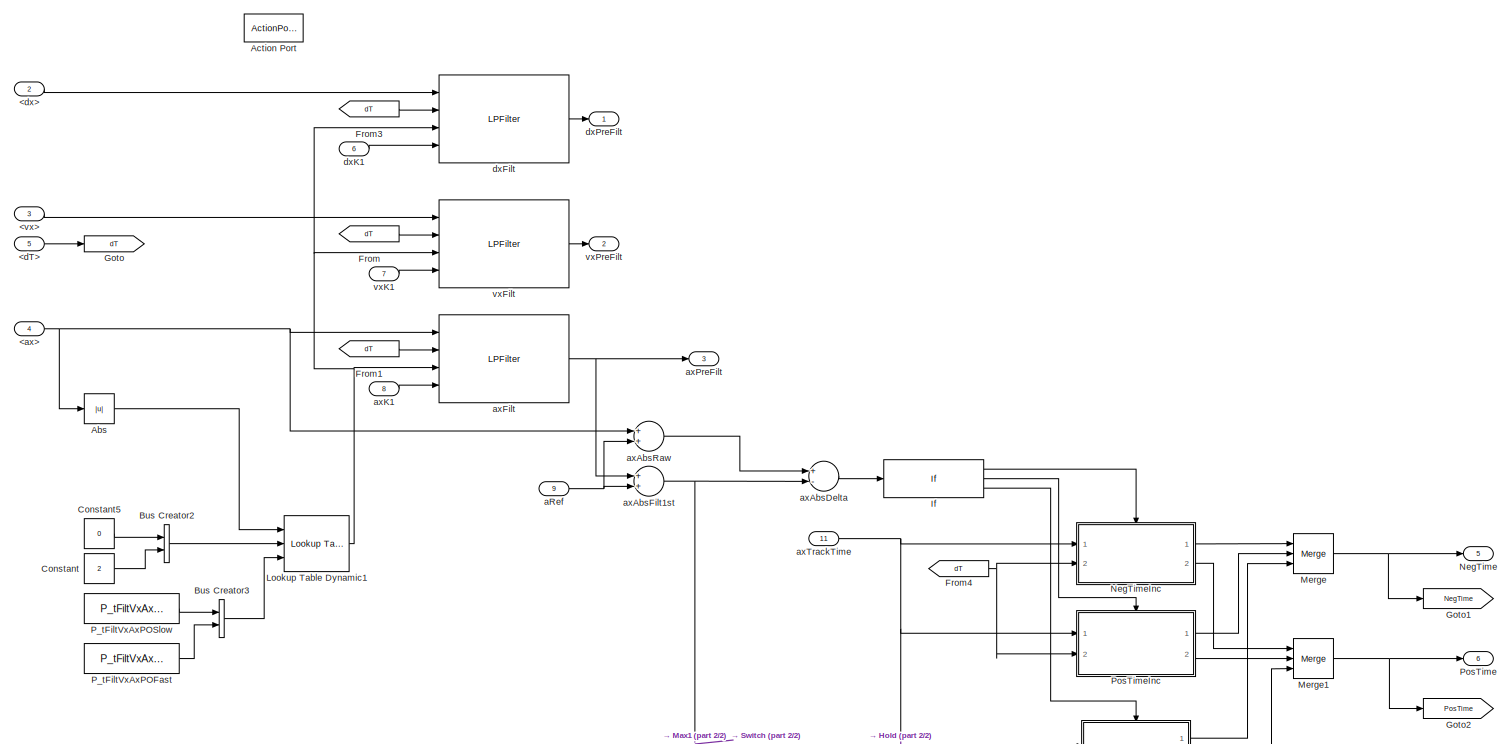
[diagram: Target_PreProcess/preFilt - part 1/2, full width, top band]
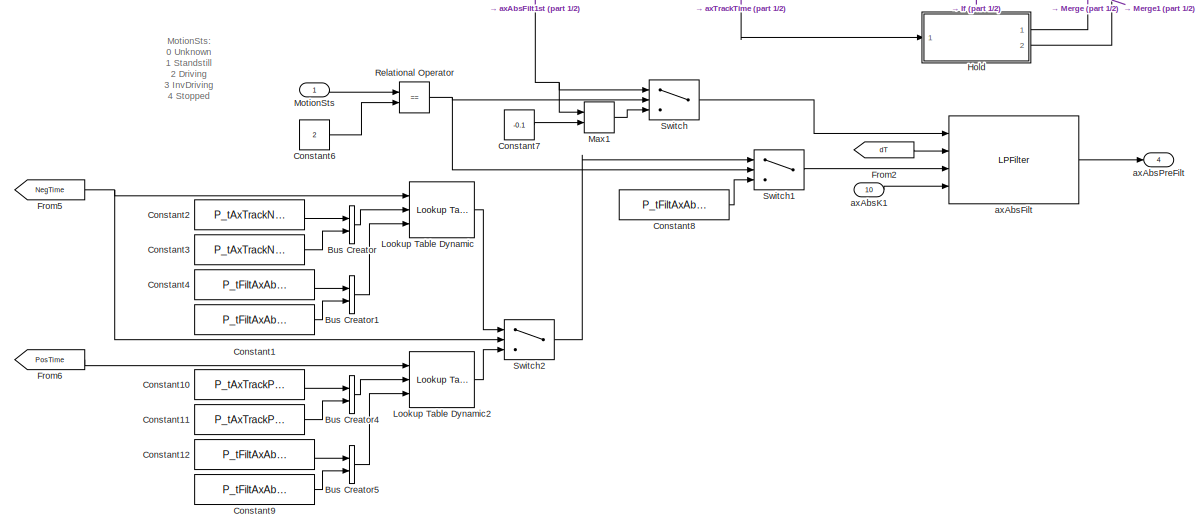
[diagram: Target_PreProcess/preFilt - part 2/2, full width, bottom band]
BLOCK [SubSystem] Target_PreProcess/preFilt
  Ports = [11, 6, 0, 0, 0, 0, 0, 1]
  RequestExecContextInheritance = off
BLOCK [Inport] Target_PreProcess/preFilt/<ax>
  IconDisplay = Port number
  Port = 4
BLOCK [Inport] Target_PreProcess/preFilt/<dT>
  IconDisplay = Port number
  Port = 5
BLOCK [Inport] Target_PreProcess/preFilt/<dx>
  IconDisplay = Port number
  Port = 2
BLOCK [Inport] Target_PreProcess/preFilt/<vx>
  IconDisplay = Port number
  Port = 3
BLOCK [Abs] Target_PreProcess/preFilt/Abs
  SaturateOnIntegerOverflow = off
BLOCK [ActionPort] Target_PreProcess/preFilt/Action Port
  ActionType = then
BLOCK [BusCreator] Target_PreProcess/preFilt/Bus Creator
  DisplayOption = bar
  InheritFromInputs = on
  Inputs = 2
  Ports = [2, 1]
BLOCK [BusCreator] Target_PreProcess/preFilt/Bus Creator1
  DisplayOption = bar
  InheritFromInputs = on
  Inputs = 2
  Ports = [2, 1]
BLOCK [BusCreator] Target_PreProcess/preFilt/Bus Creator2
  DisplayOption = bar
  InheritFromInputs = on
  Inputs = 2
  Ports = [2, 1]
BLOCK [BusCreator] Target_PreProcess/preFilt/Bus Creator3
  DisplayOption = bar
  InheritFromInputs = on
  Inputs = 2
  Ports = [2, 1]
BLOCK [BusCreator] Target_PreProcess/preFilt/Bus Creator4
  DisplayOption = bar
  InheritFromInputs = on
  Inputs = 2
  Ports = [2, 1]
BLOCK [BusCreator] Target_PreProcess/preFilt/Bus Creator5
  DisplayOption = bar
  InheritFromInputs = on
  Inputs = 2
  Ports = [2, 1]
BLOCK [Constant] Target_PreProcess/preFilt/Constant
  OutDataTypeStr = single
  Value = 2
BLOCK [Constant] Target_PreProcess/preFilt/Constant1
  Value = P_tFiltAxAbsPONegFast
BLOCK [Constant] Target_PreProcess/preFilt/Constant10
  Value = P_tAxTrackPosLower
BLOCK [Constant] Target_PreProcess/preFilt/Constant11
  Value = P_tAxTrackPosUpper
BLOCK [Constant] Target_PreProcess/preFilt/Constant12
  Value = P_tFiltAxAbsPOPosSlow
BLOCK [Constant] Target_PreProcess/preFilt/Constant2
  Value = P_tAxTrackNegLower
BLOCK [Constant] Target_PreProcess/preFilt/Constant3
  Value = P_tAxTrackNegUpper
BLOCK [Constant] Target_PreProcess/preFilt/Constant4
  Value = P_tFiltAxAbsPONegSlow
BLOCK [Constant] Target_PreProcess/preFilt/Constant5
  OutDataTypeStr = single
  Value = 0
BLOCK [Constant] Target_PreProcess/preFilt/Constant6
  OutDataTypeStr = single
  Value = 2
BLOCK [Constant] Target_PreProcess/preFilt/Constant7
  OutDataTypeStr = single
  Value = -0.1
BLOCK [Constant] Target_PreProcess/preFilt/Constant8
  Value = P_tFiltAxAbsPOStand
BLOCK [Constant] Target_PreProcess/preFilt/Constant9
  Value = P_tFiltAxAbsPOPosFast
BLOCK [From] Target_PreProcess/preFilt/From
  GotoTag = dT
BLOCK [From] Target_PreProcess/preFilt/From1
  GotoTag = dT
BLOCK [From] Target_PreProcess/preFilt/From2
  GotoTag = dT
BLOCK [From] Target_PreProcess/preFilt/From3
  GotoTag = dT
BLOCK [From] Target_PreProcess/preFilt/From4
  GotoTag = dT
BLOCK [From] Target_PreProcess/preFilt/From5
  GotoTag = NegTime
BLOCK [From] Target_PreProcess/preFilt/From6
  GotoTag = PosTime
BLOCK [Goto] Target_PreProcess/preFilt/Goto
  GotoTag = dT
BLOCK [Goto] Target_PreProcess/preFilt/Goto1
  GotoTag = NegTime
BLOCK [Goto] Target_PreProcess/preFilt/Goto2
  GotoTag = PosTime
BLOCK [SubSystem] Target_PreProcess/preFilt/Hold
  Ports = [1, 2, 0, 0, 0, 0, 0, 1]
  RequestExecContextInheritance = off
  TreatAsAtomicUnit = on
BLOCK [ActionPort] Target_PreProcess/preFilt/Hold/Action Port
  ActionType = else
BLOCK [BusSelector] Target_PreProcess/preFilt/Hold/Bus Selector
  OutputAsBus = off
  OutputSignals = NegTime,PosTime
  Ports = [1, 2]
BLOCK [Outport] Target_PreProcess/preFilt/Hold/NegTime
  IconDisplay = Port number
BLOCK [Outport] Target_PreProcess/preFilt/Hold/PosTime
  IconDisplay = Port number
  Port = 2
BLOCK [Inport] Target_PreProcess/preFilt/Hold/axTrackTime
  IconDisplay = Port number
BLOCK [If] Target_PreProcess/preFilt/If
  ElseIfExpressions = u1 > 0.1
  IfExpression = u1 < -0.1
  Ports = [1, 3]
BLOCK [Reference] Target_PreProcess/preFilt/Lookup Table Dynamic  REF=simulink/Lookup
Tables/Lookup
Table
Dynamic
  Ports = [3, 1]
  SourceBlock = simulink/Lookup\nTables/Lookup\nTable\nDynamic
  SourceProductBaseCode = SL
  SourceProductName = Simulink
  SourceType = Lookup Table Dynamic
BLOCK [Reference] Target_PreProcess/preFilt/Lookup Table Dynamic1  REF=simulink/Lookup
Tables/Lookup
Table
Dynamic
  Ports = [3, 1]
  SourceBlock = simulink/Lookup\nTables/Lookup\nTable\nDynamic
  SourceProductBaseCode = SL
  SourceProductName = Simulink
  SourceType = Lookup Table Dynamic
BLOCK [Reference] Target_PreProcess/preFilt/Lookup Table Dynamic2  REF=simulink/Lookup
Tables/Lookup
Table
Dynamic
  Ports = [3, 1]
  SourceBlock = simulink/Lookup\nTables/Lookup\nTable\nDynamic
  SourceProductBaseCode = SL
  SourceProductName = Simulink
  SourceType = Lookup Table Dynamic
BLOCK [MinMax] Target_PreProcess/preFilt/Max1
  Function = max
  InputSameDT = off
  Inputs = 2
  Ports = [2, 1]
  SaturateOnIntegerOverflow = off
BLOCK [Merge] Target_PreProcess/preFilt/Merge
  Inputs = 3
  Ports = [3, 1]
BLOCK [Merge] Target_PreProcess/preFilt/Merge1
  Inputs = 3
  Ports = [3, 1]
BLOCK [Inport] Target_PreProcess/preFilt/MotionSts
  IconDisplay = Port number
BLOCK [Outport] Target_PreProcess/preFilt/NegTime
  IconDisplay = Port number
  Port = 5
BLOCK [SubSystem] Target_PreProcess/preFilt/NegTimeInc
  Ports = [2, 2, 0, 0, 0, 0, 0, 1]
  RequestExecContextInheritance = off
  TreatAsAtomicUnit = on
BLOCK [ActionPort] Target_PreProcess/preFilt/NegTimeInc/Action Port
  ActionType = then
BLOCK [Sum] Target_PreProcess/preFilt/NegTimeInc/Add
  InputSameDT = off
  OutDataTypeStr = Inherit: Inherit via internal rule
  Ports = [2, 1]
  SaturateOnIntegerOverflow = off
BLOCK [BusSelector] Target_PreProcess/preFilt/NegTimeInc/Bus Selector
  OutputAsBus = off
  OutputSignals = NegTime
  Ports = [1, 1]
BLOCK [Constant] Target_PreProcess/preFilt/NegTimeInc/Constant
  OutDataTypeStr = single
  Value = 5
BLOCK [Constant] Target_PreProcess/preFilt/NegTimeInc/Constant1
  OutDataTypeStr = single
  Value = 0
BLOCK [MinMax] Target_PreProcess/preFilt/NegTimeInc/Max
  InputSameDT = off
  Inputs = 2
  Ports = [2, 1]
  SaturateOnIntegerOverflow = off
BLOCK [Outport] Target_PreProcess/preFilt/NegTimeInc/NegTime
  IconDisplay = Port number
BLOCK [Outport] Target_PreProcess/preFilt/NegTimeInc/PosTime
  IconDisplay = Port number
  Port = 2
BLOCK [Inport] Target_PreProcess/preFilt/NegTimeInc/axTrackTime
  IconDisplay = Port number
BLOCK [Inport] Target_PreProcess/preFilt/NegTimeInc/dT
  IconDisplay = Port number
  Port = 2
BLOCK [Constant] Target_PreProcess/preFilt/P_tFiltVxAxPOFast
  Value = P_tFiltVxAxPOFast
BLOCK [Constant] Target_PreProcess/preFilt/P_tFiltVxAxPOSlow
  Value = P_tFiltVxAxPOSlow
BLOCK [Outport] Target_PreProcess/preFilt/PosTime
  IconDisplay = Port number
  Port = 6
BLOCK [SubSystem] Target_PreProcess/preFilt/PosTimeInc
  Ports = [2, 2, 0, 0, 0, 0, 0, 1]
  RequestExecContextInheritance = off
  TreatAsAtomicUnit = on
BLOCK [ActionPort] Target_PreProcess/preFilt/PosTimeInc/Action Port
  ActionType = elseif
BLOCK [Sum] Target_PreProcess/preFilt/PosTimeInc/Add
  InputSameDT = off
  OutDataTypeStr = Inherit: Inherit via internal rule
  Ports = [2, 1]
  SaturateOnIntegerOverflow = off
BLOCK [BusSelector] Target_PreProcess/preFilt/PosTimeInc/Bus Selector
  OutputAsBus = off
  OutputSignals = PosTime
  Ports = [1, 1]
BLOCK [Constant] Target_PreProcess/preFilt/PosTimeInc/Constant
  OutDataTypeStr = single
  Value = 5
BLOCK [Constant] Target_PreProcess/preFilt/PosTimeInc/Constant1
  OutDataTypeStr = single
  Value = 0
BLOCK [MinMax] Target_PreProcess/preFilt/PosTimeInc/Max
  InputSameDT = off
  Inputs = 2
  Ports = [2, 1]
  SaturateOnIntegerOverflow = off
BLOCK [Outport] Target_PreProcess/preFilt/PosTimeInc/NegTime
  IconDisplay = Port number
BLOCK [Outport] Target_PreProcess/preFilt/PosTimeInc/PosTime
  IconDisplay = Port number
  Port = 2
BLOCK [Inport] Target_PreProcess/preFilt/PosTimeInc/axTrackTime
  IconDisplay = Port number
BLOCK [Inport] Target_PreProcess/preFilt/PosTimeInc/dT
  IconDisplay = Port number
  Port = 2
BLOCK [RelationalOperator] Target_PreProcess/preFilt/Relational Operator
  InputSameDT = off
  Operator = ==
  OutDataTypeStr = boolean
  Ports = [2, 1]
  RndMeth = Simplest
BLOCK [Switch] Target_PreProcess/preFilt/Switch
  Criteria = u2 > Threshold
  InputSameDT = off
  SaturateOnIntegerOverflow = off
BLOCK [Switch] Target_PreProcess/preFilt/Switch1
  Criteria = u2 > Threshold
  InputSameDT = off
  SaturateOnIntegerOverflow = off
BLOCK [Switch] Target_PreProcess/preFilt/Switch2
  Criteria = u2 > Threshold
  InputSameDT = off
  SaturateOnIntegerOverflow = off
BLOCK [Inport] Target_PreProcess/preFilt/aRef
  IconDisplay = Port number
  Port = 9
BLOCK [Sum] Target_PreProcess/preFilt/axAbsDelta
  InputSameDT = off
  Inputs = +-
  OutDataTypeStr = Inherit: Inherit via internal rule
  Ports = [2, 1]
  SaturateOnIntegerOverflow = off
BLOCK [Reference] Target_PreProcess/preFilt/axAbsFilt  REF=LPFilter/LPFilter
  Ports = [4, 1]
  SourceBlock = LPFilter/LPFilter
  SourceProductName = CustomLib
  SourceType = SubSystem
BLOCK [Sum] Target_PreProcess/preFilt/axAbsFilt1st
  InputSameDT = off
  OutDataTypeStr = Inherit: Inherit via internal rule
  Ports = [2, 1]
  SaturateOnIntegerOverflow = off
BLOCK [Inport] Target_PreProcess/preFilt/axAbsK1
  IconDisplay = Port number
  Port = 10
BLOCK [Outport] Target_PreProcess/preFilt/axAbsPreFilt
  IconDisplay = Port number
  Port = 4
BLOCK [Sum] Target_PreProcess/preFilt/axAbsRaw
  InputSameDT = off
  OutDataTypeStr = Inherit: Inherit via internal rule
  Ports = [2, 1]
  SaturateOnIntegerOverflow = off
BLOCK [Reference] Target_PreProcess/preFilt/axFilt  REF=LPFilter/LPFilter
  Ports = [4, 1]
  SourceBlock = LPFilter/LPFilter
  SourceProductName = CustomLib
  SourceType = SubSystem
BLOCK [Inport] Target_PreProcess/preFilt/axK1
  IconDisplay = Port number
  Port = 8
BLOCK [Outport] Target_PreProcess/preFilt/axPreFilt
  IconDisplay = Port number
  Port = 3
BLOCK [Inport] Target_PreProcess/preFilt/axTrackTime
  IconDisplay = Port number
  Port = 11
BLOCK [Reference] Target_PreProcess/preFilt/dxFilt  REF=LPFilter/LPFilter
  Ports = [4, 1]
  SourceBlock = LPFilter/LPFilter
  SourceProductName = CustomLib
  SourceType = SubSystem
BLOCK [Inport] Target_PreProcess/preFilt/dxK1
  IconDisplay = Port number
  Port = 6
BLOCK [Outport] Target_PreProcess/preFilt/dxPreFilt
  IconDisplay = Port number
BLOCK [Reference] Target_PreProcess/preFilt/vxFilt  REF=LPFilter/LPFilter
  Ports = [4, 1]
  SourceBlock = LPFilter/LPFilter
  SourceProductName = CustomLib
  SourceType = SubSystem
BLOCK [Inport] Target_PreProcess/preFilt/vxK1
  IconDisplay = Port number
  Port = 7
BLOCK [Outport] Target_PreProcess/preFilt/vxPreFilt
  IconDisplay = Port number
  Port = 2
BLOCK [Terminator] Terminator
BLOCK [Terminator] Terminator2
BLOCK [Terminator] Terminator4
BLOCK [ToWorkspace] To Workspace
  Commented = on
  FixptAsFi = on
  MaxDataPoints = inf
  Ports = [1]
  SampleTime = -1
  Save2DSignal = 3-D array (concatenate along third dimension)
  SaveFormat = Timeseries
  VariableName = ATS_InternalObj_7
BLOCK [ToWorkspace] To Workspace1
  FixptAsFi = on
  MaxDataPoints = inf
  Ports = [1]
  SampleTime = -1
  Save2DSignal = 3-D array (concatenate along third dimension)
  SaveFormat = Timeseries
  VariableName = ATS_Po_out
BLOCK [ToWorkspace] To Workspace2
  FixptAsFi = on
  MaxDataPoints = inf
  Ports = [1]
  SampleTime = -1
  Save2DSignal = 3-D array (concatenate along third dimension)
  SaveFormat = Timeseries
  VariableName = ACC_Info_st
BLOCK [ToWorkspace] To Workspace3
  Commented = on
  FixptAsFi = on
  MaxDataPoints = inf
  Ports = [1]
  SampleTime = -1
  Save2DSignal = 3-D array (concatenate along third dimension)
  SaveFormat = Timeseries
  VariableName = ATS_InternalObj_11
BLOCK [ToWorkspace] To Workspace4
  FixptAsFi = on
  MaxDataPoints = inf
  Ports = [1]
  SampleTime = -1
  Save2DSignal = 3-D array (concatenate along third dimension)
  SaveFormat = Timeseries
  VariableName = ACCAxtar
BLOCK [ToWorkspace] To Workspace5
  FixptAsFi = on
  MaxDataPoints = inf
  Ports = [1]
  SampleTime = -1
  Save2DSignal = 3-D array (concatenate along third dimension)
  SaveFormat = Timeseries
  VariableName = CMDType
BLOCK [Inport] VLC_Cmd_K1
  BusOutputAsStruct = on
  IconDisplay = Port number
  OutDataTypeStr = Bus: VLC_LGTCMD_ST
  Port = 8
BLOCK [Inport] VSI_VehState_st
  BusOutputAsStruct = on
  IconDisplay = Port number
  OutDataTypeStr = Bus: VSI_VEHSTATE_ST
  Port = 3
BLOCK [Inport] ZOP2ACC
  BusOutputAsStruct = on
  IconDisplay = Port number
  OutDataTypeStr = Bus: ZOP2ACC
  Port = 10
BLOCK [SubSystem] calcCancelFlag
  Ports = [2, 1]
  RequestExecContextInheritance = off
BLOCK [Logic] calcCancelFlag/AND
  AllPortsSameDT = off
  OutDataTypeStr = boolean
  Ports = [2, 1]
BLOCK [Outport] calcCancelFlag/Cancel
  IconDisplay = Port number
BLOCK [Constant] calcCancelFlag/Constant
  OutDataTypeStr = single
  Value = 2
BLOCK [Constant] calcCancelFlag/Constant1
  OutDataTypeStr = single
BLOCK [Constant] calcCancelFlag/Constant2
  OutDataTypeStr = single
  Value = 0
BLOCK [If] calcCancelFlag/If
  ElseIfExpressions = u2 == 1
  IfExpression = u1 ==1
  NumInputs = 2
  Ports = [2, 3]
BLOCK [SubSystem] calcCancelFlag/If Action Subsystem
  Ports = [0, 2, 0, 0, 0, 0, 0, 1]
  RequestExecContextInheritance = off
  TreatAsAtomicUnit = on
BLOCK [ActionPort] calcCancelFlag/If Action Subsystem/Action Port
  ActionType = then
BLOCK [Outport] calcCancelFlag/If Action Subsystem/CancelFlag
  IconDisplay = Port number
BLOCK [Constant] calcCancelFlag/If Action Subsystem/Constant
  OutDataTypeStr = boolean
BLOCK [Constant] calcCancelFlag/If Action Subsystem/Constant1
  OutDataTypeStr = single
  Value = 0.5
BLOCK [Outport] calcCancelFlag/If Action Subsystem/HoldTime
  IconDisplay = Port number
  Port = 2
BLOCK [SubSystem] calcCancelFlag/If Action Subsystem1
  Ports = [2, 2, 0, 0, 0, 0, 0, 1]
  RequestExecContextInheritance = off
  TreatAsAtomicUnit = on
BLOCK [ActionPort] calcCancelFlag/If Action Subsystem1/Action Port
  ActionType = elseif
BLOCK [Sum] calcCancelFlag/If Action Subsystem1/Add
  InputSameDT = off
  Inputs = +-
  OutDataTypeStr = Inherit: Inherit via internal rule
  Ports = [2, 1]
  SaturateOnIntegerOverflow = off
BLOCK [BusSelector] calcCancelFlag/If Action Subsystem1/Bus Selector
  OutputAsBus = off
  OutputSignals = dT
  Ports = [1, 1]
BLOCK [Outport] calcCancelFlag/If Action Subsystem1/CancelFlag
  IconDisplay = Port number
BLOCK [Constant] calcCancelFlag/If Action Subsystem1/Constant
  OutDataTypeStr = boolean
BLOCK [Constant] calcCancelFlag/If Action Subsystem1/Constant1
  OutDataTypeStr = single
  Value = 0
BLOCK [Outport] calcCancelFlag/If Action Subsystem1/HoldTime
  IconDisplay = Port number
  Port = 2
BLOCK [Inport] calcCancelFlag/If Action Subsystem1/HoldTimeK1
  IconDisplay = Port number
  Port = 2
BLOCK [MinMax] calcCancelFlag/If Action Subsystem1/Max
  Function = max
  InputSameDT = off
  Inputs = 2
  Ports = [2, 1]
  SaturateOnIntegerOverflow = off
BLOCK [Inport] calcCancelFlag/If Action Subsystem1/SYS_Info
  IconDisplay = Port number
BLOCK [SubSystem] calcCancelFlag/If Action Subsystem2
  Ports = [0, 2, 0, 0, 0, 0, 0, 1]
  RequestExecContextInheritance = off
  TreatAsAtomicUnit = on
BLOCK [ActionPort] calcCancelFlag/If Action Subsystem2/Action Port
  ActionType = else
BLOCK [Outport] calcCancelFlag/If Action Subsystem2/CancelFlag
  IconDisplay = Port number
BLOCK [Constant] calcCancelFlag/If Action Subsystem2/Constant
  OutDataTypeStr = boolean
  Value = 0
BLOCK [Constant] calcCancelFlag/If Action Subsystem2/Constant1
  OutDataTypeStr = single
  Value = 0
BLOCK [Outport] calcCancelFlag/If Action Subsystem2/HoldTime
  IconDisplay = Port number
  Port = 2
BLOCK [Inport] calcCancelFlag/MainState
  IconDisplay = Port number
BLOCK [Memory] calcCancelFlag/Memory
BLOCK [Memory] calcCancelFlag/Memory1
BLOCK [Merge] calcCancelFlag/Merge
  Inputs = 3
  Ports = [3, 1]
BLOCK [Merge] calcCancelFlag/Merge1
  Inputs = 3
  Ports = [3, 1]
BLOCK [RelationalOperator] calcCancelFlag/Relational Operator
  InputSameDT = off
  OutDataTypeStr = boolean
  Ports = [2, 1]
  RndMeth = Simplest
BLOCK [RelationalOperator] calcCancelFlag/Relational Operator1
  InputSameDT = off
  Operator = <=
  OutDataTypeStr = boolean
  Ports = [2, 1]
  RndMeth = Simplest
BLOCK [RelationalOperator] calcCancelFlag/Relational Operator2
  InputSameDT = off
  Operator = >
  OutDataTypeStr = boolean
  Ports = [2, 1]
  RndMeth = Simplest
BLOCK [Inport] calcCancelFlag/SYS_Info
  IconDisplay = Port number
  Port = 2
ANNOTATION ACC_Target_Selection/Subsystem/ValidObjCalc/CutInCalc/Subsystem/Subsystem: MotionSts: 0 Unknown 1 Standstill 2 Driving 3 InvDriving 4 Stopped 5 InvStopped
ANNOTATION ACC_Target_Selection/Subsystem/ValidObjCalc/LanePlausCalc: logic to be expanded: 1. plausibility should be independently calculated for each lane(left, ego and right) 2. plausibility of each lane should be integrated according to coresponding probability
ANNOTATION ACC_Target_Selection/Subsystem/ValidObjCalc/TargetPlausCheck/Subsystem/CheckExistence: logic to be expanded: 1. variance threshold of dy can be interpolated according to dx 2. other criteria representing existence can be added here
ANNOTATION ACC_Target_Selection/Subsystem/ValidObjCalc/TargetPlausCheck/Subsystem/CheckFOV: logic to be expanded: dx threshold can be adjusted regarding if current obj is already PO target
ANNOTATION ACC_Target_Selection/Subsystem/ValidObjCalc/TargetPlausCheck/Subsystem/CheckMotSts: MotionSts: 0 Unknown 1 Standstill 2 Driving 3 InvDriving 4 Stopped 5 InvStopped
ANNOTATION ACC_Target_Selection/Subsystem/ValidObjCalc/TargetPlausCheck/Subsystem/CheckMotSts: Type: 0 Unknown 1 Pedestrain 2 Bi/Motor cycle >=3 Vehicle
ANNOTATION ACC_Target_Selection/Subsystem/ValidObjCalc/TargetPlausCheck/Subsystem/CheckPlaus: logic to be expanded: plausibility threshold can be adjusted regarding if the current object is already PO target
ANNOTATION ObjAdapter/For Each Subsystem: MotionSts: 0 Unknown 1 Standstill 2 Driving 3 InvDriving 4 Stopped 5 InvStopped
ANNOTATION ObjAdapter/For Each Subsystem: Type: 0 Unknown 1 Pedestrain 2 Bi/Motor cycle >=3 Vehicle
ANNOTATION ObjAdapter/For Each Subsystem/calcDx: half length
ANNOTATION ObjAdapter/For Each Subsystem/calcDx: mass center
ANNOTATION ObjAdapter/For Each Subsystem/calcDx: rear axls to front bumper
ANNOTATION ObjRadarAdapter/For Each Subsystem/calcDx: mass center
ANNOTATION ObjRadarAdapter/For Each Subsystem/calcDx: rear axls to front bumper
ANNOTATION ObjRadarAdapter/For Each Subsystem/calcMotionSts: MotionSts: 0 Unknown 1 Standstill 2 Driving 3 InvDriving 4 Stopped 5 InvStopped
ANNOTATION ObjRadarAdapter/For Each Subsystem/calcMotionSts: Type: 0 Unknown 1 Pedestrain 2 Bi/Motor cycle >=3 Vehicle
ANNOTATION ObjRadarAdapter/For Each Subsystem/calcType: MotionSts: 0 Unknown 1 Standstill 2 Driving 3 InvDriving 4 Stopped 5 InvStopped
ANNOTATION ObjRadarAdapter/For Each Subsystem/calcType: Type: 0 Unknown 1 Pedestrain 2 Bi/Motor cycle >=3 Vehicle
ANNOTATION Subsystem3: bit0
ANNOTATION Subsystem3: bit1
ANNOTATION Subsystem3: bit2
ANNOTATION Subsystem3: bit3
ANNOTATION Target_PreProcess/preFilt: MotionSts: 0 Unknown 1 Standstill 2 Driving 3 InvDriving 4 Stopped 5 InvStopped
NET ACC_HMI_Req:1 -> ACC_State_Machine1:8, Bus Selector3:1
NET ACC_State_Machine1:1 -> Bus Selector:1, Goto5:1, To Workspace2:1
LINE ACC_Target_Selection/ATS_Internal_K1:1 -> ACC_Target_Selection/Bus Selector:1
LINE ACC_Target_Selection/Assignment1:1 -> ACC_Target_Selection/ObjInfo:1
LINE ACC_Target_Selection/Assignment:1 -> ACC_Target_Selection/Out1:1
LINE ACC_Target_Selection/Bus Selector1:1 -> ACC_Target_Selection/Selector:1
LINE ACC_Target_Selection/Bus Selector:1 -> ACC_Target_Selection/Selector1:1
LINE ACC_Target_Selection/EgoTraj:1 -> ACC_Target_Selection/Subsystem:2
NET ACC_Target_Selection/For Iterator:1 -> ACC_Target_Selection/Assignment1:3, ACC_Target_Selection/Assignment:3, ACC_Target_Selection/Selector1:2, ACC_Target_Selection/Selector:2, ACC_Target_Selection/TargetSel:3
LINE ACC_Target_Selection/From:1 -> ACC_Target_Selection/TargetSel:4
LINE ACC_Target_Selection/ObjList:1 -> ACC_Target_Selection/Bus Selector1:1
LINE ACC_Target_Selection/SYS_Info_st:1 -> ACC_Target_Selection/Subsystem:5
LINE ACC_Target_Selection/Selector1:1 -> ACC_Target_Selection/Subsystem:4
NET ACC_Target_Selection/Selector:1 -> ACC_Target_Selection/Subsystem:1, ACC_Target_Selection/TargetSel:2
LINE ACC_Target_Selection/Subsystem/ATS_Internal_K1:1 -> ACC_Target_Selection/Subsystem/ValidObjCalc:4
LINE ACC_Target_Selection/Subsystem/SYS_Info_st:1 -> ACC_Target_Selection/Subsystem/ValidObjCalc:5
LINE ACC_Target_Selection/Subsystem/VSI_VehState_st:1 -> ACC_Target_Selection/Subsystem/ValidObjCalc:3
NET ACC_Target_Selection/Subsystem/ValidObjCalc/ATS_Internal_K1:1 -> ACC_Target_Selection/Subsystem/ValidObjCalc/CutInCalc:3, ACC_Target_Selection/Subsystem/ValidObjCalc/LanePlausCalc:4, ACC_Target_Selection/Subsystem/ValidObjCalc/LaneProbCalc:3
LINE ACC_Target_Selection/Subsystem/ValidObjCalc/Bus Creator:1 -> ACC_Target_Selection/Subsystem/ValidObjCalc/ats_objInfo :1
LINE ACC_Target_Selection/Subsystem/ValidObjCalc/Bus Selector:1 -> ACC_Target_Selection/Subsystem/ValidObjCalc/Bus Creator:1
LINE ACC_Target_Selection/Subsystem/ValidObjCalc/Bus Selector:2 -> ACC_Target_Selection/Subsystem/ValidObjCalc/Bus Creator:2
LINE ACC_Target_Selection/Subsystem/ValidObjCalc/Bus Selector:3 -> ACC_Target_Selection/Subsystem/ValidObjCalc/Bus Creator:3
LINE ACC_Target_Selection/Subsystem/ValidObjCalc/Bus Selector:4 -> ACC_Target_Selection/Subsystem/ValidObjCalc/Bus Creator:4
LINE ACC_Target_Selection/Subsystem/ValidObjCalc/Bus Selector:5 -> ACC_Target_Selection/Subsystem/ValidObjCalc/Bus Creator:12
LINE ACC_Target_Selection/Subsystem/ValidObjCalc/CutInCalc/ATS_Internal_K1:1 -> ACC_Target_Selection/Subsystem/ValidObjCalc/CutInCalc/Subsystem:2
LINE ACC_Target_Selection/Subsystem/ValidObjCalc/CutInCalc/Bus Selector:1 -> ACC_Target_Selection/Subsystem/ValidObjCalc/CutInCalc/If1:1
LINE ACC_Target_Selection/Subsystem/ValidObjCalc/CutInCalc/Constant1:1 -> ACC_Target_Selection/Subsystem/ValidObjCalc/CutInCalc/Relational Operator2:2
NET ACC_Target_Selection/Subsystem/ValidObjCalc/CutInCalc/If Action Subsystem/Constant:1 -> ACC_Target_Selection/Subsystem/ValidObjCalc/CutInCalc/If Action Subsystem/Out1:1, ACC_Target_Selection/Subsystem/ValidObjCalc/CutInCalc/If Action Subsystem/Out2:1, ACC_Target_Selection/Subsystem/ValidObjCalc/CutInCalc/If Action Subsystem/Out3:1
LINE ACC_Target_Selection/Subsystem/ValidObjCalc/CutInCalc/If Action Subsystem:1 -> ACC_Target_Selection/Subsystem/ValidObjCalc/CutInCalc/Merge:2
LINE ACC_Target_Selection/Subsystem/ValidObjCalc/CutInCalc/If Action Subsystem:2 -> ACC_Target_Selection/Subsystem/ValidObjCalc/CutInCalc/Merge1:2
LINE ACC_Target_Selection/Subsystem/ValidObjCalc/CutInCalc/If Action Subsystem:3 -> ACC_Target_Selection/Subsystem/ValidObjCalc/CutInCalc/Merge2:2
LINE ACC_Target_Selection/Subsystem/ValidObjCalc/CutInCalc/If1:1 -> ACC_Target_Selection/Subsystem/ValidObjCalc/CutInCalc/Subsystem:ifaction
LINE ACC_Target_Selection/Subsystem/ValidObjCalc/CutInCalc/If1:2 -> ACC_Target_Selection/Subsystem/ValidObjCalc/CutInCalc/If Action Subsystem:ifaction
LINE ACC_Target_Selection/Subsystem/ValidObjCalc/CutInCalc/Merge1:1 -> ACC_Target_Selection/Subsystem/ValidObjCalc/CutInCalc/dyCutInPred:1
LINE ACC_Target_Selection/Subsystem/ValidObjCalc/CutInCalc/Merge2:1 -> ACC_Target_Selection/Subsystem/ValidObjCalc/CutInCalc/probCutInRaw:1
NET ACC_Target_Selection/Subsystem/ValidObjCalc/CutInCalc/Merge:1 -> ACC_Target_Selection/Subsystem/ValidObjCalc/CutInCalc/Relational Operator2:1, ACC_Target_Selection/Subsystem/ValidObjCalc/CutInCalc/probCutInFilt:1
LINE ACC_Target_Selection/Subsystem/ValidObjCalc/CutInCalc/Relational Operator2:1 -> ACC_Target_Selection/Subsystem/ValidObjCalc/CutInCalc/isCutIn:1
LINE ACC_Target_Selection/Subsystem/ValidObjCalc/CutInCalc/SYS_Info_st:1 -> ACC_Target_Selection/Subsystem/ValidObjCalc/CutInCalc/Subsystem:4
LINE ACC_Target_Selection/Subsystem/ValidObjCalc/CutInCalc/Subsystem/ATS_Internal_K1:1 -> ACC_Target_Selection/Subsystem/ValidObjCalc/CutInCalc/Subsystem/Bus Selector1:1
LINE ACC_Target_Selection/Subsystem/ValidObjCalc/CutInCalc/Subsystem/Bus Selector1:1 -> ACC_Target_Selection/Subsystem/ValidObjCalc/CutInCalc/Subsystem/Relational Operator3:1
LINE ACC_Target_Selection/Subsystem/ValidObjCalc/CutInCalc/Subsystem/Bus Selector1:2 -> ACC_Target_Selection/Subsystem/ValidObjCalc/CutInCalc/Subsystem/Subsystem:1
LINE ACC_Target_Selection/Subsystem/ValidObjCalc/CutInCalc/Subsystem/Bus Selector:1 -> ACC_Target_Selection/Subsystem/ValidObjCalc/CutInCalc/Subsystem/Relational Operator3:2
LINE ACC_Target_Selection/Subsystem/ValidObjCalc/CutInCalc/Subsystem/Bus Selector:2 -> ACC_Target_Selection/Subsystem/ValidObjCalc/CutInCalc/Subsystem/Subsystem:3
LINE ACC_Target_Selection/Subsystem/ValidObjCalc/CutInCalc/Subsystem/Bus Selector:3 -> ACC_Target_Selection/Subsystem/ValidObjCalc/CutInCalc/Subsystem/Subsystem:4
NET ACC_Target_Selection/Subsystem/ValidObjCalc/CutInCalc/Subsystem/If Action Subsystem/Constant:1 -> ACC_Target_Selection/Subsystem/ValidObjCalc/CutInCalc/Subsystem/If Action Subsystem/probCutInFiltInit:1, ACC_Target_Selection/Subsystem/ValidObjCalc/CutInCalc/Subsystem/If Action Subsystem/probCutInRawInit:1
LINE ACC_Target_Selection/Subsystem/ValidObjCalc/CutInCalc/Subsystem/If Action Subsystem/In1:1 -> ACC_Target_Selection/Subsystem/ValidObjCalc/CutInCalc/Subsystem/If Action Subsystem/dyCutInPredInit:1
LINE ACC_Target_Selection/Subsystem/ValidObjCalc/CutInCalc/Subsystem/If Action Subsystem:1 -> ACC_Target_Selection/Subsystem/ValidObjCalc/CutInCalc/Subsystem/Merge:2
LINE ACC_Target_Selection/Subsystem/ValidObjCalc/CutInCalc/Subsystem/If Action Subsystem:2 -> ACC_Target_Selection/Subsystem/ValidObjCalc/CutInCalc/Subsystem/Merge1:2
LINE ACC_Target_Selection/Subsystem/ValidObjCalc/CutInCalc/Subsystem/If Action Subsystem:3 -> ACC_Target_Selection/Subsystem/ValidObjCalc/CutInCalc/Subsystem/Merge2:2
LINE ACC_Target_Selection/Subsystem/ValidObjCalc/CutInCalc/Subsystem/If:1 -> ACC_Target_Selection/Subsystem/ValidObjCalc/CutInCalc/Subsystem/Subsystem:ifaction
LINE ACC_Target_Selection/Subsystem/ValidObjCalc/CutInCalc/Subsystem/If:2 -> ACC_Target_Selection/Subsystem/ValidObjCalc/CutInCalc/Subsystem/If Action Subsystem:ifaction
LINE ACC_Target_Selection/Subsystem/ValidObjCalc/CutInCalc/Subsystem/Merge1:1 -> ACC_Target_Selection/Subsystem/ValidObjCalc/CutInCalc/Subsystem/dyCutInPred:1
LINE ACC_Target_Selection/Subsystem/ValidObjCalc/CutInCalc/Subsystem/Merge2:1 -> ACC_Target_Selection/Subsystem/ValidObjCalc/CutInCalc/Subsystem/probCutInRaw:1
LINE ACC_Target_Selection/Subsystem/ValidObjCalc/CutInCalc/Subsystem/Merge:1 -> ACC_Target_Selection/Subsystem/ValidObjCalc/CutInCalc/Subsystem/probCutInFilt:1
LINE ACC_Target_Selection/Subsystem/ValidObjCalc/CutInCalc/Subsystem/Relational Operator3:1 -> ACC_Target_Selection/Subsystem/ValidObjCalc/CutInCalc/Subsystem/If:1
LINE ACC_Target_Selection/Subsystem/ValidObjCalc/CutInCalc/Subsystem/SYS_Info_st:1 -> ACC_Target_Selection/Subsystem/ValidObjCalc/CutInCalc/Subsystem/Subsystem:5
NET ACC_Target_Selection/Subsystem/ValidObjCalc/CutInCalc/Subsystem/Subsystem/<vy>:1 -> ACC_Target_Selection/Subsystem/ValidObjCalc/CutInCalc/Subsystem/Subsystem/Abs1:1, ACC_Target_Selection/Subsystem/ValidObjCalc/CutInCalc/Subsystem/Subsystem/If Action Subsystem:2, ACC_Target_Selection/Subsystem/ValidObjCalc/CutInCalc/Subsystem/Subsystem/Multiply:2
LINE ACC_Target_Selection/Subsystem/ValidObjCalc/CutInCalc/Subsystem/Subsystem/Abs1:1 -> ACC_Target_Selection/Subsystem/ValidObjCalc/CutInCalc/Subsystem/Subsystem/Relational Operator2:1
LINE ACC_Target_Selection/Subsystem/ValidObjCalc/CutInCalc/Subsystem/Subsystem/Abs:1 -> ACC_Target_Selection/Subsystem/ValidObjCalc/CutInCalc/Subsystem/Subsystem/Relational Operator:1
LINE ACC_Target_Selection/Subsystem/ValidObjCalc/CutInCalc/Subsystem/Subsystem/Bus Selector:1 -> ACC_Target_Selection/Subsystem/ValidObjCalc/CutInCalc/Subsystem/Subsystem/LPFilter:2
LINE ACC_Target_Selection/Subsystem/ValidObjCalc/CutInCalc/Subsystem/Subsystem/Constant1:1 -> ACC_Target_Selection/Subsystem/ValidObjCalc/CutInCalc/Subsystem/Subsystem/Relational Operator3:1
LINE ACC_Target_Selection/Subsystem/ValidObjCalc/CutInCalc/Subsystem/Subsystem/Constant2:1 -> ACC_Target_Selection/Subsystem/ValidObjCalc/CutInCalc/Subsystem/Subsystem/Relational Operator1:2
LINE ACC_Target_Selection/Subsystem/ValidObjCalc/CutInCalc/Subsystem/Subsystem/If Action Subsystem/1-D Lookup Table1:1 -> ACC_Target_Selection/Subsystem/ValidObjCalc/CutInCalc/Subsystem/Subsystem/If Action Subsystem/Out1:1
LINE ACC_Target_Selection/Subsystem/ValidObjCalc/CutInCalc/Subsystem/Subsystem/If Action Subsystem/1-D Lookup Table:1 -> ACC_Target_Selection/Subsystem/ValidObjCalc/CutInCalc/Subsystem/Subsystem/If Action Subsystem/Multiply:2
LINE ACC_Target_Selection/Subsystem/ValidObjCalc/CutInCalc/Subsystem/Subsystem/If Action Subsystem/Abs1:1 -> ACC_Target_Selection/Subsystem/ValidObjCalc/CutInCalc/Subsystem/Subsystem/If Action Subsystem/1-D Lookup Table:1
LINE ACC_Target_Selection/Subsystem/ValidObjCalc/CutInCalc/Subsystem/Subsystem/If Action Subsystem/Abs:1 -> ACC_Target_Selection/Subsystem/ValidObjCalc/CutInCalc/Subsystem/Subsystem/If Action Subsystem/1-D Lookup Table1:1
NET ACC_Target_Selection/Subsystem/ValidObjCalc/CutInCalc/Subsystem/Subsystem/If Action Subsystem/Add:1 -> ACC_Target_Selection/Subsystem/ValidObjCalc/CutInCalc/Subsystem/Subsystem/If Action Subsystem/Max1:2, ACC_Target_Selection/Subsystem/ValidObjCalc/CutInCalc/Subsystem/Subsystem/If Action Subsystem/Max:1
NET ACC_Target_Selection/Subsystem/ValidObjCalc/CutInCalc/Subsystem/Subsystem/If Action Subsystem/Constant:1 -> ACC_Target_Selection/Subsystem/ValidObjCalc/CutInCalc/Subsystem/Subsystem/If Action Subsystem/Max1:1, ACC_Target_Selection/Subsystem/ValidObjCalc/CutInCalc/Subsystem/Subsystem/If Action Subsystem/Max:2
LINE ACC_Target_Selection/Subsystem/ValidObjCalc/CutInCalc/Subsystem/Subsystem/If Action Subsystem/Max1:1 -> ACC_Target_Selection/Subsystem/ValidObjCalc/CutInCalc/Subsystem/Subsystem/If Action Subsystem/Switch:3
LINE ACC_Target_Selection/Subsystem/ValidObjCalc/CutInCalc/Subsystem/Subsystem/If Action Subsystem/Max:1 -> ACC_Target_Selection/Subsystem/ValidObjCalc/CutInCalc/Subsystem/Subsystem/If Action Subsystem/Switch:1
LINE ACC_Target_Selection/Subsystem/ValidObjCalc/CutInCalc/Subsystem/Subsystem/If Action Subsystem/Multiply:1 -> ACC_Target_Selection/Subsystem/ValidObjCalc/CutInCalc/Subsystem/Subsystem/If Action Subsystem/Add:2
NET ACC_Target_Selection/Subsystem/ValidObjCalc/CutInCalc/Subsystem/Subsystem/If Action Subsystem/Switch:1 -> ACC_Target_Selection/Subsystem/ValidObjCalc/CutInCalc/Subsystem/Subsystem/If Action Subsystem/Abs:1, ACC_Target_Selection/Subsystem/ValidObjCalc/CutInCalc/Subsystem/Subsystem/If Action Subsystem/Out2:1
NET ACC_Target_Selection/Subsystem/ValidObjCalc/CutInCalc/Subsystem/Subsystem/If Action Subsystem/dy:1 -> ACC_Target_Selection/Subsystem/ValidObjCalc/CutInCalc/Subsystem/Subsystem/If Action Subsystem/Add:1, ACC_Target_Selection/Subsystem/ValidObjCalc/CutInCalc/Subsystem/Subsystem/If Action Subsystem/Switch:2
NET ACC_Target_Selection/Subsystem/ValidObjCalc/CutInCalc/Subsystem/Subsystem/If Action Subsystem/vy:1 -> ACC_Target_Selection/Subsystem/ValidObjCalc/CutInCalc/Subsystem/Subsystem/If Action Subsystem/Abs1:1, ACC_Target_Selection/Subsystem/ValidObjCalc/CutInCalc/Subsystem/Subsystem/If Action Subsystem/Multiply:1
LINE ACC_Target_Selection/Subsystem/ValidObjCalc/CutInCalc/Subsystem/Subsystem/If Action Subsystem1/Constant:1 -> ACC_Target_Selection/Subsystem/ValidObjCalc/CutInCalc/Subsystem/Subsystem/If Action Subsystem1/Out1:1
LINE ACC_Target_Selection/Subsystem/ValidObjCalc/CutInCalc/Subsystem/Subsystem/If Action Subsystem1/dy:1 -> ACC_Target_Selection/Subsystem/ValidObjCalc/CutInCalc/Subsystem/Subsystem/If Action Subsystem1/Out2:1
LINE ACC_Target_Selection/Subsystem/ValidObjCalc/CutInCalc/Subsystem/Subsystem/If Action Subsystem1:1 -> ACC_Target_Selection/Subsystem/ValidObjCalc/CutInCalc/Subsystem/Subsystem/Merge:2
LINE ACC_Target_Selection/Subsystem/ValidObjCalc/CutInCalc/Subsystem/Subsystem/If Action Subsystem1:2 -> ACC_Target_Selection/Subsystem/ValidObjCalc/CutInCalc/Subsystem/Subsystem/Merge1:2
LINE ACC_Target_Selection/Subsystem/ValidObjCalc/CutInCalc/Subsystem/Subsystem/If Action Subsystem:1 -> ACC_Target_Selection/Subsystem/ValidObjCalc/CutInCalc/Subsystem/Subsystem/Merge:1
LINE ACC_Target_Selection/Subsystem/ValidObjCalc/CutInCalc/Subsystem/Subsystem/If Action Subsystem:2 -> ACC_Target_Selection/Subsystem/ValidObjCalc/CutInCalc/Subsystem/Subsystem/Merge1:1
LINE ACC_Target_Selection/Subsystem/ValidObjCalc/CutInCalc/Subsystem/Subsystem/If:1 -> ACC_Target_Selection/Subsystem/ValidObjCalc/CutInCalc/Subsystem/Subsystem/If Action Subsystem:ifaction
LINE ACC_Target_Selection/Subsystem/ValidObjCalc/CutInCalc/Subsystem/Subsystem/If:2 -> ACC_Target_Selection/Subsystem/ValidObjCalc/CutInCalc/Subsystem/Subsystem/If Action Subsystem1:ifaction
LINE ACC_Target_Selection/Subsystem/ValidObjCalc/CutInCalc/Subsystem/Subsystem/LPFilter:1 -> ACC_Target_Selection/Subsystem/ValidObjCalc/CutInCalc/Subsystem/Subsystem/probCutInFilt:1
LINE ACC_Target_Selection/Subsystem/ValidObjCalc/CutInCalc/Subsystem/Subsystem/Logical Operator:1 -> ACC_Target_Selection/Subsystem/ValidObjCalc/CutInCalc/Subsystem/Subsystem/If:1
LINE ACC_Target_Selection/Subsystem/ValidObjCalc/CutInCalc/Subsystem/Subsystem/Merge1:1 -> ACC_Target_Selection/Subsystem/ValidObjCalc/CutInCalc/Subsystem/Subsystem/dyCutInPred:1
NET ACC_Target_Selection/Subsystem/ValidObjCalc/CutInCalc/Subsystem/Subsystem/Merge:1 -> ACC_Target_Selection/Subsystem/ValidObjCalc/CutInCalc/Subsystem/Subsystem/LPFilter:1, ACC_Target_Selection/Subsystem/ValidObjCalc/CutInCalc/Subsystem/Subsystem/probCutInRaw:1
LINE ACC_Target_Selection/Subsystem/ValidObjCalc/CutInCalc/Subsystem/Subsystem/MotionSts:1 -> ACC_Target_Selection/Subsystem/ValidObjCalc/CutInCalc/Subsystem/Subsystem/Relational Operator3:2
LINE ACC_Target_Selection/Subsystem/ValidObjCalc/CutInCalc/Subsystem/Subsystem/Multiply:1 -> ACC_Target_Selection/Subsystem/ValidObjCalc/CutInCalc/Subsystem/Subsystem/Relational Operator1:1
LINE ACC_Target_Selection/Subsystem/ValidObjCalc/CutInCalc/Subsystem/Subsystem/P_CutInEnable:1 -> ACC_Target_Selection/Subsystem/ValidObjCalc/CutInCalc/Subsystem/Subsystem/Logical Operator:1
LINE ACC_Target_Selection/Subsystem/ValidObjCalc/CutInCalc/Subsystem/Subsystem/P_dyCutInThres:1 -> ACC_Target_Selection/Subsystem/ValidObjCalc/CutInCalc/Subsystem/Subsystem/Relational Operator:2
LINE ACC_Target_Selection/Subsystem/ValidObjCalc/CutInCalc/Subsystem/Subsystem/P_tCutInFilt:1 -> ACC_Target_Selection/Subsystem/ValidObjCalc/CutInCalc/Subsystem/Subsystem/LPFilter:3
LINE ACC_Target_Selection/Subsystem/ValidObjCalc/CutInCalc/Subsystem/Subsystem/P_vyCutInThres:1 -> ACC_Target_Selection/Subsystem/ValidObjCalc/CutInCalc/Subsystem/Subsystem/Relational Operator2:2
LINE ACC_Target_Selection/Subsystem/ValidObjCalc/CutInCalc/Subsystem/Subsystem/Relational Operator1:1 -> ACC_Target_Selection/Subsystem/ValidObjCalc/CutInCalc/Subsystem/Subsystem/Logical Operator:4
LINE ACC_Target_Selection/Subsystem/ValidObjCalc/CutInCalc/Subsystem/Subsystem/Relational Operator2:1 -> ACC_Target_Selection/Subsystem/ValidObjCalc/CutInCalc/Subsystem/Subsystem/Logical Operator:5
LINE ACC_Target_Selection/Subsystem/ValidObjCalc/CutInCalc/Subsystem/Subsystem/Relational Operator3:1 -> ACC_Target_Selection/Subsystem/ValidObjCalc/CutInCalc/Subsystem/Subsystem/Logical Operator:2
LINE ACC_Target_Selection/Subsystem/ValidObjCalc/CutInCalc/Subsystem/Subsystem/Relational Operator:1 -> ACC_Target_Selection/Subsystem/ValidObjCalc/CutInCalc/Subsystem/Subsystem/Logical Operator:3
LINE ACC_Target_Selection/Subsystem/ValidObjCalc/CutInCalc/Subsystem/Subsystem/SYS_Info_st:1 -> ACC_Target_Selection/Subsystem/ValidObjCalc/CutInCalc/Subsystem/Subsystem/Bus Selector:1
NET ACC_Target_Selection/Subsystem/ValidObjCalc/CutInCalc/Subsystem/Subsystem/dyToTraj:1 -> ACC_Target_Selection/Subsystem/ValidObjCalc/CutInCalc/Subsystem/Subsystem/Abs:1, ACC_Target_Selection/Subsystem/ValidObjCalc/CutInCalc/Subsystem/Subsystem/If Action Subsystem1:1, ACC_Target_Selection/Subsystem/ValidObjCalc/CutInCalc/Subsystem/Subsystem/If Action Subsystem:1, ACC_Target_Selection/Subsystem/ValidObjCalc/CutInCalc/Subsystem/Subsystem/Multiply:1
LINE ACC_Target_Selection/Subsystem/ValidObjCalc/CutInCalc/Subsystem/Subsystem/probCutInK1:1 -> ACC_Target_Selection/Subsystem/ValidObjCalc/CutInCalc/Subsystem/Subsystem/LPFilter:4
LINE ACC_Target_Selection/Subsystem/ValidObjCalc/CutInCalc/Subsystem/Subsystem:1 -> ACC_Target_Selection/Subsystem/ValidObjCalc/CutInCalc/Subsystem/Merge:1
LINE ACC_Target_Selection/Subsystem/ValidObjCalc/CutInCalc/Subsystem/Subsystem:2 -> ACC_Target_Selection/Subsystem/ValidObjCalc/CutInCalc/Subsystem/Merge1:1
LINE ACC_Target_Selection/Subsystem/ValidObjCalc/CutInCalc/Subsystem/Subsystem:3 -> ACC_Target_Selection/Subsystem/ValidObjCalc/CutInCalc/Subsystem/Merge2:1
NET ACC_Target_Selection/Subsystem/ValidObjCalc/CutInCalc/Subsystem/dyToTraj:1 -> ACC_Target_Selection/Subsystem/ValidObjCalc/CutInCalc/Subsystem/If Action Subsystem:1, ACC_Target_Selection/Subsystem/ValidObjCalc/CutInCalc/Subsystem/Subsystem:2
LINE ACC_Target_Selection/Subsystem/ValidObjCalc/CutInCalc/Subsystem/objInfo:1 -> ACC_Target_Selection/Subsystem/ValidObjCalc/CutInCalc/Subsystem/Bus Selector:1
LINE ACC_Target_Selection/Subsystem/ValidObjCalc/CutInCalc/Subsystem:1 -> ACC_Target_Selection/Subsystem/ValidObjCalc/CutInCalc/Merge:1
LINE ACC_Target_Selection/Subsystem/ValidObjCalc/CutInCalc/Subsystem:2 -> ACC_Target_Selection/Subsystem/ValidObjCalc/CutInCalc/Merge1:1
LINE ACC_Target_Selection/Subsystem/ValidObjCalc/CutInCalc/Subsystem:3 -> ACC_Target_Selection/Subsystem/ValidObjCalc/CutInCalc/Merge2:1
LINE ACC_Target_Selection/Subsystem/ValidObjCalc/CutInCalc/dyToTraj:1 -> ACC_Target_Selection/Subsystem/ValidObjCalc/CutInCalc/Subsystem:3
NET ACC_Target_Selection/Subsystem/ValidObjCalc/CutInCalc/objInfo:1 -> ACC_Target_Selection/Subsystem/ValidObjCalc/CutInCalc/Bus Selector:1, ACC_Target_Selection/Subsystem/ValidObjCalc/CutInCalc/Subsystem:1
LINE ACC_Target_Selection/Subsystem/ValidObjCalc/CutInCalc:1 -> ACC_Target_Selection/Subsystem/ValidObjCalc/Bus Creator:6
LINE ACC_Target_Selection/Subsystem/ValidObjCalc/CutInCalc:2 -> ACC_Target_Selection/Subsystem/ValidObjCalc/Bus Creator:8
LINE ACC_Target_Selection/Subsystem/ValidObjCalc/CutInCalc:3 -> ACC_Target_Selection/Subsystem/ValidObjCalc/LanePlausCalc:2
LINE ACC_Target_Selection/Subsystem/ValidObjCalc/CutInCalc:4 -> ACC_Target_Selection/Subsystem/ValidObjCalc/Bus Creator:7
LINE ACC_Target_Selection/Subsystem/ValidObjCalc/EgoCourseDeviation/Bus Selector:1 -> ACC_Target_Selection/Subsystem/ValidObjCalc/EgoCourseDeviation/If:1
LINE ACC_Target_Selection/Subsystem/ValidObjCalc/EgoCourseDeviation/Bus Selector:2 -> ACC_Target_Selection/Subsystem/ValidObjCalc/EgoCourseDeviation/DistanceToTraj:1
LINE ACC_Target_Selection/Subsystem/ValidObjCalc/EgoCourseDeviation/Bus Selector:3 -> ACC_Target_Selection/Subsystem/ValidObjCalc/EgoCourseDeviation/DistanceToTraj:2
LINE ACC_Target_Selection/Subsystem/ValidObjCalc/EgoCourseDeviation/Constant:1 -> ACC_Target_Selection/Subsystem/ValidObjCalc/EgoCourseDeviation/If Action Subsystem:1
LINE ACC_Target_Selection/Subsystem/ValidObjCalc/EgoCourseDeviation/DistanceToTraj/Add1:1 -> ACC_Target_Selection/Subsystem/ValidObjCalc/EgoCourseDeviation/DistanceToTraj/Out1:1
LINE ACC_Target_Selection/Subsystem/ValidObjCalc/EgoCourseDeviation/DistanceToTraj/Add:1 -> ACC_Target_Selection/Subsystem/ValidObjCalc/EgoCourseDeviation/DistanceToTraj/Add1:2
LINE ACC_Target_Selection/Subsystem/ValidObjCalc/EgoCourseDeviation/DistanceToTraj/Bus Selector:1 -> ACC_Target_Selection/Subsystem/ValidObjCalc/EgoCourseDeviation/DistanceToTraj/Multiply:2
LINE ACC_Target_Selection/Subsystem/ValidObjCalc/EgoCourseDeviation/DistanceToTraj/Bus Selector:2 -> ACC_Target_Selection/Subsystem/ValidObjCalc/EgoCourseDeviation/DistanceToTraj/Multiply1:2
LINE ACC_Target_Selection/Subsystem/ValidObjCalc/EgoCourseDeviation/DistanceToTraj/Bus Selector:3 -> ACC_Target_Selection/Subsystem/ValidObjCalc/EgoCourseDeviation/DistanceToTraj/Multiply2:2
LINE ACC_Target_Selection/Subsystem/ValidObjCalc/EgoCourseDeviation/DistanceToTraj/Bus Selector:4 -> ACC_Target_Selection/Subsystem/ValidObjCalc/EgoCourseDeviation/DistanceToTraj/Add:4
LINE ACC_Target_Selection/Subsystem/ValidObjCalc/EgoCourseDeviation/DistanceToTraj/Constant:1 -> ACC_Target_Selection/Subsystem/ValidObjCalc/EgoCourseDeviation/DistanceToTraj/Square:2
NET ACC_Target_Selection/Subsystem/ValidObjCalc/EgoCourseDeviation/DistanceToTraj/In1:1 -> ACC_Target_Selection/Subsystem/ValidObjCalc/EgoCourseDeviation/DistanceToTraj/Multiply2:1, ACC_Target_Selection/Subsystem/ValidObjCalc/EgoCourseDeviation/DistanceToTraj/Square1:1, ACC_Target_Selection/Subsystem/ValidObjCalc/EgoCourseDeviation/DistanceToTraj/Square:1
LINE ACC_Target_Selection/Subsystem/ValidObjCalc/EgoCourseDeviation/DistanceToTraj/In2:1 -> ACC_Target_Selection/Subsystem/ValidObjCalc/EgoCourseDeviation/DistanceToTraj/Add1:1
LINE ACC_Target_Selection/Subsystem/ValidObjCalc/EgoCourseDeviation/DistanceToTraj/In3:1 -> ACC_Target_Selection/Subsystem/ValidObjCalc/EgoCourseDeviation/DistanceToTraj/Bus Selector:1
LINE ACC_Target_Selection/Subsystem/ValidObjCalc/EgoCourseDeviation/DistanceToTraj/Multiply1:1 -> ACC_Target_Selection/Subsystem/ValidObjCalc/EgoCourseDeviation/DistanceToTraj/Add:2
LINE ACC_Target_Selection/Subsystem/ValidObjCalc/EgoCourseDeviation/DistanceToTraj/Multiply2:1 -> ACC_Target_Selection/Subsystem/ValidObjCalc/EgoCourseDeviation/DistanceToTraj/Add:3
LINE ACC_Target_Selection/Subsystem/ValidObjCalc/EgoCourseDeviation/DistanceToTraj/Multiply:1 -> ACC_Target_Selection/Subsystem/ValidObjCalc/EgoCourseDeviation/DistanceToTraj/Add:1
LINE ACC_Target_Selection/Subsystem/ValidObjCalc/EgoCourseDeviation/DistanceToTraj/Square1:1 -> ACC_Target_Selection/Subsystem/ValidObjCalc/EgoCourseDeviation/DistanceToTraj/Multiply1:1
LINE ACC_Target_Selection/Subsystem/ValidObjCalc/EgoCourseDeviation/DistanceToTraj/Square:1 -> ACC_Target_Selection/Subsystem/ValidObjCalc/EgoCourseDeviation/DistanceToTraj/Multiply:1
LINE ACC_Target_Selection/Subsystem/ValidObjCalc/EgoCourseDeviation/DistanceToTraj:1 -> ACC_Target_Selection/Subsystem/ValidObjCalc/EgoCourseDeviation/Merge:1
LINE ACC_Target_Selection/Subsystem/ValidObjCalc/EgoCourseDeviation/If Action Subsystem/In1:1 -> ACC_Target_Selection/Subsystem/ValidObjCalc/EgoCourseDeviation/If Action Subsystem/Out1:1
LINE ACC_Target_Selection/Subsystem/ValidObjCalc/EgoCourseDeviation/If Action Subsystem:1 -> ACC_Target_Selection/Subsystem/ValidObjCalc/EgoCourseDeviation/Merge:2
LINE ACC_Target_Selection/Subsystem/ValidObjCalc/EgoCourseDeviation/If:1 -> ACC_Target_Selection/Subsystem/ValidObjCalc/EgoCourseDeviation/DistanceToTraj:ifaction
LINE ACC_Target_Selection/Subsystem/ValidObjCalc/EgoCourseDeviation/If:2 -> ACC_Target_Selection/Subsystem/ValidObjCalc/EgoCourseDeviation/If Action Subsystem:ifaction
LINE ACC_Target_Selection/Subsystem/ValidObjCalc/EgoCourseDeviation/Merge:1 -> ACC_Target_Selection/Subsystem/ValidObjCalc/EgoCourseDeviation/dyToTraj:1
LINE ACC_Target_Selection/Subsystem/ValidObjCalc/EgoCourseDeviation/egoTrajLane_st:1 -> ACC_Target_Selection/Subsystem/ValidObjCalc/EgoCourseDeviation/DistanceToTraj:3
LINE ACC_Target_Selection/Subsystem/ValidObjCalc/EgoCourseDeviation/objInfo:1 -> ACC_Target_Selection/Subsystem/ValidObjCalc/EgoCourseDeviation/Bus Selector:1
NET ACC_Target_Selection/Subsystem/ValidObjCalc/EgoCourseDeviation:1 -> ACC_Target_Selection/Subsystem/ValidObjCalc/Bus Creator:5, ACC_Target_Selection/Subsystem/ValidObjCalc/CutInCalc:2, ACC_Target_Selection/Subsystem/ValidObjCalc/LaneProbCalc:2
LINE ACC_Target_Selection/Subsystem/ValidObjCalc/In2:1 -> ACC_Target_Selection/Subsystem/ValidObjCalc/EgoCourseDeviation:2
LINE ACC_Target_Selection/Subsystem/ValidObjCalc/In3:1 -> ACC_Target_Selection/Subsystem/ValidObjCalc/TargetPlausCheck:3
LINE ACC_Target_Selection/Subsystem/ValidObjCalc/LanePlausCalc/ATS_Internal_K1:1 -> ACC_Target_Selection/Subsystem/ValidObjCalc/LanePlausCalc/Bus Selector:1
LINE ACC_Target_Selection/Subsystem/ValidObjCalc/LanePlausCalc/Add:1 -> ACC_Target_Selection/Subsystem/ValidObjCalc/LanePlausCalc/Min:1
LINE ACC_Target_Selection/Subsystem/ValidObjCalc/LanePlausCalc/Bus Selector1:1 -> ACC_Target_Selection/Subsystem/ValidObjCalc/LanePlausCalc/Multiply:2
LINE ACC_Target_Selection/Subsystem/ValidObjCalc/LanePlausCalc/Bus Selector2:1 -> ACC_Target_Selection/Subsystem/ValidObjCalc/LanePlausCalc/Relational Operator:1
LINE ACC_Target_Selection/Subsystem/ValidObjCalc/LanePlausCalc/Bus Selector:1 -> ACC_Target_Selection/Subsystem/ValidObjCalc/LanePlausCalc/Relational Operator:2
LINE ACC_Target_Selection/Subsystem/ValidObjCalc/LanePlausCalc/Bus Selector:2 -> ACC_Target_Selection/Subsystem/ValidObjCalc/LanePlausCalc/Switch:3
LINE ACC_Target_Selection/Subsystem/ValidObjCalc/LanePlausCalc/Constant1:1 -> ACC_Target_Selection/Subsystem/ValidObjCalc/LanePlausCalc/Min:2
LINE ACC_Target_Selection/Subsystem/ValidObjCalc/LanePlausCalc/Constant2:1 -> ACC_Target_Selection/Subsystem/ValidObjCalc/LanePlausCalc/Min1:2
LINE ACC_Target_Selection/Subsystem/ValidObjCalc/LanePlausCalc/Constant3:1 -> ACC_Target_Selection/Subsystem/ValidObjCalc/LanePlausCalc/Switch:1
LINE ACC_Target_Selection/Subsystem/ValidObjCalc/LanePlausCalc/Constant4:1 -> ACC_Target_Selection/Subsystem/ValidObjCalc/LanePlausCalc/Switch1:2
LINE ACC_Target_Selection/Subsystem/ValidObjCalc/LanePlausCalc/Constant:1 -> ACC_Target_Selection/Subsystem/ValidObjCalc/LanePlausCalc/Max:1
LINE ACC_Target_Selection/Subsystem/ValidObjCalc/LanePlausCalc/If Action Subsystem/In1:1 -> ACC_Target_Selection/Subsystem/ValidObjCalc/LanePlausCalc/If Action Subsystem/Out1:1
LINE ACC_Target_Selection/Subsystem/ValidObjCalc/LanePlausCalc/If Action Subsystem1/In1:1 -> ACC_Target_Selection/Subsystem/ValidObjCalc/LanePlausCalc/If Action Subsystem1/Out1:1
LINE ACC_Target_Selection/Subsystem/ValidObjCalc/LanePlausCalc/If Action Subsystem1:1 -> ACC_Target_Selection/Subsystem/ValidObjCalc/LanePlausCalc/Merge:2
LINE ACC_Target_Selection/Subsystem/ValidObjCalc/LanePlausCalc/If Action Subsystem:1 -> ACC_Target_Selection/Subsystem/ValidObjCalc/LanePlausCalc/Merge:1
LINE ACC_Target_Selection/Subsystem/ValidObjCalc/LanePlausCalc/If:1 -> ACC_Target_Selection/Subsystem/ValidObjCalc/LanePlausCalc/If Action Subsystem:ifaction
LINE ACC_Target_Selection/Subsystem/ValidObjCalc/LanePlausCalc/If:2 -> ACC_Target_Selection/Subsystem/ValidObjCalc/LanePlausCalc/If Action Subsystem1:ifaction
LINE ACC_Target_Selection/Subsystem/ValidObjCalc/LanePlausCalc/Max:1 -> ACC_Target_Selection/Subsystem/ValidObjCalc/LanePlausCalc/If Action Subsystem:1
LINE ACC_Target_Selection/Subsystem/ValidObjCalc/LanePlausCalc/Merge:1 -> ACC_Target_Selection/Subsystem/ValidObjCalc/LanePlausCalc/Out1:1
LINE ACC_Target_Selection/Subsystem/ValidObjCalc/LanePlausCalc/Min1:1 -> ACC_Target_Selection/Subsystem/ValidObjCalc/LanePlausCalc/Switch1:3
LINE ACC_Target_Selection/Subsystem/ValidObjCalc/LanePlausCalc/Min:1 -> ACC_Target_Selection/Subsystem/ValidObjCalc/LanePlausCalc/Min1:1
LINE ACC_Target_Selection/Subsystem/ValidObjCalc/LanePlausCalc/Multiply:1 -> ACC_Target_Selection/Subsystem/ValidObjCalc/LanePlausCalc/Add:1
LINE ACC_Target_Selection/Subsystem/ValidObjCalc/LanePlausCalc/Relational Operator:1 -> ACC_Target_Selection/Subsystem/ValidObjCalc/LanePlausCalc/Switch:2
LINE ACC_Target_Selection/Subsystem/ValidObjCalc/LanePlausCalc/SYS_Info_st:1 -> ACC_Target_Selection/Subsystem/ValidObjCalc/LanePlausCalc/Bus Selector1:1
NET ACC_Target_Selection/Subsystem/ValidObjCalc/LanePlausCalc/Switch1:1 -> ACC_Target_Selection/Subsystem/ValidObjCalc/LanePlausCalc/If Action Subsystem1:1, ACC_Target_Selection/Subsystem/ValidObjCalc/LanePlausCalc/Max:2
LINE ACC_Target_Selection/Subsystem/ValidObjCalc/LanePlausCalc/Switch:1 -> ACC_Target_Selection/Subsystem/ValidObjCalc/LanePlausCalc/Add:2
LINE ACC_Target_Selection/Subsystem/ValidObjCalc/LanePlausCalc/isCutIn:1 -> ACC_Target_Selection/Subsystem/ValidObjCalc/LanePlausCalc/If:1
LINE ACC_Target_Selection/Subsystem/ValidObjCalc/LanePlausCalc/objInfo:1 -> ACC_Target_Selection/Subsystem/ValidObjCalc/LanePlausCalc/Bus Selector2:1
NET ACC_Target_Selection/Subsystem/ValidObjCalc/LanePlausCalc/probEgoLane:1 -> ACC_Target_Selection/Subsystem/ValidObjCalc/LanePlausCalc/Multiply:1, ACC_Target_Selection/Subsystem/ValidObjCalc/LanePlausCalc/Switch1:1
NET ACC_Target_Selection/Subsystem/ValidObjCalc/LanePlausCalc:1 -> ACC_Target_Selection/Subsystem/ValidObjCalc/Bus Creator:10, ACC_Target_Selection/Subsystem/ValidObjCalc/TargetPlausCheck:2
LINE ACC_Target_Selection/Subsystem/ValidObjCalc/LaneProbCalc/ATS_Internal_K1:1 -> ACC_Target_Selection/Subsystem/ValidObjCalc/LaneProbCalc/Subsystem:4
LINE ACC_Target_Selection/Subsystem/ValidObjCalc/LaneProbCalc/Bus Selector:1 -> ACC_Target_Selection/Subsystem/ValidObjCalc/LaneProbCalc/If:1
LINE ACC_Target_Selection/Subsystem/ValidObjCalc/LaneProbCalc/Bus Selector:2 -> ACC_Target_Selection/Subsystem/ValidObjCalc/LaneProbCalc/Subsystem:1
LINE ACC_Target_Selection/Subsystem/ValidObjCalc/LaneProbCalc/Bus Selector:3 -> ACC_Target_Selection/Subsystem/ValidObjCalc/LaneProbCalc/Subsystem:2
LINE ACC_Target_Selection/Subsystem/ValidObjCalc/LaneProbCalc/Constant:1 -> ACC_Target_Selection/Subsystem/ValidObjCalc/LaneProbCalc/If Action Subsystem:1
LINE ACC_Target_Selection/Subsystem/ValidObjCalc/LaneProbCalc/If Action Subsystem/In1:1 -> ACC_Target_Selection/Subsystem/ValidObjCalc/LaneProbCalc/If Action Subsystem/Out1:1
LINE ACC_Target_Selection/Subsystem/ValidObjCalc/LaneProbCalc/If Action Subsystem:1 -> ACC_Target_Selection/Subsystem/ValidObjCalc/LaneProbCalc/Merge:2
LINE ACC_Target_Selection/Subsystem/ValidObjCalc/LaneProbCalc/If:1 -> ACC_Target_Selection/Subsystem/ValidObjCalc/LaneProbCalc/Subsystem:ifaction
LINE ACC_Target_Selection/Subsystem/ValidObjCalc/LaneProbCalc/If:2 -> ACC_Target_Selection/Subsystem/ValidObjCalc/LaneProbCalc/If Action Subsystem:ifaction
LINE ACC_Target_Selection/Subsystem/ValidObjCalc/LaneProbCalc/In2:1 -> ACC_Target_Selection/Subsystem/ValidObjCalc/LaneProbCalc/Subsystem:3
LINE ACC_Target_Selection/Subsystem/ValidObjCalc/LaneProbCalc/Merge:1 -> ACC_Target_Selection/Subsystem/ValidObjCalc/LaneProbCalc/Out1:1
LINE ACC_Target_Selection/Subsystem/ValidObjCalc/LaneProbCalc/Subsystem/1-D Lookup Table1:1 -> ACC_Target_Selection/Subsystem/ValidObjCalc/LaneProbCalc/Subsystem/probEgoTraj:1
LINE ACC_Target_Selection/Subsystem/ValidObjCalc/LaneProbCalc/Subsystem/1-D Lookup Table:1 -> ACC_Target_Selection/Subsystem/ValidObjCalc/LaneProbCalc/Subsystem/Add1:2
LINE ACC_Target_Selection/Subsystem/ValidObjCalc/LaneProbCalc/Subsystem/<dx>:1 -> ACC_Target_Selection/Subsystem/ValidObjCalc/LaneProbCalc/Subsystem/1-D Lookup Table:1
LINE ACC_Target_Selection/Subsystem/ValidObjCalc/LaneProbCalc/Subsystem/AND:1 -> ACC_Target_Selection/Subsystem/ValidObjCalc/LaneProbCalc/Subsystem/Switch:2
LINE ACC_Target_Selection/Subsystem/ValidObjCalc/LaneProbCalc/Subsystem/ATS_Internal_K1:1 -> ACC_Target_Selection/Subsystem/ValidObjCalc/LaneProbCalc/Subsystem/Bus Selector:1
LINE ACC_Target_Selection/Subsystem/ValidObjCalc/LaneProbCalc/Subsystem/Abs:1 -> ACC_Target_Selection/Subsystem/ValidObjCalc/LaneProbCalc/Subsystem/Add:2
NET ACC_Target_Selection/Subsystem/ValidObjCalc/LaneProbCalc/Subsystem/Add1:1 -> ACC_Target_Selection/Subsystem/ValidObjCalc/LaneProbCalc/Subsystem/Add:1, ACC_Target_Selection/Subsystem/ValidObjCalc/LaneProbCalc/Subsystem/Divide:2
LINE ACC_Target_Selection/Subsystem/ValidObjCalc/LaneProbCalc/Subsystem/Add:1 -> ACC_Target_Selection/Subsystem/ValidObjCalc/LaneProbCalc/Subsystem/Divide:1
LINE ACC_Target_Selection/Subsystem/ValidObjCalc/LaneProbCalc/Subsystem/Bus Selector:1 -> ACC_Target_Selection/Subsystem/ValidObjCalc/LaneProbCalc/Subsystem/Relational Operator:2
LINE ACC_Target_Selection/Subsystem/ValidObjCalc/LaneProbCalc/Subsystem/Bus Selector:2 -> ACC_Target_Selection/Subsystem/ValidObjCalc/LaneProbCalc/Subsystem/AND:2
LINE ACC_Target_Selection/Subsystem/ValidObjCalc/LaneProbCalc/Subsystem/Constant1:1 -> ACC_Target_Selection/Subsystem/ValidObjCalc/LaneProbCalc/Subsystem/Switch:3
LINE ACC_Target_Selection/Subsystem/ValidObjCalc/LaneProbCalc/Subsystem/Constant:1 -> ACC_Target_Selection/Subsystem/ValidObjCalc/LaneProbCalc/Subsystem/Switch:1
LINE ACC_Target_Selection/Subsystem/ValidObjCalc/LaneProbCalc/Subsystem/Divide:1 -> ACC_Target_Selection/Subsystem/ValidObjCalc/LaneProbCalc/Subsystem/1-D Lookup Table1:1
LINE ACC_Target_Selection/Subsystem/ValidObjCalc/LaneProbCalc/Subsystem/ID:1 -> ACC_Target_Selection/Subsystem/ValidObjCalc/LaneProbCalc/Subsystem/Relational Operator:1
LINE ACC_Target_Selection/Subsystem/ValidObjCalc/LaneProbCalc/Subsystem/In2:1 -> ACC_Target_Selection/Subsystem/ValidObjCalc/LaneProbCalc/Subsystem/Abs:1
LINE ACC_Target_Selection/Subsystem/ValidObjCalc/LaneProbCalc/Subsystem/Relational Operator:1 -> ACC_Target_Selection/Subsystem/ValidObjCalc/LaneProbCalc/Subsystem/AND:1
LINE ACC_Target_Selection/Subsystem/ValidObjCalc/LaneProbCalc/Subsystem/Switch:1 -> ACC_Target_Selection/Subsystem/ValidObjCalc/LaneProbCalc/Subsystem/Add1:1
LINE ACC_Target_Selection/Subsystem/ValidObjCalc/LaneProbCalc/Subsystem:1 -> ACC_Target_Selection/Subsystem/ValidObjCalc/LaneProbCalc/Merge:1
LINE ACC_Target_Selection/Subsystem/ValidObjCalc/LaneProbCalc/objInfo:1 -> ACC_Target_Selection/Subsystem/ValidObjCalc/LaneProbCalc/Bus Selector:1
NET ACC_Target_Selection/Subsystem/ValidObjCalc/LaneProbCalc:1 -> ACC_Target_Selection/Subsystem/ValidObjCalc/Bus Creator:9, ACC_Target_Selection/Subsystem/ValidObjCalc/LanePlausCalc:1
NET ACC_Target_Selection/Subsystem/ValidObjCalc/SYS_Info_st:1 -> ACC_Target_Selection/Subsystem/ValidObjCalc/CutInCalc:4, ACC_Target_Selection/Subsystem/ValidObjCalc/LanePlausCalc:5
LINE ACC_Target_Selection/Subsystem/ValidObjCalc/TargetPlausCheck/Bus Selector:1 -> ACC_Target_Selection/Subsystem/ValidObjCalc/TargetPlausCheck/If:1
LINE ACC_Target_Selection/Subsystem/ValidObjCalc/TargetPlausCheck/Constant:1 -> ACC_Target_Selection/Subsystem/ValidObjCalc/TargetPlausCheck/If Action Subsystem:1
LINE ACC_Target_Selection/Subsystem/ValidObjCalc/TargetPlausCheck/If Action Subsystem/In1:1 -> ACC_Target_Selection/Subsystem/ValidObjCalc/TargetPlausCheck/If Action Subsystem/Out1:1
LINE ACC_Target_Selection/Subsystem/ValidObjCalc/TargetPlausCheck/If Action Subsystem:1 -> ACC_Target_Selection/Subsystem/ValidObjCalc/TargetPlausCheck/Merge:2
LINE ACC_Target_Selection/Subsystem/ValidObjCalc/TargetPlausCheck/If:1 -> ACC_Target_Selection/Subsystem/ValidObjCalc/TargetPlausCheck/Subsystem:ifaction
LINE ACC_Target_Selection/Subsystem/ValidObjCalc/TargetPlausCheck/If:2 -> ACC_Target_Selection/Subsystem/ValidObjCalc/TargetPlausCheck/If Action Subsystem:ifaction
NET ACC_Target_Selection/Subsystem/ValidObjCalc/TargetPlausCheck/In1:1 -> ACC_Target_Selection/Subsystem/ValidObjCalc/TargetPlausCheck/Bus Selector:1, ACC_Target_Selection/Subsystem/ValidObjCalc/TargetPlausCheck/Subsystem:1
LINE ACC_Target_Selection/Subsystem/ValidObjCalc/TargetPlausCheck/In2:1 -> ACC_Target_Selection/Subsystem/ValidObjCalc/TargetPlausCheck/Subsystem:3
LINE ACC_Target_Selection/Subsystem/ValidObjCalc/TargetPlausCheck/In3:1 -> ACC_Target_Selection/Subsystem/ValidObjCalc/TargetPlausCheck/Subsystem:2
LINE ACC_Target_Selection/Subsystem/ValidObjCalc/TargetPlausCheck/Merge:1 -> ACC_Target_Selection/Subsystem/ValidObjCalc/TargetPlausCheck/Out1:1
LINE ACC_Target_Selection/Subsystem/ValidObjCalc/TargetPlausCheck/Subsystem/CheckExistence/Bus Selector:1 -> ACC_Target_Selection/Subsystem/ValidObjCalc/TargetPlausCheck/Subsystem/CheckExistence/Relational Operator:1
LINE ACC_Target_Selection/Subsystem/ValidObjCalc/TargetPlausCheck/Subsystem/CheckExistence/Bus Selector:2 -> ACC_Target_Selection/Subsystem/ValidObjCalc/TargetPlausCheck/Subsystem/CheckExistence/Relational Operator1:1
LINE ACC_Target_Selection/Subsystem/ValidObjCalc/TargetPlausCheck/Subsystem/CheckExistence/Bus Selector:3 -> ACC_Target_Selection/Subsystem/ValidObjCalc/TargetPlausCheck/Subsystem/CheckExistence/Relational Operator2:1
LINE ACC_Target_Selection/Subsystem/ValidObjCalc/TargetPlausCheck/Subsystem/CheckExistence/Constant:1 -> ACC_Target_Selection/Subsystem/ValidObjCalc/TargetPlausCheck/Subsystem/CheckExistence/Relational Operator2:2
LINE ACC_Target_Selection/Subsystem/ValidObjCalc/TargetPlausCheck/Subsystem/CheckExistence/In1:1 -> ACC_Target_Selection/Subsystem/ValidObjCalc/TargetPlausCheck/Subsystem/CheckExistence/Bus Selector:1
LINE ACC_Target_Selection/Subsystem/ValidObjCalc/TargetPlausCheck/Subsystem/CheckExistence/Logical Operator:1 -> ACC_Target_Selection/Subsystem/ValidObjCalc/TargetPlausCheck/Subsystem/CheckExistence/Out1:1
LINE ACC_Target_Selection/Subsystem/ValidObjCalc/TargetPlausCheck/Subsystem/CheckExistence/P_dvarYMax4PO:1 -> ACC_Target_Selection/Subsystem/ValidObjCalc/TargetPlausCheck/Subsystem/CheckExistence/Relational Operator:2
LINE ACC_Target_Selection/Subsystem/ValidObjCalc/TargetPlausCheck/Subsystem/CheckExistence/P_probExistMin4PO:1 -> ACC_Target_Selection/Subsystem/ValidObjCalc/TargetPlausCheck/Subsystem/CheckExistence/Relational Operator1:2
LINE ACC_Target_Selection/Subsystem/ValidObjCalc/TargetPlausCheck/Subsystem/CheckExistence/Relational Operator1:1 -> ACC_Target_Selection/Subsystem/ValidObjCalc/TargetPlausCheck/Subsystem/CheckExistence/Logical Operator:2
LINE ACC_Target_Selection/Subsystem/ValidObjCalc/TargetPlausCheck/Subsystem/CheckExistence/Relational Operator2:1 -> ACC_Target_Selection/Subsystem/ValidObjCalc/TargetPlausCheck/Subsystem/CheckExistence/Logical Operator:3
LINE ACC_Target_Selection/Subsystem/ValidObjCalc/TargetPlausCheck/Subsystem/CheckExistence/Relational Operator:1 -> ACC_Target_Selection/Subsystem/ValidObjCalc/TargetPlausCheck/Subsystem/CheckExistence/Logical Operator:1
LINE ACC_Target_Selection/Subsystem/ValidObjCalc/TargetPlausCheck/Subsystem/CheckExistence:1 -> ACC_Target_Selection/Subsystem/ValidObjCalc/TargetPlausCheck/Subsystem/Logical Operator:3
LINE ACC_Target_Selection/Subsystem/ValidObjCalc/TargetPlausCheck/Subsystem/CheckFOV/1-D Lookup Table:1 -> ACC_Target_Selection/Subsystem/ValidObjCalc/TargetPlausCheck/Subsystem/CheckFOV/Relational Operator:2
LINE ACC_Target_Selection/Subsystem/ValidObjCalc/TargetPlausCheck/Subsystem/CheckFOV/Bus Selector1:1 -> ACC_Target_Selection/Subsystem/ValidObjCalc/TargetPlausCheck/Subsystem/CheckFOV/1-D Lookup Table:1
NET ACC_Target_Selection/Subsystem/ValidObjCalc/TargetPlausCheck/Subsystem/CheckFOV/Bus Selector:1 -> ACC_Target_Selection/Subsystem/ValidObjCalc/TargetPlausCheck/Subsystem/CheckFOV/Relational Operator1:1, ACC_Target_Selection/Subsystem/ValidObjCalc/TargetPlausCheck/Subsystem/CheckFOV/Relational Operator:1
LINE ACC_Target_Selection/Subsystem/ValidObjCalc/TargetPlausCheck/Subsystem/CheckFOV/Constant:1 -> ACC_Target_Selection/Subsystem/ValidObjCalc/TargetPlausCheck/Subsystem/CheckFOV/Relational Operator1:2
LINE ACC_Target_Selection/Subsystem/ValidObjCalc/TargetPlausCheck/Subsystem/CheckFOV/In1:1 -> ACC_Target_Selection/Subsystem/ValidObjCalc/TargetPlausCheck/Subsystem/CheckFOV/Bus Selector:1
LINE ACC_Target_Selection/Subsystem/ValidObjCalc/TargetPlausCheck/Subsystem/CheckFOV/In2:1 -> ACC_Target_Selection/Subsystem/ValidObjCalc/TargetPlausCheck/Subsystem/CheckFOV/Bus Selector1:1
LINE ACC_Target_Selection/Subsystem/ValidObjCalc/TargetPlausCheck/Subsystem/CheckFOV/Logical Operator:1 -> ACC_Target_Selection/Subsystem/ValidObjCalc/TargetPlausCheck/Subsystem/CheckFOV/Out1:1
LINE ACC_Target_Selection/Subsystem/ValidObjCalc/TargetPlausCheck/Subsystem/CheckFOV/Relational Operator1:1 -> ACC_Target_Selection/Subsystem/ValidObjCalc/TargetPlausCheck/Subsystem/CheckFOV/Logical Operator:1
LINE ACC_Target_Selection/Subsystem/ValidObjCalc/TargetPlausCheck/Subsystem/CheckFOV/Relational Operator:1 -> ACC_Target_Selection/Subsystem/ValidObjCalc/TargetPlausCheck/Subsystem/CheckFOV/Logical Operator:2
LINE ACC_Target_Selection/Subsystem/ValidObjCalc/TargetPlausCheck/Subsystem/CheckFOV:1 -> ACC_Target_Selection/Subsystem/ValidObjCalc/TargetPlausCheck/Subsystem/Logical Operator:1
NET ACC_Target_Selection/Subsystem/ValidObjCalc/TargetPlausCheck/Subsystem/CheckMotSts/Bus Selector:1 -> ACC_Target_Selection/Subsystem/ValidObjCalc/TargetPlausCheck/Subsystem/CheckMotSts/Relational Operator1:1, ACC_Target_Selection/Subsystem/ValidObjCalc/TargetPlausCheck/Subsystem/CheckMotSts/Relational Operator2:1, ACC_Target_Selection/Subsystem/ValidObjCalc/TargetPlausCheck/Subsystem/CheckMotSts/Relational Operator:1
LINE ACC_Target_Selection/Subsystem/ValidObjCalc/TargetPlausCheck/Subsystem/CheckMotSts/Bus Selector:2 -> ACC_Target_Selection/Subsystem/ValidObjCalc/TargetPlausCheck/Subsystem/CheckMotSts/Relational Operator3:1
LINE ACC_Target_Selection/Subsystem/ValidObjCalc/TargetPlausCheck/Subsystem/CheckMotSts/Constant1:1 -> ACC_Target_Selection/Subsystem/ValidObjCalc/TargetPlausCheck/Subsystem/CheckMotSts/Relational Operator1:2
LINE ACC_Target_Selection/Subsystem/ValidObjCalc/TargetPlausCheck/Subsystem/CheckMotSts/Constant2:1 -> ACC_Target_Selection/Subsystem/ValidObjCalc/TargetPlausCheck/Subsystem/CheckMotSts/Relational Operator2:2
LINE ACC_Target_Selection/Subsystem/ValidObjCalc/TargetPlausCheck/Subsystem/CheckMotSts/Constant3:1 -> ACC_Target_Selection/Subsystem/ValidObjCalc/TargetPlausCheck/Subsystem/CheckMotSts/Relational Operator3:2
LINE ACC_Target_Selection/Subsystem/ValidObjCalc/TargetPlausCheck/Subsystem/CheckMotSts/Constant:1 -> ACC_Target_Selection/Subsystem/ValidObjCalc/TargetPlausCheck/Subsystem/CheckMotSts/Relational Operator:2
LINE ACC_Target_Selection/Subsystem/ValidObjCalc/TargetPlausCheck/Subsystem/CheckMotSts/In1:1 -> ACC_Target_Selection/Subsystem/ValidObjCalc/TargetPlausCheck/Subsystem/CheckMotSts/Bus Selector:1
LINE ACC_Target_Selection/Subsystem/ValidObjCalc/TargetPlausCheck/Subsystem/CheckMotSts/Logical Operator1:1 -> ACC_Target_Selection/Subsystem/ValidObjCalc/TargetPlausCheck/Subsystem/CheckMotSts/Logical Operator2:1
LINE ACC_Target_Selection/Subsystem/ValidObjCalc/TargetPlausCheck/Subsystem/CheckMotSts/Logical Operator2:1 -> ACC_Target_Selection/Subsystem/ValidObjCalc/TargetPlausCheck/Subsystem/CheckMotSts/Out1:1
LINE ACC_Target_Selection/Subsystem/ValidObjCalc/TargetPlausCheck/Subsystem/CheckMotSts/P_StandObjEnable:1 -> ACC_Target_Selection/Subsystem/ValidObjCalc/TargetPlausCheck/Subsystem/CheckMotSts/Terminator:1
LINE ACC_Target_Selection/Subsystem/ValidObjCalc/TargetPlausCheck/Subsystem/CheckMotSts/Relational Operator1:1 -> ACC_Target_Selection/Subsystem/ValidObjCalc/TargetPlausCheck/Subsystem/CheckMotSts/Logical Operator1:2
LINE ACC_Target_Selection/Subsystem/ValidObjCalc/TargetPlausCheck/Subsystem/CheckMotSts/Relational Operator2:1 -> ACC_Target_Selection/Subsystem/ValidObjCalc/TargetPlausCheck/Subsystem/CheckMotSts/Logical Operator1:3
LINE ACC_Target_Selection/Subsystem/ValidObjCalc/TargetPlausCheck/Subsystem/CheckMotSts/Relational Operator3:1 -> ACC_Target_Selection/Subsystem/ValidObjCalc/TargetPlausCheck/Subsystem/CheckMotSts/Logical Operator2:2
LINE ACC_Target_Selection/Subsystem/ValidObjCalc/TargetPlausCheck/Subsystem/CheckMotSts/Relational Operator:1 -> ACC_Target_Selection/Subsystem/ValidObjCalc/TargetPlausCheck/Subsystem/CheckMotSts/Logical Operator1:1
LINE ACC_Target_Selection/Subsystem/ValidObjCalc/TargetPlausCheck/Subsystem/CheckMotSts:1 -> ACC_Target_Selection/Subsystem/ValidObjCalc/TargetPlausCheck/Subsystem/Logical Operator:2
LINE ACC_Target_Selection/Subsystem/ValidObjCalc/TargetPlausCheck/Subsystem/CheckPlaus/In1:1 -> ACC_Target_Selection/Subsystem/ValidObjCalc/TargetPlausCheck/Subsystem/CheckPlaus/Relational Operator1:1
LINE ACC_Target_Selection/Subsystem/ValidObjCalc/TargetPlausCheck/Subsystem/CheckPlaus/P_plausMin4PO:1 -> ACC_Target_Selection/Subsystem/ValidObjCalc/TargetPlausCheck/Subsystem/CheckPlaus/Relational Operator1:2
LINE ACC_Target_Selection/Subsystem/ValidObjCalc/TargetPlausCheck/Subsystem/CheckPlaus/Relational Operator1:1 -> ACC_Target_Selection/Subsystem/ValidObjCalc/TargetPlausCheck/Subsystem/CheckPlaus/Out1:1
LINE ACC_Target_Selection/Subsystem/ValidObjCalc/TargetPlausCheck/Subsystem/CheckPlaus:1 -> ACC_Target_Selection/Subsystem/ValidObjCalc/TargetPlausCheck/Subsystem/Logical Operator:4
LINE ACC_Target_Selection/Subsystem/ValidObjCalc/TargetPlausCheck/Subsystem/Logical Operator:1 -> ACC_Target_Selection/Subsystem/ValidObjCalc/TargetPlausCheck/Subsystem/Out1:1
LINE ACC_Target_Selection/Subsystem/ValidObjCalc/TargetPlausCheck/Subsystem/VSI_VehState_st:1 -> ACC_Target_Selection/Subsystem/ValidObjCalc/TargetPlausCheck/Subsystem/CheckFOV:2
NET ACC_Target_Selection/Subsystem/ValidObjCalc/TargetPlausCheck/Subsystem/fus_objdata_st:1 -> ACC_Target_Selection/Subsystem/ValidObjCalc/TargetPlausCheck/Subsystem/CheckExistence:1, ACC_Target_Selection/Subsystem/ValidObjCalc/TargetPlausCheck/Subsystem/CheckFOV:1, ACC_Target_Selection/Subsystem/ValidObjCalc/TargetPlausCheck/Subsystem/CheckMotSts:1
LINE ACC_Target_Selection/Subsystem/ValidObjCalc/TargetPlausCheck/Subsystem/plausibility:1 -> ACC_Target_Selection/Subsystem/ValidObjCalc/TargetPlausCheck/Subsystem/CheckPlaus:1
LINE ACC_Target_Selection/Subsystem/ValidObjCalc/TargetPlausCheck/Subsystem:1 -> ACC_Target_Selection/Subsystem/ValidObjCalc/TargetPlausCheck/Merge:1
NET ACC_Target_Selection/Subsystem/ValidObjCalc/TargetPlausCheck:1 -> ACC_Target_Selection/Subsystem/ValidObjCalc/Bus Creator:11, ACC_Target_Selection/Subsystem/ValidObjCalc/isTargetValid:1
NET ACC_Target_Selection/Subsystem/ValidObjCalc/objInfo:1 -> ACC_Target_Selection/Subsystem/ValidObjCalc/Bus Selector:1, ACC_Target_Selection/Subsystem/ValidObjCalc/CutInCalc:1, ACC_Target_Selection/Subsystem/ValidObjCalc/EgoCourseDeviation:1, ACC_Target_Selection/Subsystem/ValidObjCalc/LanePlausCalc:3, ACC_Target_Selection/Subsystem/ValidObjCalc/LaneProbCalc:1, ACC_Target_Selection/Subsystem/ValidObjCalc/TargetPlausCheck:1
LINE ACC_Target_Selection/Subsystem/ValidObjCalc:1 -> ACC_Target_Selection/Subsystem/isTargetValid:1
LINE ACC_Target_Selection/Subsystem/ValidObjCalc:2 -> ACC_Target_Selection/Subsystem/ats_objInfo :1
LINE ACC_Target_Selection/Subsystem/egoTrajLane_st:1 -> ACC_Target_Selection/Subsystem/ValidObjCalc:2
LINE ACC_Target_Selection/Subsystem/objInfo:1 -> ACC_Target_Selection/Subsystem/ValidObjCalc:1
NET ACC_Target_Selection/Subsystem:1 -> ACC_Target_Selection/Assignment:2, ACC_Target_Selection/TargetSel:1
LINE ACC_Target_Selection/Subsystem:2 -> ACC_Target_Selection/Assignment1:2
NET ACC_Target_Selection/TargetSel/AND1:1 -> ACC_Target_Selection/TargetSel/Delay:2, ACC_Target_Selection/TargetSel/If1:2
LINE ACC_Target_Selection/TargetSel/AND:1 -> ACC_Target_Selection/TargetSel/If1:1
LINE ACC_Target_Selection/TargetSel/Add1:1 -> ACC_Target_Selection/TargetSel/Bus Creator:9
LINE ACC_Target_Selection/TargetSel/Add:1 -> ACC_Target_Selection/TargetSel/Bus Creator:8
LINE ACC_Target_Selection/TargetSel/Bus Creator:1 -> ACC_Target_Selection/TargetSel/Out1:1
LINE ACC_Target_Selection/TargetSel/Bus Selector1:1 -> ACC_Target_Selection/TargetSel/Add:2
LINE ACC_Target_Selection/TargetSel/Bus Selector1:2 -> ACC_Target_Selection/TargetSel/Add1:2
LINE ACC_Target_Selection/TargetSel/Bus Selector:1 -> ACC_Target_Selection/TargetSel/Relational Operator:1
LINE ACC_Target_Selection/TargetSel/Constant1:1 -> ACC_Target_Selection/TargetSel/Relational Operator2:2
LINE ACC_Target_Selection/TargetSel/Constant:1 -> ACC_Target_Selection/TargetSel/Relational Operator1:2
LINE ACC_Target_Selection/TargetSel/Data Type Conversion:1 -> ACC_Target_Selection/TargetSel/If Action Subsystem:2
LINE ACC_Target_Selection/TargetSel/Delay1:1 -> ACC_Target_Selection/TargetSel/Relational Operator2:1
LINE ACC_Target_Selection/TargetSel/Delay:1 -> ACC_Target_Selection/TargetSel/Relational Operator:2
LINE ACC_Target_Selection/TargetSel/If Action Subsystem/Bus Selector:1 -> ACC_Target_Selection/TargetSel/If Action Subsystem/dx:1
LINE ACC_Target_Selection/TargetSel/If Action Subsystem/Bus Selector:2 -> ACC_Target_Selection/TargetSel/If Action Subsystem/dy:1
LINE ACC_Target_Selection/TargetSel/If Action Subsystem/Bus Selector:3 -> ACC_Target_Selection/TargetSel/If Action Subsystem/vx:1
LINE ACC_Target_Selection/TargetSel/If Action Subsystem/Bus Selector:4 -> ACC_Target_Selection/TargetSel/If Action Subsystem/vy:1
LINE ACC_Target_Selection/TargetSel/If Action Subsystem/Bus Selector:5 -> ACC_Target_Selection/TargetSel/If Action Subsystem/ax:1
LINE ACC_Target_Selection/TargetSel/If Action Subsystem/Bus Selector:6 -> ACC_Target_Selection/TargetSel/If Action Subsystem/Type:1
LINE ACC_Target_Selection/TargetSel/If Action Subsystem/Bus Selector:7 -> ACC_Target_Selection/TargetSel/If Action Subsystem/MotionSts:1
LINE ACC_Target_Selection/TargetSel/If Action Subsystem/Constant:1 -> ACC_Target_Selection/TargetSel/If Action Subsystem/valid:1
LINE ACC_Target_Selection/TargetSel/If Action Subsystem/In1:1 -> ACC_Target_Selection/TargetSel/If Action Subsystem/Bus Selector:1
LINE ACC_Target_Selection/TargetSel/If Action Subsystem/In2:1 -> ACC_Target_Selection/TargetSel/If Action Subsystem/index:1
LINE ACC_Target_Selection/TargetSel/If Action Subsystem1/Constant1:1 -> ACC_Target_Selection/TargetSel/If Action Subsystem1/dy:1
LINE ACC_Target_Selection/TargetSel/If Action Subsystem1/Constant2:1 -> ACC_Target_Selection/TargetSel/If Action Subsystem1/vx:1
LINE ACC_Target_Selection/TargetSel/If Action Subsystem1/Constant3:1 -> ACC_Target_Selection/TargetSel/If Action Subsystem1/vy:1
LINE ACC_Target_Selection/TargetSel/If Action Subsystem1/Constant4:1 -> ACC_Target_Selection/TargetSel/If Action Subsystem1/ax:1
LINE ACC_Target_Selection/TargetSel/If Action Subsystem1/Constant5:1 -> ACC_Target_Selection/TargetSel/If Action Subsystem1/index:1
LINE ACC_Target_Selection/TargetSel/If Action Subsystem1/Constant6:1 -> ACC_Target_Selection/TargetSel/If Action Subsystem1/valid:1
LINE ACC_Target_Selection/TargetSel/If Action Subsystem1/Constant7:1 -> ACC_Target_Selection/TargetSel/If Action Subsystem1/Type:1
LINE ACC_Target_Selection/TargetSel/If Action Subsystem1/Constant8:1 -> ACC_Target_Selection/TargetSel/If Action Subsystem1/MotionSts:1
LINE ACC_Target_Selection/TargetSel/If Action Subsystem1/Constant:1 -> ACC_Target_Selection/TargetSel/If Action Subsystem1/dx:1
LINE ACC_Target_Selection/TargetSel/If Action Subsystem1:1 -> ACC_Target_Selection/TargetSel/Merge6:2
LINE ACC_Target_Selection/TargetSel/If Action Subsystem1:2 -> ACC_Target_Selection/TargetSel/Merge5:2
LINE ACC_Target_Selection/TargetSel/If Action Subsystem1:3 -> ACC_Target_Selection/TargetSel/Merge:2
LINE ACC_Target_Selection/TargetSel/If Action Subsystem1:4 -> ACC_Target_Selection/TargetSel/Merge1:2
LINE ACC_Target_Selection/TargetSel/If Action Subsystem1:5 -> ACC_Target_Selection/TargetSel/Merge2:2
LINE ACC_Target_Selection/TargetSel/If Action Subsystem1:6 -> ACC_Target_Selection/TargetSel/Merge3:2
LINE ACC_Target_Selection/TargetSel/If Action Subsystem1:7 -> ACC_Target_Selection/TargetSel/Merge4:2
LINE ACC_Target_Selection/TargetSel/If Action Subsystem1:8 -> ACC_Target_Selection/TargetSel/Merge7:2
LINE ACC_Target_Selection/TargetSel/If Action Subsystem1:9 -> ACC_Target_Selection/TargetSel/Merge8:2
LINE ACC_Target_Selection/TargetSel/If Action Subsystem:1 -> ACC_Target_Selection/TargetSel/Merge6:1
LINE ACC_Target_Selection/TargetSel/If Action Subsystem:2 -> ACC_Target_Selection/TargetSel/Merge5:1
LINE ACC_Target_Selection/TargetSel/If Action Subsystem:3 -> ACC_Target_Selection/TargetSel/Merge:1
LINE ACC_Target_Selection/TargetSel/If Action Subsystem:4 -> ACC_Target_Selection/TargetSel/Merge1:1
LINE ACC_Target_Selection/TargetSel/If Action Subsystem:5 -> ACC_Target_Selection/TargetSel/Merge2:1
LINE ACC_Target_Selection/TargetSel/If Action Subsystem:6 -> ACC_Target_Selection/TargetSel/Merge3:1
LINE ACC_Target_Selection/TargetSel/If Action Subsystem:7 -> ACC_Target_Selection/TargetSel/Merge4:1
LINE ACC_Target_Selection/TargetSel/If Action Subsystem:8 -> ACC_Target_Selection/TargetSel/Merge7:1
LINE ACC_Target_Selection/TargetSel/If Action Subsystem:9 -> ACC_Target_Selection/TargetSel/Merge8:1
LINE ACC_Target_Selection/TargetSel/If1:1 -> ACC_Target_Selection/TargetSel/If Action Subsystem:ifaction
LINE ACC_Target_Selection/TargetSel/If1:2 -> ACC_Target_Selection/TargetSel/If Action Subsystem1:ifaction
LINE ACC_Target_Selection/TargetSel/Merge1:1 -> ACC_Target_Selection/TargetSel/Bus Creator:4
NET ACC_Target_Selection/TargetSel/Merge2:1 -> ACC_Target_Selection/TargetSel/Add:1, ACC_Target_Selection/TargetSel/Bus Creator:5
LINE ACC_Target_Selection/TargetSel/Merge3:1 -> ACC_Target_Selection/TargetSel/Bus Creator:6
NET ACC_Target_Selection/TargetSel/Merge4:1 -> ACC_Target_Selection/TargetSel/Add1:1, ACC_Target_Selection/TargetSel/Bus Creator:7
LINE ACC_Target_Selection/TargetSel/Merge5:1 -> ACC_Target_Selection/TargetSel/Bus Creator:2
NET ACC_Target_Selection/TargetSel/Merge6:1 -> ACC_Target_Selection/TargetSel/Bus Creator:1, ACC_Target_Selection/TargetSel/Delay1:1
LINE ACC_Target_Selection/TargetSel/Merge7:1 -> ACC_Target_Selection/TargetSel/Bus Creator:10
LINE ACC_Target_Selection/TargetSel/Merge8:1 -> ACC_Target_Selection/TargetSel/Bus Creator:11
NET ACC_Target_Selection/TargetSel/Merge:1 -> ACC_Target_Selection/TargetSel/Bus Creator:3, ACC_Target_Selection/TargetSel/Delay:1
LINE ACC_Target_Selection/TargetSel/Relational Operator1:1 -> ACC_Target_Selection/TargetSel/AND1:1
LINE ACC_Target_Selection/TargetSel/Relational Operator2:1 -> ACC_Target_Selection/TargetSel/AND1:2
LINE ACC_Target_Selection/TargetSel/Relational Operator:1 -> ACC_Target_Selection/TargetSel/AND:2
LINE ACC_Target_Selection/TargetSel/egoInfo:1 -> ACC_Target_Selection/TargetSel/Bus Selector1:1
NET ACC_Target_Selection/TargetSel/index:1 -> ACC_Target_Selection/TargetSel/Data Type Conversion:1, ACC_Target_Selection/TargetSel/Relational Operator1:1
LINE ACC_Target_Selection/TargetSel/isTargetValid:1 -> ACC_Target_Selection/TargetSel/AND:1
NET ACC_Target_Selection/TargetSel/objInfo:1 -> ACC_Target_Selection/TargetSel/Bus Selector:1, ACC_Target_Selection/TargetSel/If Action Subsystem:1
LINE ACC_Target_Selection/TargetSel:1 -> ACC_Target_Selection/POInfo:1
NET ACC_Target_Selection/VehInfo:1 -> ACC_Target_Selection/Goto:1, ACC_Target_Selection/Subsystem:3
LINE ACC_Target_Selection/Zero1:1 -> ACC_Target_Selection/Assignment1:1
LINE ACC_Target_Selection/Zero:1 -> ACC_Target_Selection/Assignment:1
LINE ACC_Target_Selection/numObj:1 -> ACC_Target_Selection/For Iterator:1
LINE ACC_Target_Selection:1 -> Terminator2:1
LINE ACC_Target_Selection:2 -> Bus Creator:2
LINE ACC_Target_Selection:3 -> Target_PreProcess:2
LINE ACC_dTarSet1/1-D Lookup Table:1 -> ACC_dTarSet1/TimeGap:1
LINE ACC_dTarSet1/ACCState:1 -> ACC_dTarSet1/Subsystem:1
NET ACC_dTarSet1/AND1:1 -> ACC_dTarSet1/AND:1, ACC_dTarSet1/Equal:1, ACC_dTarSet1/Memory:1
NET ACC_dTarSet1/AND2:1 -> ACC_dTarSet1/Switch:1, ACC_dTarSet1/Switch:2
LINE ACC_dTarSet1/AND:1 -> ACC_dTarSet1/Demux:1
LINE ACC_dTarSet1/Demux:1 -> ACC_dTarSet1/If1:1
LINE ACC_dTarSet1/Demux:2 -> ACC_dTarSet1/If1:2
LINE ACC_dTarSet1/DisDec:1 -> ACC_dTarSet1/Mux:2
LINE ACC_dTarSet1/DisInc:1 -> ACC_dTarSet1/Mux:1
LINE ACC_dTarSet1/Equal:1 -> ACC_dTarSet1/AND:2
LINE ACC_dTarSet1/If Action Subsystem/Add:1 -> ACC_dTarSet1/If Action Subsystem/Max:1
LINE ACC_dTarSet1/If Action Subsystem/Constant1:1 -> ACC_dTarSet1/If Action Subsystem/Max:2
LINE ACC_dTarSet1/If Action Subsystem/Constant:1 -> ACC_dTarSet1/If Action Subsystem/Add:2
LINE ACC_dTarSet1/If Action Subsystem/In1:1 -> ACC_dTarSet1/If Action Subsystem/Add:1
LINE ACC_dTarSet1/If Action Subsystem/Max:1 -> ACC_dTarSet1/If Action Subsystem/Out1:1
LINE ACC_dTarSet1/If Action Subsystem1/Add:1 -> ACC_dTarSet1/If Action Subsystem1/Max:1
LINE ACC_dTarSet1/If Action Subsystem1/Constant1:1 -> ACC_dTarSet1/If Action Subsystem1/Max:2
LINE ACC_dTarSet1/If Action Subsystem1/Constant:1 -> ACC_dTarSet1/If Action Subsystem1/Add:2
LINE ACC_dTarSet1/If Action Subsystem1/In1:1 -> ACC_dTarSet1/If Action Subsystem1/Add:1
LINE ACC_dTarSet1/If Action Subsystem1/Max:1 -> ACC_dTarSet1/If Action Subsystem1/Out1:1
LINE ACC_dTarSet1/If Action Subsystem1:1 -> ACC_dTarSet1/Merge:2
LINE ACC_dTarSet1/If Action Subsystem2/In1:1 -> ACC_dTarSet1/If Action Subsystem2/Out1:1
LINE ACC_dTarSet1/If Action Subsystem2:1 -> ACC_dTarSet1/Merge:3
LINE ACC_dTarSet1/If Action Subsystem:1 -> ACC_dTarSet1/Merge:1
LINE ACC_dTarSet1/If1:1 -> ACC_dTarSet1/If Action Subsystem:ifaction
LINE ACC_dTarSet1/If1:2 -> ACC_dTarSet1/If Action Subsystem1:ifaction
LINE ACC_dTarSet1/If1:3 -> ACC_dTarSet1/If Action Subsystem2:ifaction
NET ACC_dTarSet1/Memory1:1 -> ACC_dTarSet1/If Action Subsystem1:1, ACC_dTarSet1/If Action Subsystem2:1, ACC_dTarSet1/If Action Subsystem:1
LINE ACC_dTarSet1/Memory:1 -> ACC_dTarSet1/Equal:2
LINE ACC_dTarSet1/Merge:1 -> ACC_dTarSet1/Switch:3
LINE ACC_dTarSet1/Mux:1 -> ACC_dTarSet1/AND1:2
LINE ACC_dTarSet1/Subsystem/ACCState:1 -> ACC_dTarSet1/Subsystem/Equal1:1
LINE ACC_dTarSet1/Subsystem/Constant:1 -> ACC_dTarSet1/Subsystem/Equal1:2
LINE ACC_dTarSet1/Subsystem/Equal1:1 -> ACC_dTarSet1/Subsystem/PreCon:1
NET ACC_dTarSet1/Subsystem:1 -> ACC_dTarSet1/AND1:1, ACC_dTarSet1/AND2:2
NET ACC_dTarSet1/Switch:1 -> ACC_dTarSet1/1-D Lookup Table:1, ACC_dTarSet1/DisLevel:1, ACC_dTarSet1/Memory1:1
LINE ACC_dTarSet1/tSet_HMI:1 -> ACC_dTarSet1/AND2:1
LINE ACC_dTarSet1:2 -> Bus Creator1:9
LINE Bus Creator1:1 -> ACC_LgtCtrl_st:1
LINE Bus Creator2:1 -> ACC2ZOP:1
NET Bus Creator:1 -> Bus Selector1:1, Memory:1, Terminator:1
NET Bus Selector1:1 -> Selector1:1, Selector:1
LINE Bus Selector2:1 -> ACC_dTarSet1:2
LINE Bus Selector2:2 -> ACC_dTarSet1:3
LINE Bus Selector3:1 -> ACC_dTarSet1:4
NET Bus Selector:1 -> ACC_dTarSet1:1, Bus Creator1:2, Data Type Conversion:1, Relational Operator1:1, Relational Operator2:1, calcCancelFlag:1
LINE Bus Selector:2 -> Bus Creator1:10
LINE CANInput:1 -> Subsystem3:1
LINE Choose Exponential/ACC_STM:1 -> Choose Exponential/Exponential:2
LINE Choose Exponential/EgoMotion:1 -> Choose Exponential/Exponential:1
LINE Choose Exponential/Exponential/ACC_STM:1 -> Choose Exponential/Exponential/Bus Selector:1
NET Choose Exponential/Exponential/Bus Selector:1 -> Choose Exponential/Exponential/Goto:1, Choose Exponential/Exponential/Subsystem:1
NET Choose Exponential/Exponential/EgoMotion:1 -> Choose Exponential/Exponential/Goto1:1, Choose Exponential/Exponential/Subsystem:2
LINE Choose Exponential/Exponential/From1:1 -> Choose Exponential/Exponential/Subsystem1:6
LINE Choose Exponential/Exponential/From:1 -> Choose Exponential/Exponential/Subsystem1:5
LINE Choose Exponential/Exponential/SYS_Info:1 -> Choose Exponential/Exponential/Subsystem1:4
NET Choose Exponential/Exponential/Subsystem/<vSet>:1 -> Choose Exponential/Exponential/Subsystem/If Action Subsystem:1, Choose Exponential/Exponential/Subsystem/Memory:1, Choose Exponential/Exponential/Subsystem/Relational Operator:1
LINE Choose Exponential/Exponential/Subsystem/Data Type Conversion1:1 -> Choose Exponential/Exponential/Subsystem/T1:1
LINE Choose Exponential/Exponential/Subsystem/Data Type Conversion2:1 -> Choose Exponential/Exponential/Subsystem/T2:1
LINE Choose Exponential/Exponential/Subsystem/Data Type Conversion:1 -> Choose Exponential/Exponential/Subsystem/T0:1
LINE Choose Exponential/Exponential/Subsystem/EgoMotion:1 -> Choose Exponential/Exponential/Subsystem/If Action Subsystem:2
LINE Choose Exponential/Exponential/Subsystem/If Action Subsystem/Bus Selector1:1 -> Choose Exponential/Exponential/Subsystem/If Action Subsystem/Data Type Conversion11:1
LINE Choose Exponential/Exponential/Subsystem/If Action Subsystem/Bus Selector1:2 -> Choose Exponential/Exponential/Subsystem/If Action Subsystem/Data Type Conversion12:1
LINE Choose Exponential/Exponential/Subsystem/If Action Subsystem/Data Type Conversion11:1 -> Choose Exponential/Exponential/Subsystem/If Action Subsystem/exponential_Solver:2
LINE Choose Exponential/Exponential/Subsystem/If Action Subsystem/Data Type Conversion12:1 -> Choose Exponential/Exponential/Subsystem/If Action Subsystem/exponential_Solver:3
LINE Choose Exponential/Exponential/Subsystem/If Action Subsystem/Data Type Conversion9:1 -> Choose Exponential/Exponential/Subsystem/If Action Subsystem/exponential_Solver:1
LINE Choose Exponential/Exponential/Subsystem/If Action Subsystem/EgoMotion:1 -> Choose Exponential/Exponential/Subsystem/If Action Subsystem/Bus Selector1:1
LINE Choose Exponential/Exponential/Subsystem/If Action Subsystem/exponential_Solver:1 -> Choose Exponential/Exponential/Subsystem/If Action Subsystem/T0:1
LINE Choose Exponential/Exponential/Subsystem/If Action Subsystem/exponential_Solver:2 -> Choose Exponential/Exponential/Subsystem/If Action Subsystem/T1:1
LINE Choose Exponential/Exponential/Subsystem/If Action Subsystem/exponential_Solver:3 -> Choose Exponential/Exponential/Subsystem/If Action Subsystem/T2:1
LINE Choose Exponential/Exponential/Subsystem/If Action Subsystem/vSet:1 -> Choose Exponential/Exponential/Subsystem/If Action Subsystem/Data Type Conversion9:1
LINE Choose Exponential/Exponential/Subsystem/If Action Subsystem1/In1:1 -> Choose Exponential/Exponential/Subsystem/If Action Subsystem1/T0:1
LINE Choose Exponential/Exponential/Subsystem/If Action Subsystem1/In2:1 -> Choose Exponential/Exponential/Subsystem/If Action Subsystem1/T1:1
LINE Choose Exponential/Exponential/Subsystem/If Action Subsystem1/In3:1 -> Choose Exponential/Exponential/Subsystem/If Action Subsystem1/T2:1
LINE Choose Exponential/Exponential/Subsystem/If Action Subsystem1:1 -> Choose Exponential/Exponential/Subsystem/Merge:2
LINE Choose Exponential/Exponential/Subsystem/If Action Subsystem1:2 -> Choose Exponential/Exponential/Subsystem/Merge1:2
LINE Choose Exponential/Exponential/Subsystem/If Action Subsystem1:3 -> Choose Exponential/Exponential/Subsystem/Merge2:2
LINE Choose Exponential/Exponential/Subsystem/If Action Subsystem:1 -> Choose Exponential/Exponential/Subsystem/Merge:1
LINE Choose Exponential/Exponential/Subsystem/If Action Subsystem:2 -> Choose Exponential/Exponential/Subsystem/Merge1:1
LINE Choose Exponential/Exponential/Subsystem/If Action Subsystem:3 -> Choose Exponential/Exponential/Subsystem/Merge2:1
LINE Choose Exponential/Exponential/Subsystem/If:1 -> Choose Exponential/Exponential/Subsystem/If Action Subsystem:ifaction
LINE Choose Exponential/Exponential/Subsystem/If:2 -> Choose Exponential/Exponential/Subsystem/If Action Subsystem1:ifaction
LINE Choose Exponential/Exponential/Subsystem/Memory1:1 -> Choose Exponential/Exponential/Subsystem/If Action Subsystem1:1
LINE Choose Exponential/Exponential/Subsystem/Memory2:1 -> Choose Exponential/Exponential/Subsystem/If Action Subsystem1:2
LINE Choose Exponential/Exponential/Subsystem/Memory3:1 -> Choose Exponential/Exponential/Subsystem/If Action Subsystem1:3
LINE Choose Exponential/Exponential/Subsystem/Memory:1 -> Choose Exponential/Exponential/Subsystem/Relational Operator:2
NET Choose Exponential/Exponential/Subsystem/Merge1:1 -> Choose Exponential/Exponential/Subsystem/Data Type Conversion1:1, Choose Exponential/Exponential/Subsystem/Memory2:1
NET Choose Exponential/Exponential/Subsystem/Merge2:1 -> Choose Exponential/Exponential/Subsystem/Data Type Conversion2:1, Choose Exponential/Exponential/Subsystem/Memory3:1
NET Choose Exponential/Exponential/Subsystem/Merge:1 -> Choose Exponential/Exponential/Subsystem/Data Type Conversion:1, Choose Exponential/Exponential/Subsystem/Memory1:1
LINE Choose Exponential/Exponential/Subsystem/Relational Operator:1 -> Choose Exponential/Exponential/Subsystem/If:1
LINE Choose Exponential/Exponential/Subsystem1/Add1:1 -> Choose Exponential/Exponential/Subsystem1/Switch:1
LINE Choose Exponential/Exponential/Subsystem1/Add:1 -> Choose Exponential/Exponential/Subsystem1/Divide:1
NET Choose Exponential/Exponential/Subsystem1/Bus Selector1:1 -> Choose Exponential/Exponential/Subsystem1/Add1:1, Choose Exponential/Exponential/Subsystem1/Goto1:1
LINE Choose Exponential/Exponential/Subsystem1/Bus Selector1:2 -> Choose Exponential/Exponential/Subsystem1/Multiply:1
LINE Choose Exponential/Exponential/Subsystem1/Bus Selector2:1 -> Choose Exponential/Exponential/Subsystem1/Goto2:1
LINE Choose Exponential/Exponential/Subsystem1/Constant:1 -> Choose Exponential/Exponential/Subsystem1/Max:2
LINE Choose Exponential/Exponential/Subsystem1/Divide:1 -> Choose Exponential/Exponential/Subsystem1/aCmd:1
LINE Choose Exponential/Exponential/Subsystem1/EgoMotion:1 -> Choose Exponential/Exponential/Subsystem1/Bus Selector1:1
LINE Choose Exponential/Exponential/Subsystem1/From1:1 -> Choose Exponential/Exponential/Subsystem1/Add:2
LINE Choose Exponential/Exponential/Subsystem1/From2:1 -> Choose Exponential/Exponential/Subsystem1/Divide:2
LINE Choose Exponential/Exponential/Subsystem1/From3:1 -> Choose Exponential/Exponential/Subsystem1/Multiply:2
LINE Choose Exponential/Exponential/Subsystem1/From:1 -> Choose Exponential/Exponential/Subsystem1/LPFilter:2
LINE Choose Exponential/Exponential/Subsystem1/LPFilter:1 -> Choose Exponential/Exponential/Subsystem1/Switch:3
LINE Choose Exponential/Exponential/Subsystem1/Max:1 -> Choose Exponential/Exponential/Subsystem1/Goto:1
LINE Choose Exponential/Exponential/Subsystem1/Memory1:1 -> Choose Exponential/Exponential/Subsystem1/LPFilter:4
LINE Choose Exponential/Exponential/Subsystem1/Memory:1 -> Choose Exponential/Exponential/Subsystem1/Relational Operator:2
LINE Choose Exponential/Exponential/Subsystem1/Multiply:1 -> Choose Exponential/Exponential/Subsystem1/Add1:2
LINE Choose Exponential/Exponential/Subsystem1/Relational Operator:1 -> Choose Exponential/Exponential/Subsystem1/Switch:2
LINE Choose Exponential/Exponential/Subsystem1/SYS_Info:1 -> Choose Exponential/Exponential/Subsystem1/Bus Selector2:1
NET Choose Exponential/Exponential/Subsystem1/Switch:1 -> Choose Exponential/Exponential/Subsystem1/Add:1, Choose Exponential/Exponential/Subsystem1/Memory1:1
LINE Choose Exponential/Exponential/Subsystem1/T0:1 -> Choose Exponential/Exponential/Subsystem1/LPFilter:3
LINE Choose Exponential/Exponential/Subsystem1/T1:1 -> Choose Exponential/Exponential/Subsystem1/Terminator:1
LINE Choose Exponential/Exponential/Subsystem1/T2:1 -> Choose Exponential/Exponential/Subsystem1/Max:1
NET Choose Exponential/Exponential/Subsystem1/vSet:1 -> Choose Exponential/Exponential/Subsystem1/LPFilter:1, Choose Exponential/Exponential/Subsystem1/Memory:1, Choose Exponential/Exponential/Subsystem1/Relational Operator:1
LINE Choose Exponential/Exponential/Subsystem1:1 -> Choose Exponential/Exponential/aCmd:1
LINE Choose Exponential/Exponential/Subsystem:1 -> Choose Exponential/Exponential/Subsystem1:1
LINE Choose Exponential/Exponential/Subsystem:2 -> Choose Exponential/Exponential/Subsystem1:2
LINE Choose Exponential/Exponential/Subsystem:3 -> Choose Exponential/Exponential/Subsystem1:3
LINE Choose Exponential/Exponential:1 -> Choose Exponential/a_desExp:1
LINE Choose Exponential/SYS_INFO:1 -> Choose Exponential/Exponential:3
LINE Choose Exponential:1 -> Merge:3
LINE Choose Polynominal/ACC_STM:1 -> Choose Polynominal/Polynominal:2
LINE Choose Polynominal/EgoMotion:1 -> Choose Polynominal/Polynominal:1
LINE Choose Polynominal/Polynominal/ACC_STM:1 -> Choose Polynominal/Polynominal/Bus Selector:1
LINE Choose Polynominal/Polynominal/Bus Selector1:1 -> Choose Polynominal/Polynominal/Data Type Conversion11:1
LINE Choose Polynominal/Polynominal/Bus Selector1:2 -> Choose Polynominal/Polynominal/Data Type Conversion12:1
LINE Choose Polynominal/Polynominal/Bus Selector:1 -> Choose Polynominal/Polynominal/Data Type Conversion9:1
LINE Choose Polynominal/Polynominal/Constant10:1 -> Choose Polynominal/Polynominal/Data Type Conversion6:1
LINE Choose Polynominal/Polynominal/Constant11:1 -> Choose Polynominal/Polynominal/Data Type Conversion7:1
LINE Choose Polynominal/Polynominal/Constant12:1 -> Choose Polynominal/Polynominal/Data Type Conversion10:1
LINE Choose Polynominal/Polynominal/Constant15:1 -> Choose Polynominal/Polynominal/Data Type Conversion8:1
LINE Choose Polynominal/Polynominal/Constant17:1 -> Choose Polynominal/Polynominal/Data Type Conversion13:1
LINE Choose Polynominal/Polynominal/Constant18:1 -> Choose Polynominal/Polynominal/Data Type Conversion16:1
LINE Choose Polynominal/Polynominal/Constant19:1 -> Choose Polynominal/Polynominal/Data Type Conversion15:1
LINE Choose Polynominal/Polynominal/Constant1:1 -> Choose Polynominal/Polynominal/Data Type Conversion1:1
LINE Choose Polynominal/Polynominal/Constant20:1 -> Choose Polynominal/Polynominal/Data Type Conversion14:1
LINE Choose Polynominal/Polynominal/Constant21:1 -> Choose Polynominal/Polynominal/Data Type Conversion17:1
LINE Choose Polynominal/Polynominal/Constant22:1 -> Choose Polynominal/Polynominal/Data Type Conversion18:1
LINE Choose Polynominal/Polynominal/Data Type Conversion10:1 -> Choose Polynominal/Polynominal/Polynominal_Solver:21
LINE Choose Polynominal/Polynominal/Data Type Conversion11:1 -> Choose Polynominal/Polynominal/Delay:2
LINE Choose Polynominal/Polynominal/Data Type Conversion12:1 -> Choose Polynominal/Polynominal/Delay1:2
LINE Choose Polynominal/Polynominal/Data Type Conversion13:1 -> Choose Polynominal/Polynominal/Polynominal_Solver:7
LINE Choose Polynominal/Polynominal/Data Type Conversion14:1 -> Choose Polynominal/Polynominal/Polynominal_Solver:18
LINE Choose Polynominal/Polynominal/Data Type Conversion15:1 -> Choose Polynominal/Polynominal/Polynominal_Solver:17
LINE Choose Polynominal/Polynominal/Data Type Conversion16:1 -> Choose Polynominal/Polynominal/Polynominal_Solver:16
LINE Choose Polynominal/Polynominal/Data Type Conversion17:1 -> Choose Polynominal/Polynominal/Polynominal_Solver:19
LINE Choose Polynominal/Polynominal/Data Type Conversion18:1 -> Choose Polynominal/Polynominal/Polynominal_Solver:20
LINE Choose Polynominal/Polynominal/Data Type Conversion1:1 -> Choose Polynominal/Polynominal/Polynominal_Solver:22
LINE Choose Polynominal/Polynominal/Data Type Conversion2:1 -> Choose Polynominal/Polynominal/v_des:1
LINE Choose Polynominal/Polynominal/Data Type Conversion6:1 -> Choose Polynominal/Polynominal/Polynominal_Solver:1
LINE Choose Polynominal/Polynominal/Data Type Conversion7:1 -> Choose Polynominal/Polynominal/Polynominal_Solver:3
LINE Choose Polynominal/Polynominal/Data Type Conversion8:1 -> Choose Polynominal/Polynominal/Polynominal_Solver:2
LINE Choose Polynominal/Polynominal/Data Type Conversion9:1 -> Choose Polynominal/Polynominal/Polynominal_Solver:6
LINE Choose Polynominal/Polynominal/Data Type Conversion:1 -> Choose Polynominal/Polynominal/a_des:1
LINE Choose Polynominal/Polynominal/Delay1:1 -> Choose Polynominal/Polynominal/Polynominal_Solver:12
LINE Choose Polynominal/Polynominal/Delay:1 -> Choose Polynominal/Polynominal/Polynominal_Solver:11
LINE Choose Polynominal/Polynominal/EgoMotion:1 -> Choose Polynominal/Polynominal/Bus Selector1:1
NET Choose Polynominal/Polynominal/Polynominal_Solver:1 -> Choose Polynominal/Polynominal/Data Type Conversion:1, Choose Polynominal/Polynominal/Delay1:1
NET Choose Polynominal/Polynominal/Polynominal_Solver:2 -> Choose Polynominal/Polynominal/Data Type Conversion2:1, Choose Polynominal/Polynominal/Delay:1
LINE Choose Polynominal/Polynominal:1 -> Choose Polynominal/a_desPoly:1
LINE Choose Polynominal:1 -> Merge:2
LINE Constant10:1 -> Bus Creator1:8
LINE Constant11:1 -> Data Type Conversion5:1
LINE Constant1:1 -> Selector:2
LINE Constant2:1 -> ACC_Target_Selection:6
LINE Constant3:1 -> Selector1:2
LINE Constant4:1 -> Relational Operator:2
LINE Constant5:1 -> Bus Creator:1
LINE Constant6:1 -> Relational Operator1:2
LINE Constant7:1 -> Bus Creator2:6
LINE Constant8:1 -> Relational Operator2:2
LINE Constant9:1 -> Selector2:2
LINE Constant:1 -> Bus Creator1:6
LINE Data Type Conversion1:1 -> Bus Creator2:2
LINE Data Type Conversion2:1 -> Bus Creator2:4
LINE Data Type Conversion3:1 -> Bus Creator2:5
LINE Data Type Conversion4:1 -> Bus Creator2:3
NET Data Type Conversion5:1 -> Bus Creator1:1, To Workspace5:1
LINE Data Type Conversion:1 -> Bus Creator2:1
LINE DrvActSimu:1 -> Terminator4:1
LINE EgoCourseFusion/Bus Creator:1 -> EgoCourseFusion/egoTrajLane_st:1
LINE EgoCourseFusion/Bus Selector1:1 -> EgoCourseFusion/CurvatureFilt:2
LINE EgoCourseFusion/Bus Selector:1 -> EgoCourseFusion/CurvatureFilt:1
LINE EgoCourseFusion/Constant2:1 -> EgoCourseFusion/Multiply:2
LINE EgoCourseFusion/Constant3:1 -> EgoCourseFusion/Bus Creator:1
LINE EgoCourseFusion/Constant4:1 -> EgoCourseFusion/Bus Creator:3
LINE EgoCourseFusion/Constant5:1 -> EgoCourseFusion/Bus Creator:4
LINE EgoCourseFusion/CurvatureFilt/1-D Lookup Table:1 -> EgoCourseFusion/CurvatureFilt/If Action Subsystem1:1
LINE EgoCourseFusion/CurvatureFilt/Abs:1 -> EgoCourseFusion/CurvatureFilt/Relational Operator:1
NET EgoCourseFusion/CurvatureFilt/Add1:1 -> EgoCourseFusion/CurvatureFilt/Memory:1, EgoCourseFusion/CurvatureFilt/kapTrajFilt:1
LINE EgoCourseFusion/CurvatureFilt/Add:1 -> EgoCourseFusion/CurvatureFilt/Multiply1:1
LINE EgoCourseFusion/CurvatureFilt/Constant1:1 -> EgoCourseFusion/CurvatureFilt/If Action Subsystem:1
LINE EgoCourseFusion/CurvatureFilt/Constant3:1 -> EgoCourseFusion/CurvatureFilt/Add:1
NET EgoCourseFusion/CurvatureFilt/Divide:1 -> EgoCourseFusion/CurvatureFilt/Add:2, EgoCourseFusion/CurvatureFilt/Multiply:2
LINE EgoCourseFusion/CurvatureFilt/If Action Subsystem/In1:1 -> EgoCourseFusion/CurvatureFilt/If Action Subsystem/Out1:1
LINE EgoCourseFusion/CurvatureFilt/If Action Subsystem1/In1:1 -> EgoCourseFusion/CurvatureFilt/If Action Subsystem1/Out1:1
LINE EgoCourseFusion/CurvatureFilt/If Action Subsystem1:1 -> EgoCourseFusion/CurvatureFilt/Merge:2
LINE EgoCourseFusion/CurvatureFilt/If Action Subsystem:1 -> EgoCourseFusion/CurvatureFilt/Merge:1
LINE EgoCourseFusion/CurvatureFilt/If:1 -> EgoCourseFusion/CurvatureFilt/If Action Subsystem:ifaction
LINE EgoCourseFusion/CurvatureFilt/If:2 -> EgoCourseFusion/CurvatureFilt/If Action Subsystem1:ifaction
NET EgoCourseFusion/CurvatureFilt/In1:1 -> EgoCourseFusion/CurvatureFilt/1-D Lookup Table:1, EgoCourseFusion/CurvatureFilt/Abs:1
LINE EgoCourseFusion/CurvatureFilt/In2:1 -> EgoCourseFusion/CurvatureFilt/Divide:1
LINE EgoCourseFusion/CurvatureFilt/Memory:1 -> EgoCourseFusion/CurvatureFilt/Multiply1:2
NET EgoCourseFusion/CurvatureFilt/Merge:1 -> EgoCourseFusion/CurvatureFilt/Multiply:1, EgoCourseFusion/CurvatureFilt/To Workspace:1
LINE EgoCourseFusion/CurvatureFilt/Multiply1:1 -> EgoCourseFusion/CurvatureFilt/Add1:2
LINE EgoCourseFusion/CurvatureFilt/Multiply:1 -> EgoCourseFusion/CurvatureFilt/Add1:1
LINE EgoCourseFusion/CurvatureFilt/P_kapHystThres:1 -> EgoCourseFusion/CurvatureFilt/Relational Operator:2
LINE EgoCourseFusion/CurvatureFilt/P_tCurvFilt:1 -> EgoCourseFusion/CurvatureFilt/Divide:2
LINE EgoCourseFusion/CurvatureFilt/Relational Operator:1 -> EgoCourseFusion/CurvatureFilt/If:1
LINE EgoCourseFusion/CurvatureFilt:1 -> EgoCourseFusion/Multiply:1
LINE EgoCourseFusion/Multiply:1 -> EgoCourseFusion/Bus Creator:2
LINE EgoCourseFusion/SYS_Info_st:1 -> EgoCourseFusion/Bus Selector1:1
LINE EgoCourseFusion/egoInfo:1 -> EgoCourseFusion/Bus Selector:1
LINE EgoCourseFusion:1 -> ACC_Target_Selection:4
LINE From Workspace2:1 -> Subsystem:2
LINE From Workspace:1 -> Subsystem:1
LINE From1:1 -> calcCancelFlag:2
LINE From3:1 -> Bus Creator1:7
LINE From4:1 -> Choose Polynominal:1
LINE From5:1 -> Choose Polynominal:2
LINE From6:1 -> Choose Exponential:1
LINE From7:1 -> Choose Exponential:2
LINE From8:1 -> Choose Exponential:3
NET From9:1 -> Bus Creator1:3, Gain1:1, Gain:1, To Workspace4:1
LINE From:1 -> Subsystem1:1
LINE Gain1:1 -> Bus Creator1:5
LINE Gain:1 -> Bus Creator1:4
LINE If:1 -> No Trigger:ifaction
LINE If:2 -> Choose Polynominal:ifaction
LINE If:3 -> Choose Exponential:ifaction
LINE Memory1:1 -> Target_PreProcess:1
LINE Memory:1 -> ACC_Target_Selection:1
LINE Merge:1 -> Goto6:1
LINE No Trigger/Constant:1 -> No Trigger/0:1
LINE No Trigger:1 -> Merge:1
LINE ObjAdapter/Bus Creator:1 -> ObjAdapter/FusObjOut:1
LINE ObjAdapter/Bus Selector:1 -> ObjAdapter/For Each Subsystem:1
LINE ObjAdapter/Constant:1 -> ObjAdapter/Bus Creator:1
LINE ObjAdapter/For Each Subsystem/Add1:1 -> ObjAdapter/For Each Subsystem/Bus Creator:9
LINE ObjAdapter/For Each Subsystem/Add:1 -> ObjAdapter/For Each Subsystem/Bus Creator:7
LINE ObjAdapter/For Each Subsystem/Bus Creator:1 -> ObjAdapter/For Each Subsystem/Out1:1
LINE ObjAdapter/For Each Subsystem/Bus Selector1:1 -> ObjAdapter/For Each Subsystem/Goto:1
LINE ObjAdapter/For Each Subsystem/Bus Selector1:2 -> ObjAdapter/For Each Subsystem/Goto1:1
LINE ObjAdapter/For Each Subsystem/Bus Selector:1 -> ObjAdapter/For Each Subsystem/calcHist:1
LINE ObjAdapter/For Each Subsystem/Bus Selector:10 -> ObjAdapter/For Each Subsystem/Data Type Conversion6:1
LINE ObjAdapter/For Each Subsystem/Bus Selector:11 -> ObjAdapter/For Each Subsystem/Data Type Conversion7:1
LINE ObjAdapter/For Each Subsystem/Bus Selector:12 -> ObjAdapter/For Each Subsystem/Data Type Conversion8:1
LINE ObjAdapter/For Each Subsystem/Bus Selector:2 -> ObjAdapter/For Each Subsystem/Data Type Conversion:1
LINE ObjAdapter/For Each Subsystem/Bus Selector:3 -> ObjAdapter/For Each Subsystem/calcDx:1
LINE ObjAdapter/For Each Subsystem/Bus Selector:4 -> ObjAdapter/For Each Subsystem/calcDx:2
LINE ObjAdapter/For Each Subsystem/Bus Selector:5 -> ObjAdapter/For Each Subsystem/Data Type Conversion2:1
LINE ObjAdapter/For Each Subsystem/Bus Selector:6 -> ObjAdapter/For Each Subsystem/Add:1
LINE ObjAdapter/For Each Subsystem/Bus Selector:7 -> ObjAdapter/For Each Subsystem/Data Type Conversion3:1
LINE ObjAdapter/For Each Subsystem/Bus Selector:8 -> ObjAdapter/For Each Subsystem/Add1:1
LINE ObjAdapter/For Each Subsystem/Bus Selector:9 -> ObjAdapter/For Each Subsystem/Data Type Conversion5:1
LINE ObjAdapter/For Each Subsystem/Constant1:1 -> ObjAdapter/For Each Subsystem/Bus Creator:4
LINE ObjAdapter/For Each Subsystem/Constant2:1 -> ObjAdapter/For Each Subsystem/Bus Creator:6
LINE ObjAdapter/For Each Subsystem/Constant3:1 -> ObjAdapter/For Each Subsystem/Bus Creator:13
LINE ObjAdapter/For Each Subsystem/Data Type Conversion2:1 -> ObjAdapter/For Each Subsystem/Bus Creator:5
LINE ObjAdapter/For Each Subsystem/Data Type Conversion3:1 -> ObjAdapter/For Each Subsystem/Bus Creator:8
LINE ObjAdapter/For Each Subsystem/Data Type Conversion5:1 -> ObjAdapter/For Each Subsystem/Bus Creator:10
LINE ObjAdapter/For Each Subsystem/Data Type Conversion6:1 -> ObjAdapter/For Each Subsystem/Bus Creator:11
LINE ObjAdapter/For Each Subsystem/Data Type Conversion7:1 -> ObjAdapter/For Each Subsystem/Bus Creator:12
LINE ObjAdapter/For Each Subsystem/Data Type Conversion8:1 -> ObjAdapter/For Each Subsystem/Bus Creator:14
LINE ObjAdapter/For Each Subsystem/Data Type Conversion:1 -> ObjAdapter/For Each Subsystem/Bus Creator:2
LINE ObjAdapter/For Each Subsystem/From1:1 -> ObjAdapter/For Each Subsystem/Add1:2
LINE ObjAdapter/For Each Subsystem/From:1 -> ObjAdapter/For Each Subsystem/Add:2
LINE ObjAdapter/For Each Subsystem/In1:1 -> ObjAdapter/For Each Subsystem/Bus Selector:1
LINE ObjAdapter/For Each Subsystem/In2:1 -> ObjAdapter/For Each Subsystem/Bus Selector1:1
LINE ObjAdapter/For Each Subsystem/calcDx/<length>:1 -> ObjAdapter/For Each Subsystem/calcDx/Gain:1
LINE ObjAdapter/For Each Subsystem/calcDx/<longPosition>:1 -> ObjAdapter/For Each Subsystem/calcDx/Add:1
LINE ObjAdapter/For Each Subsystem/calcDx/Add:1 -> ObjAdapter/For Each Subsystem/calcDx/dx:1
LINE ObjAdapter/For Each Subsystem/calcDx/Constant1:1 -> ObjAdapter/For Each Subsystem/calcDx/Add:3
LINE ObjAdapter/For Each Subsystem/calcDx/Gain:1 -> ObjAdapter/For Each Subsystem/calcDx/Add:2
LINE ObjAdapter/For Each Subsystem/calcDx:1 -> ObjAdapter/For Each Subsystem/Bus Creator:3
LINE ObjAdapter/For Each Subsystem/calcHist/<trackStatus>:1 -> ObjAdapter/For Each Subsystem/calcHist/Relational Operator:2
LINE ObjAdapter/For Each Subsystem/calcHist/Constant11:1 -> ObjAdapter/For Each Subsystem/calcHist/Relational Operator:1
LINE ObjAdapter/For Each Subsystem/calcHist/Relational Operator:1 -> ObjAdapter/For Each Subsystem/calcHist/Hist:1
LINE ObjAdapter/For Each Subsystem/calcHist:1 -> ObjAdapter/For Each Subsystem/Bus Creator:1
LINE ObjAdapter/For Each Subsystem:1 -> ObjAdapter/Bus Creator:2
LINE ObjAdapter/FusObjIn:1 -> ObjAdapter/Bus Selector:1
LINE ObjAdapter/egoInfo:1 -> ObjAdapter/For Each Subsystem:2
LINE ObjAdapter:1 -> Switch:3
LINE ObjList:1 -> ObjAdapter:1
LINE ObjRadarAdapter/Bus Creator:1 -> ObjRadarAdapter/RadarObjOut:1
LINE ObjRadarAdapter/Bus Selector:1 -> ObjRadarAdapter/Vector Concatenate:1
LINE ObjRadarAdapter/Bus Selector:10 -> ObjRadarAdapter/Vector Concatenate:10
LINE ObjRadarAdapter/Bus Selector:11 -> ObjRadarAdapter/Vector Concatenate:11
LINE ObjRadarAdapter/Bus Selector:12 -> ObjRadarAdapter/Vector Concatenate:12
LINE ObjRadarAdapter/Bus Selector:13 -> ObjRadarAdapter/Vector Concatenate:13
LINE ObjRadarAdapter/Bus Selector:14 -> ObjRadarAdapter/Vector Concatenate:14
LINE ObjRadarAdapter/Bus Selector:15 -> ObjRadarAdapter/Vector Concatenate:15
LINE ObjRadarAdapter/Bus Selector:16 -> ObjRadarAdapter/Vector Concatenate:16
LINE ObjRadarAdapter/Bus Selector:17 -> ObjRadarAdapter/Vector Concatenate:17
LINE ObjRadarAdapter/Bus Selector:18 -> ObjRadarAdapter/Vector Concatenate:18
LINE ObjRadarAdapter/Bus Selector:19 -> ObjRadarAdapter/Vector Concatenate:19
LINE ObjRadarAdapter/Bus Selector:2 -> ObjRadarAdapter/Vector Concatenate:2
LINE ObjRadarAdapter/Bus Selector:20 -> ObjRadarAdapter/Vector Concatenate:20
LINE ObjRadarAdapter/Bus Selector:21 -> ObjRadarAdapter/Vector Concatenate:21
LINE ObjRadarAdapter/Bus Selector:22 -> ObjRadarAdapter/Vector Concatenate:22
LINE ObjRadarAdapter/Bus Selector:23 -> ObjRadarAdapter/Vector Concatenate:23
LINE ObjRadarAdapter/Bus Selector:24 -> ObjRadarAdapter/Vector Concatenate:24
LINE ObjRadarAdapter/Bus Selector:25 -> ObjRadarAdapter/Vector Concatenate:25
LINE ObjRadarAdapter/Bus Selector:26 -> ObjRadarAdapter/Vector Concatenate:26
LINE ObjRadarAdapter/Bus Selector:27 -> ObjRadarAdapter/Vector Concatenate:27
LINE ObjRadarAdapter/Bus Selector:28 -> ObjRadarAdapter/Vector Concatenate:28
LINE ObjRadarAdapter/Bus Selector:29 -> ObjRadarAdapter/Vector Concatenate:29
LINE ObjRadarAdapter/Bus Selector:3 -> ObjRadarAdapter/Vector Concatenate:3
LINE ObjRadarAdapter/Bus Selector:30 -> ObjRadarAdapter/Vector Concatenate:30
LINE ObjRadarAdapter/Bus Selector:31 -> ObjRadarAdapter/Vector Concatenate:31
LINE ObjRadarAdapter/Bus Selector:32 -> ObjRadarAdapter/Vector Concatenate:32
LINE ObjRadarAdapter/Bus Selector:33 -> ObjRadarAdapter/Vector Concatenate:33
LINE ObjRadarAdapter/Bus Selector:34 -> ObjRadarAdapter/Vector Concatenate:34
LINE ObjRadarAdapter/Bus Selector:35 -> ObjRadarAdapter/Vector Concatenate:35
LINE ObjRadarAdapter/Bus Selector:36 -> ObjRadarAdapter/Vector Concatenate:36
LINE ObjRadarAdapter/Bus Selector:37 -> ObjRadarAdapter/Vector Concatenate:37
LINE ObjRadarAdapter/Bus Selector:38 -> ObjRadarAdapter/Vector Concatenate:38
LINE ObjRadarAdapter/Bus Selector:39 -> ObjRadarAdapter/Vector Concatenate:39
LINE ObjRadarAdapter/Bus Selector:4 -> ObjRadarAdapter/Vector Concatenate:4
LINE ObjRadarAdapter/Bus Selector:40 -> ObjRadarAdapter/Vector Concatenate:40
LINE ObjRadarAdapter/Bus Selector:5 -> ObjRadarAdapter/Vector Concatenate:5
LINE ObjRadarAdapter/Bus Selector:6 -> ObjRadarAdapter/Vector Concatenate:6
LINE ObjRadarAdapter/Bus Selector:7 -> ObjRadarAdapter/Vector Concatenate:7
LINE ObjRadarAdapter/Bus Selector:8 -> ObjRadarAdapter/Vector Concatenate:8
LINE ObjRadarAdapter/Bus Selector:9 -> ObjRadarAdapter/Vector Concatenate:9
LINE ObjRadarAdapter/Constant:1 -> ObjRadarAdapter/Bus Creator:1
LINE ObjRadarAdapter/For Each Subsystem/Bus Creator:1 -> ObjRadarAdapter/For Each Subsystem/Out1:1
LINE ObjRadarAdapter/For Each Subsystem/Bus Selector:1 -> ObjRadarAdapter/For Each Subsystem/Data Type Conversion9:1
LINE ObjRadarAdapter/For Each Subsystem/Bus Selector:10 -> ObjRadarAdapter/For Each Subsystem/Terminator:1
LINE ObjRadarAdapter/For Each Subsystem/Bus Selector:11 -> ObjRadarAdapter/For Each Subsystem/Data Type Conversion8:1
LINE ObjRadarAdapter/For Each Subsystem/Bus Selector:2 -> ObjRadarAdapter/For Each Subsystem/Data Type Conversion:1
LINE ObjRadarAdapter/For Each Subsystem/Bus Selector:3 -> ObjRadarAdapter/For Each Subsystem/calcDx:1
LINE ObjRadarAdapter/For Each Subsystem/Bus Selector:4 -> ObjRadarAdapter/For Each Subsystem/Data Type Conversion2:1
LINE ObjRadarAdapter/For Each Subsystem/Bus Selector:5 -> ObjRadarAdapter/For Each Subsystem/Data Type Conversion1:1
LINE ObjRadarAdapter/For Each Subsystem/Bus Selector:6 -> ObjRadarAdapter/For Each Subsystem/Data Type Conversion3:1
LINE ObjRadarAdapter/For Each Subsystem/Bus Selector:7 -> ObjRadarAdapter/For Each Subsystem/Data Type Conversion4:1
LINE ObjRadarAdapter/For Each Subsystem/Bus Selector:8 -> ObjRadarAdapter/For Each Subsystem/calcMotionSts:1
LINE ObjRadarAdapter/For Each Subsystem/Bus Selector:9 -> ObjRadarAdapter/For Each Subsystem/calcType:1
LINE ObjRadarAdapter/For Each Subsystem/Constant1:1 -> ObjRadarAdapter/For Each Subsystem/Bus Creator:4
LINE ObjRadarAdapter/For Each Subsystem/Constant2:1 -> ObjRadarAdapter/For Each Subsystem/Bus Creator:6
LINE ObjRadarAdapter/For Each Subsystem/Constant3:1 -> ObjRadarAdapter/For Each Subsystem/Bus Creator:13
LINE ObjRadarAdapter/For Each Subsystem/Constant4:1 -> ObjRadarAdapter/For Each Subsystem/Bus Creator:10
LINE ObjRadarAdapter/For Each Subsystem/Data Type Conversion1:1 -> ObjRadarAdapter/For Each Subsystem/Bus Creator:7
LINE ObjRadarAdapter/For Each Subsystem/Data Type Conversion2:1 -> ObjRadarAdapter/For Each Subsystem/Bus Creator:5
LINE ObjRadarAdapter/For Each Subsystem/Data Type Conversion3:1 -> ObjRadarAdapter/For Each Subsystem/Bus Creator:8
LINE ObjRadarAdapter/For Each Subsystem/Data Type Conversion4:1 -> ObjRadarAdapter/For Each Subsystem/Bus Creator:9
LINE ObjRadarAdapter/For Each Subsystem/Data Type Conversion6:1 -> ObjRadarAdapter/For Each Subsystem/Bus Creator:11
LINE ObjRadarAdapter/For Each Subsystem/Data Type Conversion7:1 -> ObjRadarAdapter/For Each Subsystem/Bus Creator:12
LINE ObjRadarAdapter/For Each Subsystem/Data Type Conversion8:1 -> ObjRadarAdapter/For Each Subsystem/Bus Creator:14
LINE ObjRadarAdapter/For Each Subsystem/Data Type Conversion9:1 -> ObjRadarAdapter/For Each Subsystem/Bus Creator:1
LINE ObjRadarAdapter/For Each Subsystem/Data Type Conversion:1 -> ObjRadarAdapter/For Each Subsystem/Bus Creator:2
LINE ObjRadarAdapter/For Each Subsystem/In1:1 -> ObjRadarAdapter/For Each Subsystem/Bus Selector:1
LINE ObjRadarAdapter/For Each Subsystem/calcDx/<longPosition>:1 -> ObjRadarAdapter/For Each Subsystem/calcDx/Add:1
LINE ObjRadarAdapter/For Each Subsystem/calcDx/Add:1 -> ObjRadarAdapter/For Each Subsystem/calcDx/dx:1
LINE ObjRadarAdapter/For Each Subsystem/calcDx/Constant1:1 -> ObjRadarAdapter/For Each Subsystem/calcDx/Add:2
LINE ObjRadarAdapter/For Each Subsystem/calcDx:1 -> ObjRadarAdapter/For Each Subsystem/Bus Creator:3
LINE ObjRadarAdapter/For Each Subsystem/calcMotionSts/1-D Lookup Table:1 -> ObjRadarAdapter/For Each Subsystem/calcMotionSts/MotionSts:1
LINE ObjRadarAdapter/For Each Subsystem/calcMotionSts/MotionPattern:1 -> ObjRadarAdapter/For Each Subsystem/calcMotionSts/1-D Lookup Table:1
LINE ObjRadarAdapter/For Each Subsystem/calcMotionSts:1 -> ObjRadarAdapter/For Each Subsystem/Data Type Conversion6:1
LINE ObjRadarAdapter/For Each Subsystem/calcType/1-D Lookup Table:1 -> ObjRadarAdapter/For Each Subsystem/calcType/Type:1
LINE ObjRadarAdapter/For Each Subsystem/calcType/ObjType:1 -> ObjRadarAdapter/For Each Subsystem/calcType/1-D Lookup Table:1
LINE ObjRadarAdapter/For Each Subsystem/calcType:1 -> ObjRadarAdapter/For Each Subsystem/Data Type Conversion7:1
LINE ObjRadarAdapter/For Each Subsystem:1 -> ObjRadarAdapter/Bus Creator:2
LINE ObjRadarAdapter/In1:1 -> ObjRadarAdapter/Bus Selector:1
LINE ObjRadarAdapter/Vector Concatenate:1 -> ObjRadarAdapter/For Each Subsystem:1
LINE ObjRadarAdapter:1 -> Switch:1
LINE ObjRadarList:1 -> ObjRadarAdapter:1
LINE ObjSource:1 -> Switch:2
LINE P_tMinDrvPhase:1 -> ACC_State_Machine1:5
LINE P_vStandStill:1 -> ACC_State_Machine1:6
LINE P_vStandStillHyst:1 -> ACC_State_Machine1:7
LINE PlanSrcChoice:1 -> If:1
LINE Relational Operator1:1 -> Data Type Conversion2:1
LINE Relational Operator2:1 -> Data Type Conversion4:1
LINE Relational Operator:1 -> Data Type Conversion1:1
NET SYS_Info_st:1 -> ACC_State_Machine1:4, ACC_Target_Selection:3, EgoCourseFusion:2, Goto1:1, Target_PreProcess:4
LINE Selector1:1 -> To Workspace3:1
NET Selector2:1 -> ATS_Po_st:1, To Workspace1:1
LINE Selector:1 -> To Workspace:1
LINE Subsystem/Bus Creator:1 -> Subsystem/Out1:1
LINE Subsystem/Bus Selector1:1 -> Subsystem/Vector Concatenate:2
LINE Subsystem/Bus Selector:1 -> Subsystem/Bus Creator:1
LINE Subsystem/Bus Selector:2 -> Subsystem/Vector Concatenate:1
LINE Subsystem/In1:1 -> Subsystem/Bus Selector:1
LINE Subsystem/In2:1 -> Subsystem/Bus Selector1:1
LINE Subsystem/Vector Concatenate:1 -> Subsystem/Bus Creator:2
LINE Subsystem1/AND2:1 -> Subsystem1/AND3:2
LINE Subsystem1/AND3:1 -> Subsystem1/If Action Subsystem:1
LINE Subsystem1/Add:1 -> Subsystem1/Relational Operator8:1
LINE Subsystem1/Bus Selector1:1 -> Subsystem1/Add:2
LINE Subsystem1/Bus Selector:1 -> Subsystem1/If:1
NET Subsystem1/Bus Selector:2 -> Subsystem1/Relational Operator6:1, Subsystem1/Relational Operator7:1
LINE Subsystem1/Bus Selector:3 -> Subsystem1/Add:1
LINE Subsystem1/Constant1:1 -> Subsystem1/Selector1:2
LINE Subsystem1/Constant:1 -> Subsystem1/If Action Subsystem1:1
LINE Subsystem1/If Action Subsystem/In1:1 -> Subsystem1/If Action Subsystem/Out1:1
LINE Subsystem1/If Action Subsystem1/In1:1 -> Subsystem1/If Action Subsystem1/Out1:1
LINE Subsystem1/If Action Subsystem1:1 -> Subsystem1/Merge:2
LINE Subsystem1/If Action Subsystem:1 -> Subsystem1/Merge:1
LINE Subsystem1/If:1 -> Subsystem1/If Action Subsystem:ifaction
LINE Subsystem1/If:2 -> Subsystem1/If Action Subsystem1:ifaction
LINE Subsystem1/Merge:1 -> Subsystem1/DrvOffEnable:1
LINE Subsystem1/P_dObjDrvOffMax:1 -> Subsystem1/Relational Operator6:2
LINE Subsystem1/P_dObjDrvOffMin:1 -> Subsystem1/Relational Operator7:2
LINE Subsystem1/P_vObjDrvOff:1 -> Subsystem1/Relational Operator8:2
LINE Subsystem1/Relational Operator6:1 -> Subsystem1/AND3:1
LINE Subsystem1/Relational Operator7:1 -> Subsystem1/AND2:1
LINE Subsystem1/Relational Operator8:1 -> Subsystem1/AND2:2
LINE Subsystem1/Selector1:1 -> Subsystem1/Bus Selector:1
LINE Subsystem1/egoInfo:1 -> Subsystem1/Bus Selector1:1
LINE Subsystem1/objInfo:1 -> Subsystem1/Selector1:1
NET Subsystem1:1 -> ACC_State_Machine1:3, Goto3:1
LINE Subsystem3/Add:1 -> Subsystem3/ACC_Disable_Msk:1
NET Subsystem3/Bus Creator:1 -> Subsystem3/Bus Selector6:1, Subsystem3/NET_DrvAction_st:1
LINE Subsystem3/Bus Selector1:1 -> Subsystem3/Data Type Conversion10:1
LINE Subsystem3/Bus Selector2:1 -> Subsystem3/Data Type Conversion1:1
LINE Subsystem3/Bus Selector3:1 -> Subsystem3/Data Type Conversion:1
LINE Subsystem3/Bus Selector4:1 -> Subsystem3/Data Type Conversion2:1
LINE Subsystem3/Bus Selector4:2 -> Subsystem3/Data Type Conversion3:1
LINE Subsystem3/Bus Selector4:3 -> Subsystem3/Data Type Conversion4:1
LINE Subsystem3/Bus Selector4:4 -> Subsystem3/Terminator:1
LINE Subsystem3/Bus Selector4:5 -> Subsystem3/Data Type Conversion6:1
LINE Subsystem3/Bus Selector4:6 -> Subsystem3/Data Type Conversion7:1
LINE Subsystem3/Bus Selector4:7 -> Subsystem3/Data Type Conversion8:1
LINE Subsystem3/Bus Selector4:8 -> Subsystem3/Data Type Conversion9:1
LINE Subsystem3/Bus Selector5:1 -> Subsystem3/Data Type Conversion11:1
LINE Subsystem3/Bus Selector6:1 -> Subsystem3/Data Type Conversion12:1
LINE Subsystem3/Bus Selector6:2 -> Subsystem3/NOT:1
LINE Subsystem3/Bus Selector6:3 -> Subsystem3/Data Type Conversion14:1
LINE Subsystem3/Bus Selector6:4 -> Subsystem3/Relational Operator:1
LINE Subsystem3/Bus Selector7:1 -> Subsystem3/Data Type Conversion16:1
LINE Subsystem3/Bus Selector:1 -> Subsystem3/Bus Selector5:1
LINE Subsystem3/Bus Selector:2 -> Subsystem3/Bus Selector3:1
LINE Subsystem3/Bus Selector:3 -> Subsystem3/Bus Selector2:1
LINE Subsystem3/Bus Selector:4 -> Subsystem3/Bus Selector4:1
LINE Subsystem3/Bus Selector:5 -> Subsystem3/Bus Selector1:1
LINE Subsystem3/CANInput:1 -> Subsystem3/Bus Selector:1
LINE Subsystem3/Constant1:1 -> Subsystem3/Bus Creator:7
LINE Subsystem3/Constant:1 -> Subsystem3/Relational Operator:2
LINE Subsystem3/Data Type Conversion10:1 -> Subsystem3/Bus Creator:14
LINE Subsystem3/Data Type Conversion11:1 -> Subsystem3/calcOverride:2
LINE Subsystem3/Data Type Conversion12:1 -> Subsystem3/Gain:1
LINE Subsystem3/Data Type Conversion13:1 -> Subsystem3/Gain1:1
LINE Subsystem3/Data Type Conversion14:1 -> Subsystem3/Gain2:1
LINE Subsystem3/Data Type Conversion15:1 -> Subsystem3/Gain3:1
LINE Subsystem3/Data Type Conversion16:1 -> Subsystem3/Goto:1
LINE Subsystem3/Data Type Conversion1:1 -> Subsystem3/calcOverride:3
LINE Subsystem3/Data Type Conversion2:1 -> Subsystem3/Bus Creator:3
LINE Subsystem3/Data Type Conversion3:1 -> Subsystem3/Bus Creator:4
LINE Subsystem3/Data Type Conversion4:1 -> Subsystem3/OR:2
NET Subsystem3/Data Type Conversion6:1 -> Subsystem3/Bus Creator:8, Subsystem3/Memory:1
NET Subsystem3/Data Type Conversion7:1 -> Subsystem3/Bus Creator:10, Subsystem3/Memory1:1
LINE Subsystem3/Data Type Conversion8:1 -> Subsystem3/Bus Creator:12
LINE Subsystem3/Data Type Conversion9:1 -> Subsystem3/Bus Creator:13
LINE Subsystem3/Data Type Conversion:1 -> Subsystem3/Bus Creator:1
LINE Subsystem3/From:1 -> Subsystem3/OR:3
LINE Subsystem3/Gain1:1 -> Subsystem3/Add:2
LINE Subsystem3/Gain2:1 -> Subsystem3/Add:3
LINE Subsystem3/Gain3:1 -> Subsystem3/Add:4
LINE Subsystem3/Gain:1 -> Subsystem3/Add:1
LINE Subsystem3/Memory1:1 -> Subsystem3/Bus Creator:11
LINE Subsystem3/Memory2:1 -> Subsystem3/Bus Creator:6
LINE Subsystem3/Memory:1 -> Subsystem3/Bus Creator:9
LINE Subsystem3/NOT:1 -> Subsystem3/Data Type Conversion13:1
NET Subsystem3/OR:1 -> Subsystem3/Bus Creator:5, Subsystem3/Memory2:1
LINE Subsystem3/Relational Operator:1 -> Subsystem3/Data Type Conversion15:1
LINE Subsystem3/TJA_Active:1 -> Subsystem3/OR:1
LINE Subsystem3/VLC_Cmd_K1:1 -> Subsystem3/calcOverride:1
LINE Subsystem3/ZOP2ACC:1 -> Subsystem3/Bus Selector7:1
LINE Subsystem3/calcOverride/AND1:1 -> Subsystem3/calcOverride/DrvOverride:1
LINE Subsystem3/calcOverride/AND2:1 -> Subsystem3/calcOverride/AND3:2
NET Subsystem3/calcOverride/AND3:1 -> Subsystem3/calcOverride/AND1:1, Subsystem3/calcOverride/Memory:1
NET Subsystem3/calcOverride/AND4:1 -> Subsystem3/calcOverride/AND2:2, Subsystem3/calcOverride/AND:1
LINE Subsystem3/calcOverride/AND:1 -> Subsystem3/calcOverride/AND3:1
NET Subsystem3/calcOverride/AccelPedal:1 -> Subsystem3/calcOverride/Relational Operator1:1, Subsystem3/calcOverride/Relational Operator:1
LINE Subsystem3/calcOverride/Bus Selector:1 -> Subsystem3/calcOverride/AND:2
LINE Subsystem3/calcOverride/Constant1:1 -> Subsystem3/calcOverride/Relational Operator1:2
LINE Subsystem3/calcOverride/Constant:1 -> Subsystem3/calcOverride/Relational Operator:2
LINE Subsystem3/calcOverride/Memory:1 -> Subsystem3/calcOverride/AND2:3
NET Subsystem3/calcOverride/PTOverride:1 -> Subsystem3/calcOverride/AND1:2, Subsystem3/calcOverride/AND4:1
LINE Subsystem3/calcOverride/Relational Operator1:1 -> Subsystem3/calcOverride/AND2:1
LINE Subsystem3/calcOverride/Relational Operator:1 -> Subsystem3/calcOverride/AND:3
LINE Subsystem3/calcOverride/VLC_Cmd_K1:1 -> Subsystem3/calcOverride/Bus Selector:1
LINE Subsystem3/calcOverride:1 -> Subsystem3/Bus Creator:2
NET Subsystem3:1 -> ACC_State_Machine1:1, Bus Selector2:1
NET Subsystem3:2 -> Bus Creator1:11, Relational Operator:1
LINE Switch:1 -> ACC_Target_Selection:2
LINE TJA_Active:1 -> Subsystem3:3
LINE Target_PreProcess/AND:1 -> Target_PreProcess/If:1
LINE Target_PreProcess/Add:1 -> Target_PreProcess/Bus Creator:8
LINE Target_PreProcess/Assignment1:1 -> Target_PreProcess/ACC_PO:1
LINE Target_PreProcess/Bus Creator1:1 -> Target_PreProcess/Memory:1
LINE Target_PreProcess/Bus Creator:1 -> Target_PreProcess/Assignment1:2
LINE Target_PreProcess/Bus Selector1:1 -> Target_PreProcess/AND:1
LINE Target_PreProcess/Bus Selector1:2 -> Target_PreProcess/Relational Operator:1
LINE Target_PreProcess/Bus Selector1:3 -> Target_PreProcess/Goto10:1
LINE Target_PreProcess/Bus Selector1:4 -> Target_PreProcess/Goto:1
LINE Target_PreProcess/Bus Selector1:5 -> Target_PreProcess/Goto1:1
LINE Target_PreProcess/Bus Selector1:6 -> Target_PreProcess/Goto3:1
LINE Target_PreProcess/Bus Selector2:1 -> Target_PreProcess/Goto6:1
LINE Target_PreProcess/Bus Selector3:1 -> Target_PreProcess/Goto5:1
LINE Target_PreProcess/Bus Selector3:2 -> Target_PreProcess/Goto2:1
LINE Target_PreProcess/Bus Selector4:1 -> Target_PreProcess/Bus Creator:1
LINE Target_PreProcess/Bus Selector4:2 -> Target_PreProcess/Bus Creator:2
LINE Target_PreProcess/Bus Selector4:3 -> Target_PreProcess/Goto7:1
LINE Target_PreProcess/Bus Selector4:4 -> Target_PreProcess/Goto8:1
LINE Target_PreProcess/Bus Selector4:5 -> Target_PreProcess/Goto9:1
LINE Target_PreProcess/Bus Selector4:6 -> Target_PreProcess/Goto11:1
LINE Target_PreProcess/Bus Selector:1 -> Target_PreProcess/Relational Operator:2
LINE Target_PreProcess/Bus Selector:2 -> Target_PreProcess/AND:3
LINE Target_PreProcess/Bus Selector:3 -> Target_PreProcess/preFilt:1
NET Target_PreProcess/Bus Selector:4 -> Target_PreProcess/If Action Subsystem:1, Target_PreProcess/preFilt:2
NET Target_PreProcess/Bus Selector:5 -> Target_PreProcess/If Action Subsystem:2, Target_PreProcess/preFilt:3
NET Target_PreProcess/Bus Selector:6 -> Target_PreProcess/If Action Subsystem:3, Target_PreProcess/preFilt:4
LINE Target_PreProcess/Constant1:1 -> Target_PreProcess/Selector1:2
LINE Target_PreProcess/Constant:1 -> Target_PreProcess/Assignment1:3
LINE Target_PreProcess/From10:1 -> Target_PreProcess/Bus Creator:10
LINE Target_PreProcess/From11:1 -> Target_PreProcess/preFilt:6
LINE Target_PreProcess/From12:1 -> Target_PreProcess/Bus Creator:11
LINE Target_PreProcess/From1:1 -> Target_PreProcess/preFilt:8
LINE Target_PreProcess/From2:1 -> Target_PreProcess/preFilt:9
LINE Target_PreProcess/From3:1 -> Target_PreProcess/preFilt:10
LINE Target_PreProcess/From4:1 -> Target_PreProcess/If Action Subsystem:4
LINE Target_PreProcess/From5:1 -> Target_PreProcess/Bus Selector4:1
LINE Target_PreProcess/From6:1 -> Target_PreProcess/Add:2
LINE Target_PreProcess/From7:1 -> Target_PreProcess/preFilt:5
LINE Target_PreProcess/From8:1 -> Target_PreProcess/Bus Creator:4
LINE Target_PreProcess/From9:1 -> Target_PreProcess/Bus Creator:6
LINE Target_PreProcess/From:1 -> Target_PreProcess/preFilt:7
LINE Target_PreProcess/If Action Subsystem/Add:1 -> Target_PreProcess/If Action Subsystem/axAbsPreFiltInit:1
NET Target_PreProcess/If Action Subsystem/Constant:1 -> Target_PreProcess/If Action Subsystem/NegTimeInit:1, Target_PreProcess/If Action Subsystem/PosTimeInit:1
LINE Target_PreProcess/If Action Subsystem/aRef:1 -> Target_PreProcess/If Action Subsystem/Add:2
NET Target_PreProcess/If Action Subsystem/ax:1 -> Target_PreProcess/If Action Subsystem/Add:1, Target_PreProcess/If Action Subsystem/axPreFiltInit:1
LINE Target_PreProcess/If Action Subsystem/dx:1 -> Target_PreProcess/If Action Subsystem/dxPreFiltInit:1
LINE Target_PreProcess/If Action Subsystem/vx:1 -> Target_PreProcess/If Action Subsystem/vxPreFiltInit:1
LINE Target_PreProcess/If Action Subsystem:1 -> Target_PreProcess/Merge3:2
LINE Target_PreProcess/If Action Subsystem:2 -> Target_PreProcess/Merge:2
LINE Target_PreProcess/If Action Subsystem:3 -> Target_PreProcess/Merge1:2
LINE Target_PreProcess/If Action Subsystem:4 -> Target_PreProcess/Merge2:2
LINE Target_PreProcess/If Action Subsystem:5 -> Target_PreProcess/NegTime:2
LINE Target_PreProcess/If Action Subsystem:6 -> Target_PreProcess/PosTime:2
LINE Target_PreProcess/If:1 -> Target_PreProcess/preFilt:ifaction
LINE Target_PreProcess/If:2 -> Target_PreProcess/If Action Subsystem:ifaction
LINE Target_PreProcess/Memory:1 -> Target_PreProcess/preFilt:11
LINE Target_PreProcess/Merge1:1 -> Target_PreProcess/Bus Creator:7
LINE Target_PreProcess/Merge2:1 -> Target_PreProcess/Bus Creator:9
LINE Target_PreProcess/Merge3:1 -> Target_PreProcess/Bus Creator:3
NET Target_PreProcess/Merge:1 -> Target_PreProcess/Add:1, Target_PreProcess/Bus Creator:5
LINE Target_PreProcess/NegTime:1 -> Target_PreProcess/Bus Creator1:1
NET Target_PreProcess/PO:1 -> Target_PreProcess/Bus Selector:1, Target_PreProcess/Goto4:1
LINE Target_PreProcess/PO_K1:1 -> Target_PreProcess/Selector1:1
LINE Target_PreProcess/PosTime:1 -> Target_PreProcess/Bus Creator1:2
LINE Target_PreProcess/Relational Operator:1 -> Target_PreProcess/AND:2
LINE Target_PreProcess/SYS_Info:1 -> Target_PreProcess/Bus Selector2:1
LINE Target_PreProcess/Selector1:1 -> Target_PreProcess/Bus Selector1:1
LINE Target_PreProcess/Zero1:1 -> Target_PreProcess/Assignment1:1
LINE Target_PreProcess/egoInfo:1 -> Target_PreProcess/Bus Selector3:1
NET Target_PreProcess/preFilt/<ax>:1 -> Target_PreProcess/preFilt/Abs:1, Target_PreProcess/preFilt/axAbsRaw:1, Target_PreProcess/preFilt/axFilt:1
LINE Target_PreProcess/preFilt/<dT>:1 -> Target_PreProcess/preFilt/Goto:1
LINE Target_PreProcess/preFilt/<dx>:1 -> Target_PreProcess/preFilt/dxFilt:1
LINE Target_PreProcess/preFilt/<vx>:1 -> Target_PreProcess/preFilt/vxFilt:1
LINE Target_PreProcess/preFilt/Abs:1 -> Target_PreProcess/preFilt/Lookup Table Dynamic1:1
LINE Target_PreProcess/preFilt/Bus Creator1:1 -> Target_PreProcess/preFilt/Lookup Table Dynamic:3
LINE Target_PreProcess/preFilt/Bus Creator2:1 -> Target_PreProcess/preFilt/Lookup Table Dynamic1:2
LINE Target_PreProcess/preFilt/Bus Creator3:1 -> Target_PreProcess/preFilt/Lookup Table Dynamic1:3
LINE Target_PreProcess/preFilt/Bus Creator4:1 -> Target_PreProcess/preFilt/Lookup Table Dynamic2:2
LINE Target_PreProcess/preFilt/Bus Creator5:1 -> Target_PreProcess/preFilt/Lookup Table Dynamic2:3
LINE Target_PreProcess/preFilt/Bus Creator:1 -> Target_PreProcess/preFilt/Lookup Table Dynamic:2
LINE Target_PreProcess/preFilt/Constant10:1 -> Target_PreProcess/preFilt/Bus Creator4:1
LINE Target_PreProcess/preFilt/Constant11:1 -> Target_PreProcess/preFilt/Bus Creator4:2
LINE Target_PreProcess/preFilt/Constant12:1 -> Target_PreProcess/preFilt/Bus Creator5:1
LINE Target_PreProcess/preFilt/Constant1:1 -> Target_PreProcess/preFilt/Bus Creator1:2
LINE Target_PreProcess/preFilt/Constant2:1 -> Target_PreProcess/preFilt/Bus Creator:1
LINE Target_PreProcess/preFilt/Constant3:1 -> Target_PreProcess/preFilt/Bus Creator:2
LINE Target_PreProcess/preFilt/Constant4:1 -> Target_PreProcess/preFilt/Bus Creator1:1
LINE Target_PreProcess/preFilt/Constant5:1 -> Target_PreProcess/preFilt/Bus Creator2:1
LINE Target_PreProcess/preFilt/Constant6:1 -> Target_PreProcess/preFilt/Relational Operator:2
LINE Target_PreProcess/preFilt/Constant7:1 -> Target_PreProcess/preFilt/Max1:2
LINE Target_PreProcess/preFilt/Constant8:1 -> Target_PreProcess/preFilt/Switch1:3
LINE Target_PreProcess/preFilt/Constant9:1 -> Target_PreProcess/preFilt/Bus Creator5:2
LINE Target_PreProcess/preFilt/Constant:1 -> Target_PreProcess/preFilt/Bus Creator2:2
LINE Target_PreProcess/preFilt/From1:1 -> Target_PreProcess/preFilt/axFilt:2
LINE Target_PreProcess/preFilt/From2:1 -> Target_PreProcess/preFilt/axAbsFilt:2
LINE Target_PreProcess/preFilt/From3:1 -> Target_PreProcess/preFilt/dxFilt:2
NET Target_PreProcess/preFilt/From4:1 -> Target_PreProcess/preFilt/NegTimeInc:2, Target_PreProcess/preFilt/PosTimeInc:2
NET Target_PreProcess/preFilt/From5:1 -> Target_PreProcess/preFilt/Lookup Table Dynamic:1, Target_PreProcess/preFilt/Switch2:2
LINE Target_PreProcess/preFilt/From6:1 -> Target_PreProcess/preFilt/Lookup Table Dynamic2:1
LINE Target_PreProcess/preFilt/From:1 -> Target_PreProcess/preFilt/vxFilt:2
LINE Target_PreProcess/preFilt/Hold/Bus Selector:1 -> Target_PreProcess/preFilt/Hold/NegTime:1
LINE Target_PreProcess/preFilt/Hold/Bus Selector:2 -> Target_PreProcess/preFilt/Hold/PosTime:1
LINE Target_PreProcess/preFilt/Hold/axTrackTime:1 -> Target_PreProcess/preFilt/Hold/Bus Selector:1
LINE Target_PreProcess/preFilt/Hold:1 -> Target_PreProcess/preFilt/Merge:3
LINE Target_PreProcess/preFilt/Hold:2 -> Target_PreProcess/preFilt/Merge1:3
LINE Target_PreProcess/preFilt/If:1 -> Target_PreProcess/preFilt/NegTimeInc:ifaction
LINE Target_PreProcess/preFilt/If:2 -> Target_PreProcess/preFilt/PosTimeInc:ifaction
LINE Target_PreProcess/preFilt/If:3 -> Target_PreProcess/preFilt/Hold:ifaction
NET Target_PreProcess/preFilt/Lookup Table Dynamic1:1 -> Target_PreProcess/preFilt/axFilt:3, Target_PreProcess/preFilt/dxFilt:3, Target_PreProcess/preFilt/vxFilt:3
LINE Target_PreProcess/preFilt/Lookup Table Dynamic2:1 -> Target_PreProcess/preFilt/Switch2:3
LINE Target_PreProcess/preFilt/Lookup Table Dynamic:1 -> Target_PreProcess/preFilt/Switch2:1
LINE Target_PreProcess/preFilt/Max1:1 -> Target_PreProcess/preFilt/Switch:3
NET Target_PreProcess/preFilt/Merge1:1 -> Target_PreProcess/preFilt/Goto2:1, Target_PreProcess/preFilt/PosTime:1
NET Target_PreProcess/preFilt/Merge:1 -> Target_PreProcess/preFilt/Goto1:1, Target_PreProcess/preFilt/NegTime:1
LINE Target_PreProcess/preFilt/MotionSts:1 -> Target_PreProcess/preFilt/Relational Operator:1
LINE Target_PreProcess/preFilt/NegTimeInc/Add:1 -> Target_PreProcess/preFilt/NegTimeInc/Max:2
LINE Target_PreProcess/preFilt/NegTimeInc/Bus Selector:1 -> Target_PreProcess/preFilt/NegTimeInc/Add:2
LINE Target_PreProcess/preFilt/NegTimeInc/Constant1:1 -> Target_PreProcess/preFilt/NegTimeInc/PosTime:1
LINE Target_PreProcess/preFilt/NegTimeInc/Constant:1 -> Target_PreProcess/preFilt/NegTimeInc/Max:1
LINE Target_PreProcess/preFilt/NegTimeInc/Max:1 -> Target_PreProcess/preFilt/NegTimeInc/NegTime:1
LINE Target_PreProcess/preFilt/NegTimeInc/axTrackTime:1 -> Target_PreProcess/preFilt/NegTimeInc/Bus Selector:1
LINE Target_PreProcess/preFilt/NegTimeInc/dT:1 -> Target_PreProcess/preFilt/NegTimeInc/Add:1
LINE Target_PreProcess/preFilt/NegTimeInc:1 -> Target_PreProcess/preFilt/Merge:1
LINE Target_PreProcess/preFilt/NegTimeInc:2 -> Target_PreProcess/preFilt/Merge1:1
LINE Target_PreProcess/preFilt/P_tFiltVxAxPOFast:1 -> Target_PreProcess/preFilt/Bus Creator3:2
LINE Target_PreProcess/preFilt/P_tFiltVxAxPOSlow:1 -> Target_PreProcess/preFilt/Bus Creator3:1
LINE Target_PreProcess/preFilt/PosTimeInc/Add:1 -> Target_PreProcess/preFilt/PosTimeInc/Max:2
LINE Target_PreProcess/preFilt/PosTimeInc/Bus Selector:1 -> Target_PreProcess/preFilt/PosTimeInc/Add:2
LINE Target_PreProcess/preFilt/PosTimeInc/Constant1:1 -> Target_PreProcess/preFilt/PosTimeInc/NegTime:1
LINE Target_PreProcess/preFilt/PosTimeInc/Constant:1 -> Target_PreProcess/preFilt/PosTimeInc/Max:1
LINE Target_PreProcess/preFilt/PosTimeInc/Max:1 -> Target_PreProcess/preFilt/PosTimeInc/PosTime:1
LINE Target_PreProcess/preFilt/PosTimeInc/axTrackTime:1 -> Target_PreProcess/preFilt/PosTimeInc/Bus Selector:1
LINE Target_PreProcess/preFilt/PosTimeInc/dT:1 -> Target_PreProcess/preFilt/PosTimeInc/Add:1
LINE Target_PreProcess/preFilt/PosTimeInc:1 -> Target_PreProcess/preFilt/Merge:2
LINE Target_PreProcess/preFilt/PosTimeInc:2 -> Target_PreProcess/preFilt/Merge1:2
NET Target_PreProcess/preFilt/Relational Operator:1 -> Target_PreProcess/preFilt/Switch1:2, Target_PreProcess/preFilt/Switch:2
LINE Target_PreProcess/preFilt/Switch1:1 -> Target_PreProcess/preFilt/axAbsFilt:3
LINE Target_PreProcess/preFilt/Switch2:1 -> Target_PreProcess/preFilt/Switch1:1
LINE Target_PreProcess/preFilt/Switch:1 -> Target_PreProcess/preFilt/axAbsFilt:1
NET Target_PreProcess/preFilt/aRef:1 -> Target_PreProcess/preFilt/axAbsFilt1st:2, Target_PreProcess/preFilt/axAbsRaw:2
LINE Target_PreProcess/preFilt/axAbsDelta:1 -> Target_PreProcess/preFilt/If:1
NET Target_PreProcess/preFilt/axAbsFilt1st:1 -> Target_PreProcess/preFilt/Max1:1, Target_PreProcess/preFilt/Switch:1, Target_PreProcess/preFilt/axAbsDelta:2
LINE Target_PreProcess/preFilt/axAbsFilt:1 -> Target_PreProcess/preFilt/axAbsPreFilt:1
LINE Target_PreProcess/preFilt/axAbsK1:1 -> Target_PreProcess/preFilt/axAbsFilt:4
LINE Target_PreProcess/preFilt/axAbsRaw:1 -> Target_PreProcess/preFilt/axAbsDelta:1
NET Target_PreProcess/preFilt/axFilt:1 -> Target_PreProcess/preFilt/axAbsFilt1st:1, Target_PreProcess/preFilt/axPreFilt:1
LINE Target_PreProcess/preFilt/axK1:1 -> Target_PreProcess/preFilt/axFilt:4
NET Target_PreProcess/preFilt/axTrackTime:1 -> Target_PreProcess/preFilt/Hold:1, Target_PreProcess/preFilt/NegTimeInc:1, Target_PreProcess/preFilt/PosTimeInc:1
LINE Target_PreProcess/preFilt/dxFilt:1 -> Target_PreProcess/preFilt/dxPreFilt:1
LINE Target_PreProcess/preFilt/dxK1:1 -> Target_PreProcess/preFilt/dxFilt:4
LINE Target_PreProcess/preFilt/vxFilt:1 -> Target_PreProcess/preFilt/vxPreFilt:1
LINE Target_PreProcess/preFilt/vxK1:1 -> Target_PreProcess/preFilt/vxFilt:4
LINE Target_PreProcess/preFilt:1 -> Target_PreProcess/Merge3:1
LINE Target_PreProcess/preFilt:2 -> Target_PreProcess/Merge:1
LINE Target_PreProcess/preFilt:3 -> Target_PreProcess/Merge1:1
LINE Target_PreProcess/preFilt:4 -> Target_PreProcess/Merge2:1
LINE Target_PreProcess/preFilt:5 -> Target_PreProcess/NegTime:1
LINE Target_PreProcess/preFilt:6 -> Target_PreProcess/PosTime:1
NET Target_PreProcess:1 -> Goto:1, Memory1:1, Selector2:1
LINE VLC_Cmd_K1:1 -> Subsystem3:2
NET VSI_VehState_st:1 -> ACC_State_Machine1:2, ACC_Target_Selection:5, EgoCourseFusion:1, Goto4:1, ObjAdapter:2, Subsystem1:2, Target_PreProcess:3
NET ZOP2ACC:1 -> Goto2:1, Subsystem3:4
LINE calcCancelFlag/AND:1 -> calcCancelFlag/If:1
LINE calcCancelFlag/Constant1:1 -> calcCancelFlag/Relational Operator1:2
LINE calcCancelFlag/Constant2:1 -> calcCancelFlag/Relational Operator2:2
LINE calcCancelFlag/Constant:1 -> calcCancelFlag/Relational Operator:2
LINE calcCancelFlag/If Action Subsystem/Constant1:1 -> calcCancelFlag/If Action Subsystem/HoldTime:1
LINE calcCancelFlag/If Action Subsystem/Constant:1 -> calcCancelFlag/If Action Subsystem/CancelFlag:1
LINE calcCancelFlag/If Action Subsystem1/Add:1 -> calcCancelFlag/If Action Subsystem1/Max:1
LINE calcCancelFlag/If Action Subsystem1/Bus Selector:1 -> calcCancelFlag/If Action Subsystem1/Add:2
LINE calcCancelFlag/If Action Subsystem1/Constant1:1 -> calcCancelFlag/If Action Subsystem1/Max:2
LINE calcCancelFlag/If Action Subsystem1/Constant:1 -> calcCancelFlag/If Action Subsystem1/CancelFlag:1
LINE calcCancelFlag/If Action Subsystem1/HoldTimeK1:1 -> calcCancelFlag/If Action Subsystem1/Add:1
LINE calcCancelFlag/If Action Subsystem1/Max:1 -> calcCancelFlag/If Action Subsystem1/HoldTime:1
LINE calcCancelFlag/If Action Subsystem1/SYS_Info:1 -> calcCancelFlag/If Action Subsystem1/Bus Selector:1
LINE calcCancelFlag/If Action Subsystem1:1 -> calcCancelFlag/Merge:2
LINE calcCancelFlag/If Action Subsystem1:2 -> calcCancelFlag/Merge1:2
LINE calcCancelFlag/If Action Subsystem2/Constant1:1 -> calcCancelFlag/If Action Subsystem2/HoldTime:1
LINE calcCancelFlag/If Action Subsystem2/Constant:1 -> calcCancelFlag/If Action Subsystem2/CancelFlag:1
LINE calcCancelFlag/If Action Subsystem2:1 -> calcCancelFlag/Merge:3
LINE calcCancelFlag/If Action Subsystem2:2 -> calcCancelFlag/Merge1:3
LINE calcCancelFlag/If Action Subsystem:1 -> calcCancelFlag/Merge:1
LINE calcCancelFlag/If Action Subsystem:2 -> calcCancelFlag/Merge1:1
LINE calcCancelFlag/If:1 -> calcCancelFlag/If Action Subsystem:ifaction
LINE calcCancelFlag/If:2 -> calcCancelFlag/If Action Subsystem1:ifaction
LINE calcCancelFlag/If:3 -> calcCancelFlag/If Action Subsystem2:ifaction
NET calcCancelFlag/MainState:1 -> calcCancelFlag/Memory:1, calcCancelFlag/Relational Operator1:1
NET calcCancelFlag/Memory1:1 -> calcCancelFlag/If Action Subsystem1:2, calcCancelFlag/Relational Operator2:1
LINE calcCancelFlag/Memory:1 -> calcCancelFlag/Relational Operator:1
LINE calcCancelFlag/Merge1:1 -> calcCancelFlag/Memory1:1
LINE calcCancelFlag/Merge:1 -> calcCancelFlag/Cancel:1
LINE calcCancelFlag/Relational Operator1:1 -> calcCancelFlag/AND:2
LINE calcCancelFlag/Relational Operator2:1 -> calcCancelFlag/If:2
LINE calcCancelFlag/Relational Operator:1 -> calcCancelFlag/AND:1
LINE calcCancelFlag/SYS_Info:1 -> calcCancelFlag/If Action Subsystem1:1
LINE calcCancelFlag:1 -> Data Type Conversion3:1
note: NET lines group one-source signal fan-out (src -> all destinations, sorted); 1:1 wires keep LINE
CHART ACC_State_Machine1 states=7 transitions=13
  STATE_LABEL 'MainState\n0\tOFF\n1\tPASSIVE\n2\tACTIVE_Drive\n3\tACTIVE_Standstill\n4\tOVERRIDE'
  STATE_LABEL 'OFF\n\nen:\nAST_Info_st.MainState = 0;\nAST_Info_st.tMinInDrv = 0;\nAST_Info_st.vSet = 0;'
  STATE_LABEL 'OVERRIDE\n\nen:\nAST_Info_st.MainState = 4;\nAST_Info_st.tMinInDrv = 0;'
  STATE_LABEL 'PASSIVE\n\nen:\nAST_Info_st.MainState = 1;\nAST_Info_st.tMinInDrv = 0;'
  STATE_LABEL 'ACTIVE\n\nen:\nif ((NET_DrvAction_st.ACC_SetSw == 1)&&(NET_DrvAction_st.ACC_SetSwK1 == 0))\n    AST_Info_st.vSet = round(VSI_VehState_st.vRef*1.05*3.6)/1.05/3.6;\nend\nAST_Info_st.vSet = min(AST_Info_st.vSet, (120/1.05)/3.6);\nAST_Info_st.vSet = max(AST_Info_st.vSet, (30/1.05)/3.6);\ndu:\nif ((NET_DrvAction_st.ACC_SpdIncSw == 1)&&(NET_DrvAction_st.ACC_SpdIncSwK1 == 0))\n    AST_Info_st.vSet = AST_Info_st.vS...<+483ch>'
  STATE_LABEL 'Drive\nen:\nAST_Info_st.MainState = 2;\ndu:\nif(VSI_VehState_st.vRef > P_vStandStillHyst)\n    if(AST_Info_st.tMinInDrv > SYS_Info_st.dT)\n        AST_Info_st.tMinInDrv = AST_Info_st.tMinInDrv - SYS_Info_st.dT;\n    else\n        AST_Info_st.tMinInDrv = 0;\n    end\nend'
  STATE_LABEL 'Standstill\nen:\nAST_Info_st.MainState = 3;\nAST_Info_st.tMinInDrv = P_tMinDrvPhase;'
  STATE_LABEL '[VSI_VehState_st.vRef < P_vStandStill...\n&&AST_Info_st.tMinInDrv == 0]'
  STATE_LABEL '[DrvOffEnable == 1]'
  STATE_LABEL 'Drive\nen:\nAST_Info_st.MainState = 2;\ndu:\nif(VSI_VehState_st.vRef > P_vStandStillHyst)\n    if(AST_Info_st.tMinInDrv > SYS_Info_st.dT)\n        AST_Info_st.tMinInDrv = AST_Info_st.tMinInDrv - SYS_Info_st.dT;\n    else\n        AST_Info_st.tMinInDrv = 0;\n    end\nend'
  STATE_LABEL 'Standstill\nen:\nAST_Info_st.MainState = 3;\nAST_Info_st.tMinInDrv = P_tMinDrvPhase;'
CHART Choose Polynominal/Polynominal/Polynominal_Solver states=1 transitions=1
  STATE_LABEL 'eML_blk_kernel()'
  STATE_LABEL 'SCRIPT:\nfunction [a_des,v_des] = ACC_PLANNING(MINT_V,DT,MAXT_V, MINT,MAXT,SET_SPEED,DV,DS,v_f,a_f,v_ego,a_ego,KJ,KT,KDS,KJV, KTV, KDSV,MAX_ACC, MIN_ACC,speed_limit,aDesIndex,...\n    dist)\n\n        s_of_t = zeros(200,1);\n        v_of_t = zeros(200,1);\n        a_of_t = zeros(200,1);\n        t_data = zeros(200,1);\n        a_des = 0;\n        v_des = 0;\n        \n    if dist >= 100\n\n        [cost_graph]...<+3608ch>'
CHART Choose Exponential/Exponential/Subsystem/If Action
Subsystem/exponential_Solver states=1 transitions=1
  STATE_LABEL 'eML_blk_kernel()'
  STATE_LABEL 'SCRIPT:\nfunction [T0,T1,T2] = fcn(vSet,vEgoInit,aEgoInit)\ndt = 0.2;\nt = 0:dt:13;\ndTarget = 10;\nvt = 0;\n\n\ntTarget = 8;\nTimeGap = 2;\n\nindex = 1;\n\nT0Array = zeros(1,256);\nT1Array = zeros(1,256);\nT2Array = zeros(1,256);\nmaxA = zeros(1,256);\n%tConverg = zeros(1,256);\nvDiffAtSetTime = zeros(1,256);\nvDiffAtFinal = zeros(1,256);\nfor T0= 1:0.2:4\n    for T1 = 0.5:0.5\n        for T2 = 1:0.2:4\n\n            %v...<+3608ch>'
